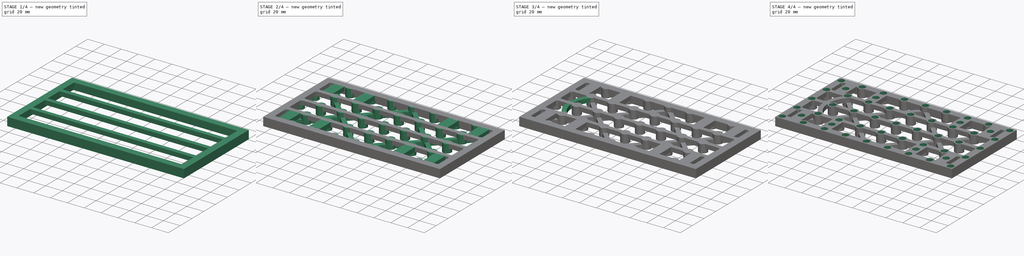
[diagram: build sequence overview — one tinted view per stage of 4, left to right]
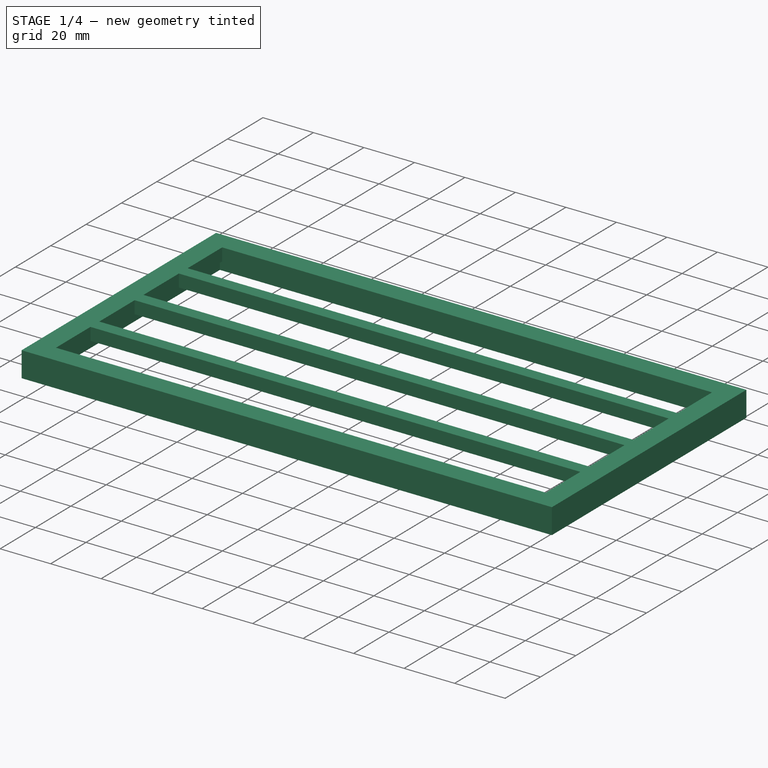
[diagram: stage 1 of 4 — iso view after this stage's code; geometry added in this stage tinted green]
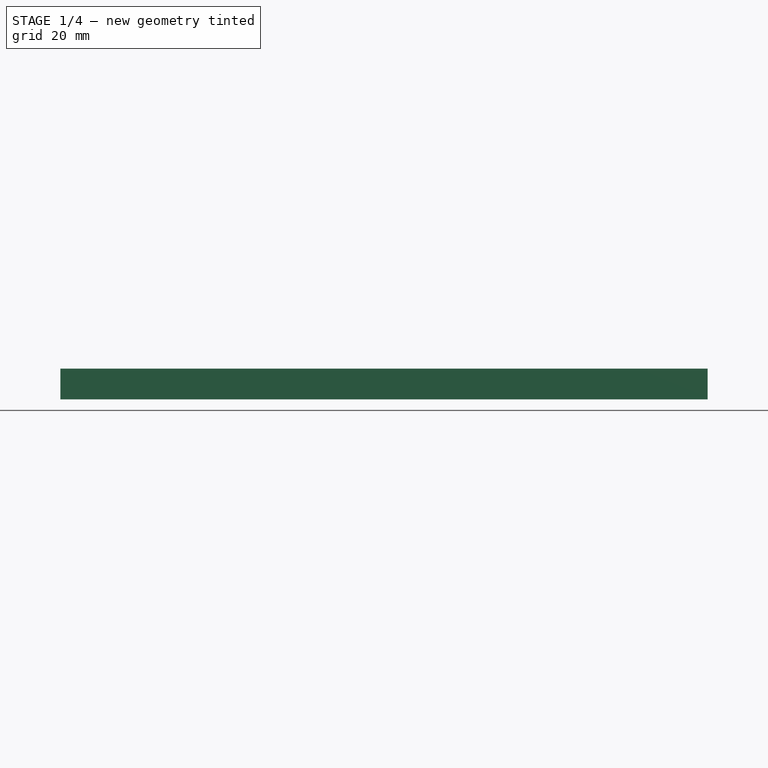
[diagram: stage 1 of 4 — front view after this stage's code; geometry added in this stage tinted green]
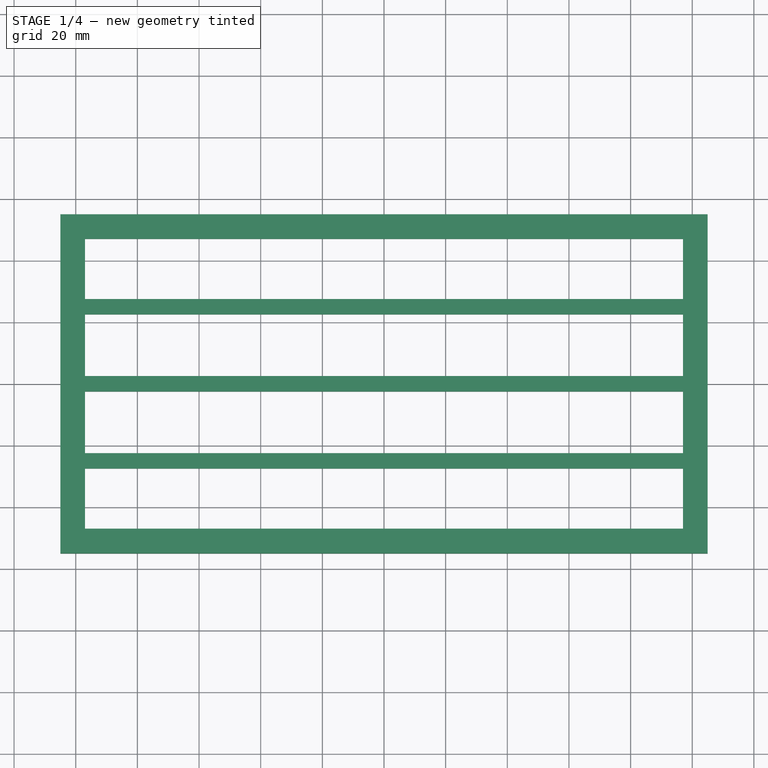
[diagram: stage 1 of 4 — top view after this stage's code; geometry added in this stage tinted green]
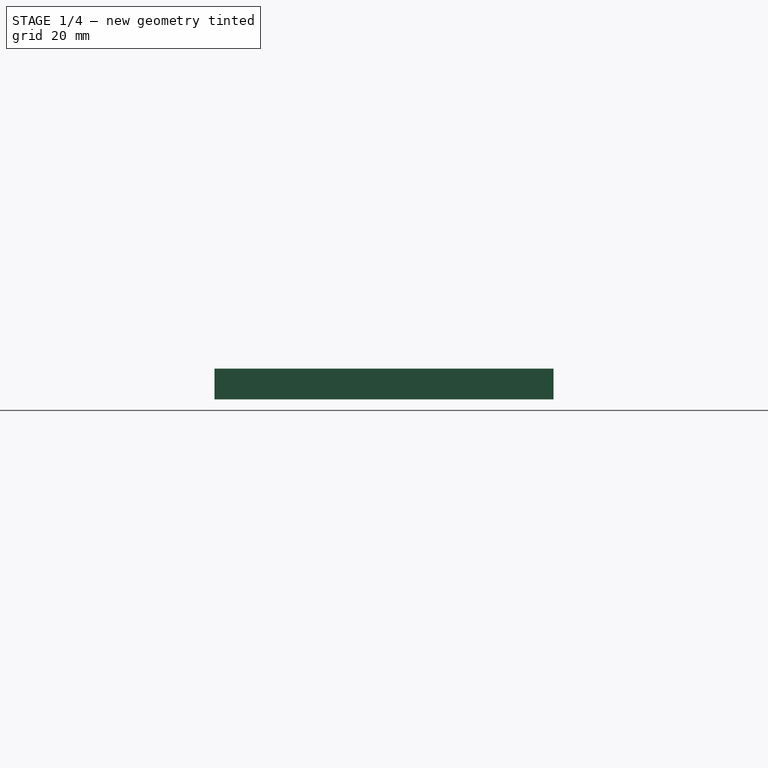
[diagram: stage 1 of 4 — right view after this stage's code; geometry added in this stage tinted green]
FCSTD DOCUMENT  (FreeCAD 1.0R38641 +678 (Git))
Label: frame-v2
License: All rights reserved
LicenseURL: https://en.wikipedia.org/wiki/All_rights_reserved
objects: Sketcher::SketchObject×11, PartDesign::Pad×8, PartDesign::Pocket×3, PartDesign::Body×1
note: 56 computed .brp shape members not serialized (recipe doc carries the construction recipe); baked Part::Feature solids carry a one-line shape summary decoded from their .brp

FEATURE [Sketcher::SketchObject] Sketch182
  ArcFitTolerance = 0
  AttachmentSupport = -> [XY_Plane023]
  FullyConstrained = true
  MakeInternals = false
  MapMode = 5
  sketch-geometry (8):
    g0: LineSegment StartX=-105 StartY=55 StartZ=0 EndX=105 EndY=55 EndZ=0
    g1: LineSegment StartX=105 StartY=55 StartZ=0 EndX=105 EndY=-55 EndZ=0
    g2: LineSegment StartX=105 StartY=-55 StartZ=0 EndX=-105 EndY=-55 EndZ=0
    g3: LineSegment StartX=-105 StartY=-55 StartZ=0 EndX=-105 EndY=55 EndZ=0
    g4: LineSegment StartX=-97 StartY=47 StartZ=0 EndX=97 EndY=47 EndZ=0
    g5: LineSegment StartX=97 StartY=47 StartZ=0 EndX=97 EndY=-47 EndZ=0
    g6: LineSegment StartX=97 StartY=-47 StartZ=0 EndX=-97 EndY=-47 EndZ=0
    g7: LineSegment StartX=-97 StartY=-47 StartZ=0 EndX=-97 EndY=47 EndZ=0
  constraints (24):
    c: Coincident(g0,g1)
    c: Coincident(g1,g2)
    c: Coincident(g2,g3)
    c: Coincident(g3,g0)
    c: Horizontal(g0)
    c: Horizontal(g2)
    c: Vertical(g1)
    c: Vertical(g3)
    c: DistanceY(g3,g3) = 110
    c: Distance(g-1,g0) = 55
    c: DistanceX(g2,g2) = 210
    c: Distance(g-1,g1) = 105
    c: Coincident(g4,g5)
    c: Coincident(g5,g6)
    c: Coincident(g6,g7)
    c: Coincident(g7,g4)
    c: Horizontal(g4)
    c: Horizontal(g6)
    c: Vertical(g5)
    c: Vertical(g7)
    c: Distance(g0,g7) = 8
    c: Distance(g0,g4) = 8
    c: Distance(g1,g6) = 8
    c: Distance(g1,g5) = 8
FEATURE [PartDesign::Pad] Pad081  label="Outer main frame"
  Direction = (0,0,1)
  Length = 5
  Length2 = 10
  Profile = -> Sketch182
  ReferenceAxis = -> Sketch182 [N_Axis]
  Suppressed = false
  Type = 0
FEATURE [Sketcher::SketchObject] Sketch183
  ArcFitTolerance = 0
  AttachmentSupport = -> [XY_Plane023]
  FullyConstrained = true
  MakeInternals = false
  MapMode = 5
  sketch-geometry (26):
    g0: LineSegment [constr] StartX=-100 StartY=50 StartZ=0 EndX=100 EndY=50 EndZ=0
    g1: LineSegment [constr] StartX=100 StartY=50 StartZ=0 EndX=100 EndY=-50 EndZ=0
    g2: LineSegment [constr] StartX=100 StartY=-50 StartZ=0 EndX=-100 EndY=-50 EndZ=0
    g3: LineSegment [constr] StartX=-100 StartY=-50 StartZ=0 EndX=-100 EndY=50 EndZ=0
    g4: LineSegment [constr] StartX=-100 StartY=-25 StartZ=0 EndX=100 EndY=-25 EndZ=0
    g5: LineSegment [constr] StartX=-100 StartY=25 StartZ=0 EndX=100 EndY=25 EndZ=0
    g6: LineSegment [constr] StartX=-100 StartY=6.6e-15 StartZ=0 EndX=100 EndY=6.6e-15 EndZ=0
    g7: LineSegment [constr] StartX=-75 StartY=-50 StartZ=0 EndX=-75 EndY=50 EndZ=0
    g8: LineSegment [constr] StartX=-50 StartY=50 StartZ=0 EndX=-50 EndY=-50 EndZ=0
    g9: LineSegment [constr] StartX=-25 StartY=50 StartZ=0 EndX=-25 EndY=-50 EndZ=0
    g10: LineSegment [constr] StartX=-3.6e-15 StartY=50 StartZ=0 EndX=-3.6e-15 EndY=-50 EndZ=0
    g11: LineSegment [constr] StartX=25 StartY=50 StartZ=0 EndX=25 EndY=-50 EndZ=0
    g12: LineSegment [constr] StartX=50 StartY=50 StartZ=0 EndX=50 EndY=-50 EndZ=0
    g13: LineSegment [constr] StartX=75 StartY=-50 StartZ=0 EndX=75 EndY=50 EndZ=0
    g14: LineSegment StartX=-100 StartY=27.5 StartZ=0 EndX=100 EndY=27.5 EndZ=0
    g15: LineSegment StartX=-100 StartY=22.5 StartZ=0 EndX=100 EndY=22.5 EndZ=0
    g16: LineSegment StartX=-100 StartY=2.5 StartZ=0 EndX=100 EndY=2.5 EndZ=0
    g17: LineSegment StartX=-100 StartY=-2.5 StartZ=0 EndX=100 EndY=-2.5 EndZ=0
    g18: LineSegment StartX=-100 StartY=-22.5 StartZ=0 EndX=100 EndY=-22.5 EndZ=0
    g19: LineSegment StartX=-100 StartY=-27.5 StartZ=0 EndX=100 EndY=-27.5 EndZ=0
    g20: LineSegment StartX=-100 StartY=27.5 StartZ=0 EndX=-100 EndY=22.5 EndZ=0
    g21: LineSegment StartX=-100 StartY=2.5 StartZ=0 EndX=-100 EndY=-2.5 EndZ=0
    g22: LineSegment StartX=-100 StartY=-22.5 StartZ=0 EndX=-100 EndY=-27.5 EndZ=0
    g23: LineSegment StartX=100 StartY=27.5 StartZ=0 EndX=100 EndY=22.5 EndZ=0
    g24: LineSegment StartX=100 StartY=2.5 StartZ=0 EndX=100 EndY=-2.5 EndZ=0
    g25: LineSegment StartX=100 StartY=-22.5 StartZ=0 EndX=100 EndY=-27.5 EndZ=0
  constraints (88):
    c: Coincident(g0,g1)
    c: Coincident(g1,g2)
    c: Coincident(g2,g3)
    c: Coincident(g3,g0)
    c: Horizontal(g0)
    c: Horizontal(g2)
    c: Vertical(g1)
    c: Vertical(g3)
    c: DistanceY(g3,g3) = 100
    c: DistanceX(g2,g2) = 200
    c: Distance(g-1,g0) = 50
    c: Distance(g-1,g3) = 100
    c: Horizontal(g4)
    c: Horizontal(g5)
    c: Horizontal(g6)
    c: Distance(g0,g5) = 25
    c: Distance(g5,g6) = 25
    c: Distance(g6,g4) = 25
    c: PointOnObject(g5,g1)
    c: PointOnObject(g6,g1)
    c: PointOnObject(g4,g1)
    c: PointOnObject(g5,g3)
    c: PointOnObject(g6,g3)
    c: PointOnObject(g4,g3)
    c: Vertical(g7)
    c: Vertical(g8)
    c: Vertical(g9)
    c: Vertical(g10)
    c: Vertical(g11)
    c: Vertical(g12)
    c: Distance(g0,g7) = 25
    c: Distance(g7,g8) = 25
    c: Distance(g8,g9) = 25
    c: Distance(g9,g10) = 25
    c: Distance(g10,g11) = 25
    c: Distance(g11,g12) = 25
    c: Vertical(g13)
    c: Distance(g12,g13) = 25
    c: PointOnObject(g7,g2)
    c: PointOnObject(g8,g2)
    c: PointOnObject(g9,g2)
    c: PointOnObject(g10,g2)
    c: PointOnObject(g11,g2)
    c: PointOnObject(g12,g2)
    c: PointOnObject(g13,g2)
    c: PointOnObject(g7,g0)
    c: PointOnObject(g8,g0)
    c: PointOnObject(g9,g0)
    c: PointOnObject(g10,g0)
    c: PointOnObject(g11,g0)
    c: PointOnObject(g12,g0)
    c: PointOnObject(g13,g0)
    c: Horizontal(g14)
    c: Horizontal(g15)
    c: Horizontal(g16)
    c: Horizontal(g17)
    c: Horizontal(g18)
    c: Horizontal(g19)
    c: PointOnObject(g14,g3)
    c: PointOnObject(g15,g3)
    c: PointOnObject(g14,g1)
    c: PointOnObject(g15,g1)
    c: PointOnObject(g16,g3)
    c: PointOnObject(g17,g3)
    c: PointOnObject(g18,g3)
    c: PointOnObject(g19,g3)
    c: PointOnObject(g16,g1)
    c: PointOnObject(g17,g1)
    c: PointOnObject(g18,g1)
    c: PointOnObject(g19,g1)
    c: Coincident(g20,g14)
    c: Coincident(g20,g15)
    c: Coincident(g21,g16)
    c: Coincident(g21,g17)
    c: Coincident(g22,g18)
    c: Coincident(g22,g19)
    c: Coincident(g23,g14)
    c: Coincident(g23,g15)
    c: Coincident(g24,g16)
    c: Coincident(g24,g17)
    c: Coincident(g25,g18)
    c: Coincident(g25,g19)
    c: Distance(g4,g19) = 2.5
    c: Distance(g5,g14) = 2.5
    c: Distance(g16,g15) = 20
    c: Distance(g18,g17) = 20
    c: Distance(g4,g18) = 2.5
    c: Distance(g6,g16) = 2.5
FEATURE [PartDesign::Pad] Pad082  label="Main grid"
  BaseFeature = -> Pad081
  Direction = (0,0,1)
  Length = 5
  Length2 = 10
  Profile = -> Sketch183
  ReferenceAxis = -> Sketch183 [N_Axis]
  Suppressed = false
  Type = 0
FEATURE [Sketcher::SketchObject] Sketch184
  ArcFitTolerance = 0
  AttachmentSupport = -> [XY_Plane023]
  FullyConstrained = true
  MakeInternals = false
  MapMode = 5
  sketch-geometry (22):
    g0: LineSegment [constr] StartX=-100 StartY=50 StartZ=0 EndX=100 EndY=50 EndZ=0
    g1: LineSegment [constr] StartX=100 StartY=50 StartZ=0 EndX=100 EndY=-50 EndZ=0
    g2: LineSegment [constr] StartX=100 StartY=-50 StartZ=0 EndX=-100 EndY=-50 EndZ=0
    g3: LineSegment [constr] StartX=-100 StartY=-50 StartZ=0 EndX=-100 EndY=50 EndZ=0
    g4: LineSegment [constr] StartX=-100 StartY=-25 StartZ=0 EndX=100 EndY=-25 EndZ=0
    g5: LineSegment [constr] StartX=-100 StartY=25 StartZ=0 EndX=100 EndY=25 EndZ=0
    g6: LineSegment [constr] StartX=-100 StartY=9e-16 StartZ=0 EndX=100 EndY=9e-16 EndZ=0
    g7: LineSegment [constr] StartX=-75 StartY=-50 StartZ=0 EndX=-75 EndY=50 EndZ=0
    g8: LineSegment [constr] StartX=-50 StartY=50 StartZ=0 EndX=-50 EndY=-50 EndZ=0
    g9: LineSegment [constr] StartX=-25 StartY=50 StartZ=0 EndX=-25 EndY=-50 EndZ=0
    g10: LineSegment [constr] StartX=-1.4e-15 StartY=50 StartZ=0 EndX=-1.4e-15 EndY=-50 EndZ=0
    g11: LineSegment [constr] StartX=25 StartY=50 StartZ=0 EndX=25 EndY=-50 EndZ=0
    g12: LineSegment [constr] StartX=50 StartY=50 StartZ=0 EndX=50 EndY=-50 EndZ=0
    g13: LineSegment [constr] StartX=75 StartY=-50 StartZ=0 EndX=75 EndY=50 EndZ=0
    g14: LineSegment StartX=-105 StartY=55 StartZ=0 EndX=105 EndY=55 EndZ=0
    g15: LineSegment StartX=105 StartY=55 StartZ=0 EndX=105 EndY=-55 EndZ=0
    g16: LineSegment StartX=105 StartY=-55 StartZ=0 EndX=-105 EndY=-55 EndZ=0
    g17: LineSegment StartX=-105 StartY=-55 StartZ=0 EndX=-105 EndY=55 EndZ=0
    g18: LineSegment StartX=-100 StartY=50 StartZ=0 EndX=100 EndY=50 EndZ=0
    g19: LineSegment StartX=100 StartY=50 StartZ=0 EndX=100 EndY=-50 EndZ=0
    g20: LineSegment StartX=100 StartY=-50 StartZ=0 EndX=-100 EndY=-50 EndZ=0
    g21: LineSegment StartX=-100 StartY=-50 StartZ=0 EndX=-100 EndY=50 EndZ=0
  constraints (74):
    c: Coincident(g0,g1)
    c: Coincident(g1,g2)
    c: Coincident(g2,g3)
    c: Coincident(g3,g0)
    c: Horizontal(g0)
    c: Horizontal(g2)
    c: Vertical(g1)
    c: Vertical(g3)
    c: DistanceY(g3,g3) = 100
    c: DistanceX(g2,g2) = 200
    c: Distance(g-1,g0) = 50
    c: Distance(g-1,g3) = 100
    c: Horizontal(g4)
    c: Horizontal(g5)
    c: Horizontal(g6)
    c: Distance(g0,g5) = 25
    c: Distance(g5,g6) = 25
    c: Distance(g6,g4) = 25
    c: PointOnObject(g5,g1)
    c: PointOnObject(g6,g1)
    c: PointOnObject(g4,g1)
    c: PointOnObject(g5,g3)
    c: PointOnObject(g6,g3)
    c: PointOnObject(g4,g3)
    c: Vertical(g7)
    c: Vertical(g8)
    c: Vertical(g9)
    c: Vertical(g10)
    c: Vertical(g11)
    c: Vertical(g12)
    c: Distance(g0,g7) = 25
    c: Distance(g7,g8) = 25
    c: Distance(g8,g9) = 25
    c: Distance(g9,g10) = 25
    c: Distance(g10,g11) = 25
    c: Distance(g11,g12) = 25
    c: Vertical(g13)
    c: Distance(g12,g13) = 25
    c: PointOnObject(g7,g2)
    c: PointOnObject(g8,g2)
    c: PointOnObject(g9,g2)
    c: PointOnObject(g10,g2)
    c: PointOnObject(g11,g2)
    c: PointOnObject(g12,g2)
    c: PointOnObject(g13,g2)
    c: PointOnObject(g7,g0)
    c: PointOnObject(g8,g0)
    c: PointOnObject(g9,g0)
    c: PointOnObject(g10,g0)
    c: PointOnObject(g11,g0)
    c: PointOnObject(g12,g0)
    c: PointOnObject(g13,g0)
    c: Coincident(g14,g15)
    c: Coincident(g15,g16)
    c: Coincident(g16,g17)
    c: Coincident(g17,g14)
    c: Horizontal(g14)
    c: Horizontal(g16)
    c: Vertical(g15)
    c: Vertical(g17)
    c: Distance(g0,g17) = 5
    c: Distance(g0,g14) = 5
    c: Distance(g0,g15) = 5
    c: Distance(g1,g16) = 5
    c: Coincident(g18,g19)
    c: Coincident(g19,g20)
    c: Coincident(g20,g21)
    c: Coincident(g21,g18)
    c: Horizontal(g18)
    c: Horizontal(g20)
    c: Vertical(g21)
    c: Coincident(g19,g1)
    c: Coincident(g18,g0)
    c: Vertical(g19)
FEATURE [PartDesign::Pad] Pad083  label="Outer second frame"
  BaseFeature = -> Pad082
  Direction = (0,0,1)
  Length = 5
  Length2 = 10
  Profile = -> Sketch184
  ReferenceAxis = -> Sketch184 [N_Axis]
  Reversed = true
  Suppressed = false
  Type = 0
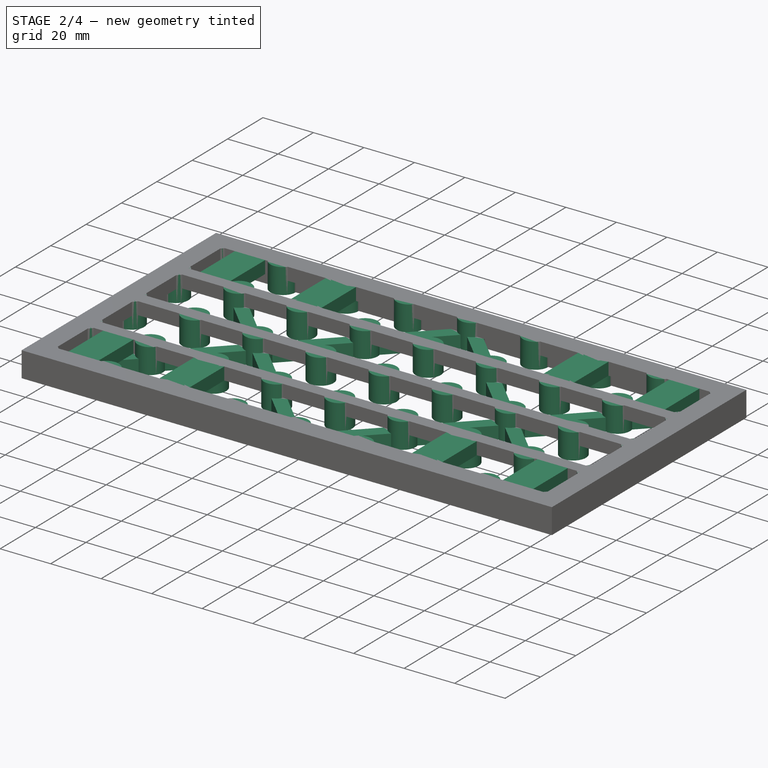
[diagram: stage 2 of 4 — iso view after this stage's code; geometry added in this stage tinted green]
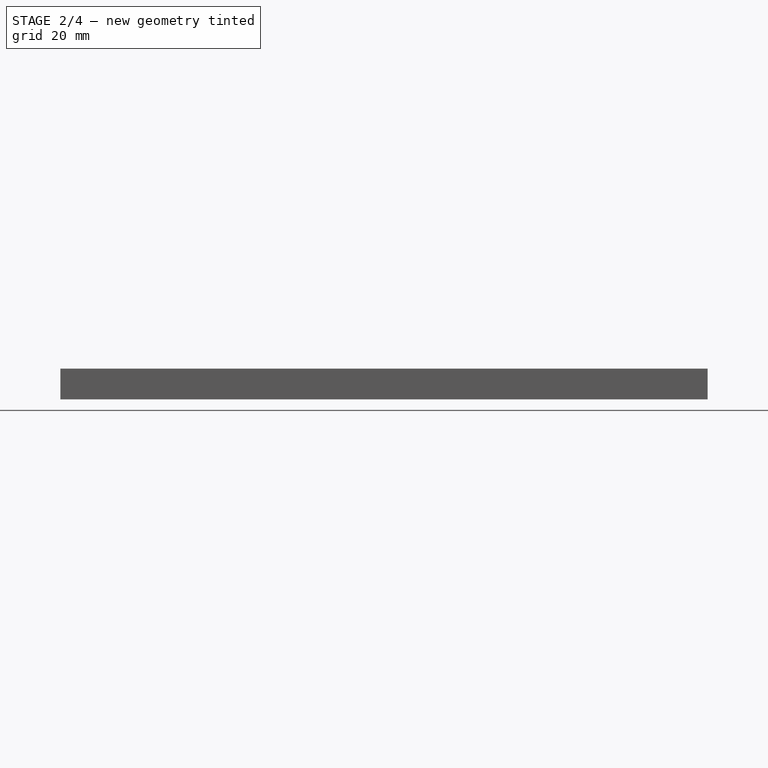
[diagram: stage 2 of 4 — front view after this stage's code; geometry added in this stage tinted green]
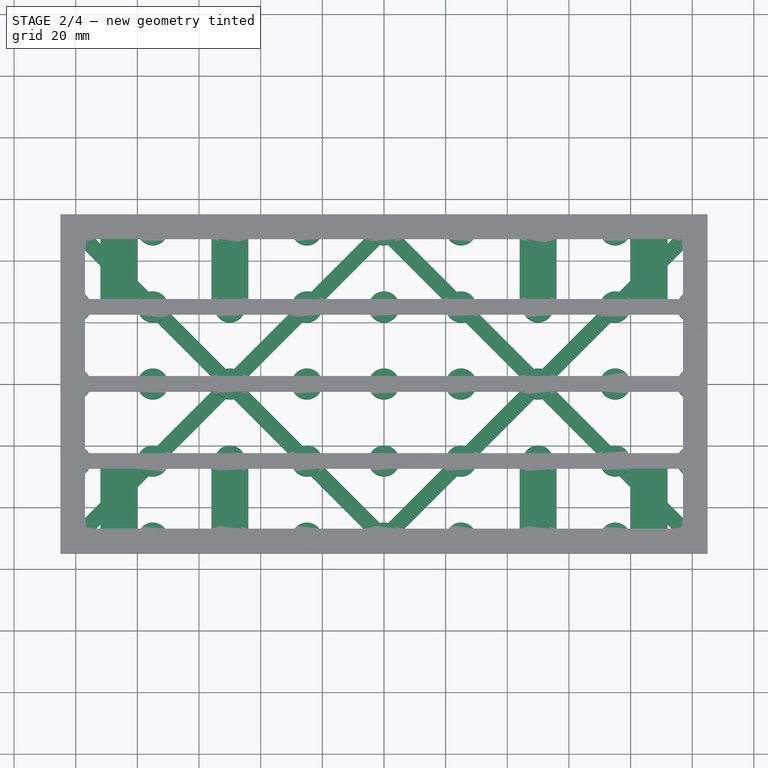
[diagram: stage 2 of 4 — top view after this stage's code; geometry added in this stage tinted green]
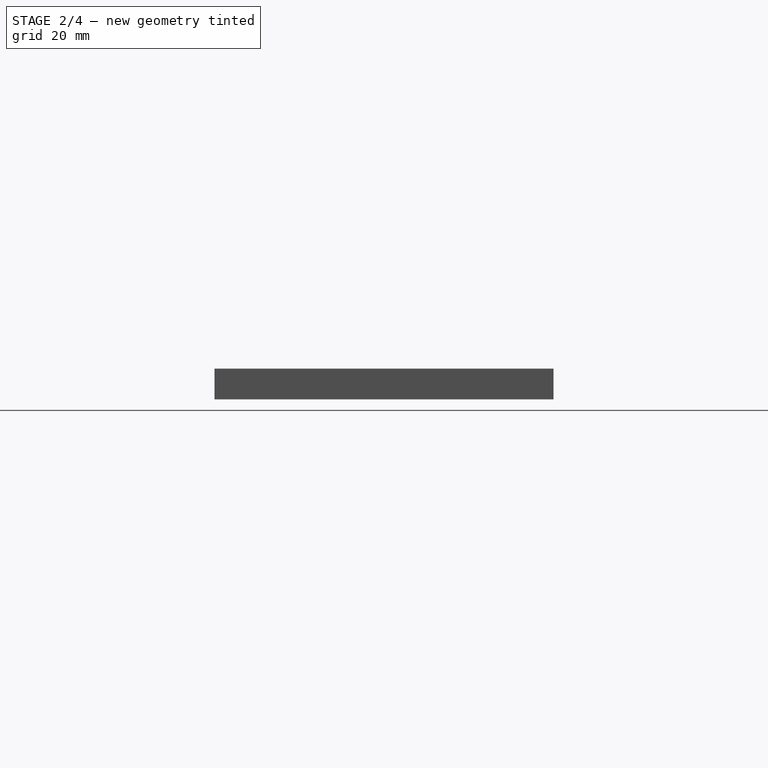
[diagram: stage 2 of 4 — right view after this stage's code; geometry added in this stage tinted green]
FEATURE [Sketcher::SketchObject] Sketch185
  ArcFitTolerance = 0
  AttachmentSupport = -> [XY_Plane023]
  FullyConstrained = true
  MakeInternals = false
  MapMode = 5
  sketch-geometry (44):
    g0: LineSegment [constr] StartX=-100 StartY=50 StartZ=0 EndX=100 EndY=50 EndZ=0
    g1: LineSegment [constr] StartX=100 StartY=50 StartZ=0 EndX=100 EndY=-50 EndZ=0
    g2: LineSegment [constr] StartX=100 StartY=-50 StartZ=0 EndX=-100 EndY=-50 EndZ=0
    g3: LineSegment [constr] StartX=-100 StartY=-50 StartZ=0 EndX=-100 EndY=50 EndZ=0
    g4: LineSegment [constr] StartX=-100 StartY=-25 StartZ=0 EndX=100 EndY=-25 EndZ=0
    g5: LineSegment [constr] StartX=-100 StartY=25 StartZ=0 EndX=100 EndY=25 EndZ=0
    g6: LineSegment [constr] StartX=-100 StartY=1.8e-15 StartZ=0 EndX=100 EndY=1.8e-15 EndZ=0
    g7: LineSegment [constr] StartX=-75 StartY=-50 StartZ=0 EndX=-75 EndY=50 EndZ=0
    g8: LineSegment [constr] StartX=-50 StartY=50 StartZ=0 EndX=-50 EndY=-50 EndZ=0
    g9: LineSegment [constr] StartX=-25 StartY=50 StartZ=0 EndX=-25 EndY=-50 EndZ=0
    g10: LineSegment [constr] StartX=0 StartY=50 StartZ=0 EndX=0 EndY=-50 EndZ=0
    g11: LineSegment [constr] StartX=25 StartY=50 StartZ=0 EndX=25 EndY=-50 EndZ=0
    g12: LineSegment [constr] StartX=50 StartY=50 StartZ=0 EndX=50 EndY=-50 EndZ=0
    g13: LineSegment [constr] StartX=75 StartY=-50 StartZ=0 EndX=75 EndY=50 EndZ=0
    g14: LineSegment [constr] StartX=-100 StartY=-50 StartZ=0 EndX=0 EndY=50 EndZ=0
    g15: LineSegment [constr] StartX=0 StartY=50 StartZ=0 EndX=100 EndY=-50 EndZ=0
    g16: LineSegment [constr] StartX=-100 StartY=50 StartZ=0 EndX=0 EndY=-50 EndZ=0
    g17: LineSegment [constr] StartX=0 StartY=-50 StartZ=0 EndX=100 EndY=50 EndZ=0
    g18: LineSegment StartX=-100 StartY=46.4645 StartZ=0 EndX=-53.5355 EndY=-7.1e-15 EndZ=0
    g19: LineSegment StartX=-96.4645 StartY=50 StartZ=0 EndX=-50 EndY=3.53553 EndZ=0
    g20: LineSegment StartX=-3.53553 StartY=-50 StartZ=0 EndX=3.53553 EndY=-50 EndZ=0
    g21: LineSegment StartX=-96.4645 StartY=-50 StartZ=0 EndX=-50 EndY=-3.53553 EndZ=0
    g22: LineSegment StartX=-100 StartY=-46.4645 StartZ=0 EndX=-53.5355 EndY=0 EndZ=0
    g23: LineSegment StartX=3.53553 StartY=50 StartZ=0 EndX=50 EndY=3.53553 EndZ=0
    g24: LineSegment StartX=3.53553 StartY=-50 StartZ=0 EndX=50 EndY=-3.53553 EndZ=0
    g25: LineSegment StartX=-3.53553 StartY=50 StartZ=0 EndX=3.53553 EndY=50 EndZ=0
    g26: LineSegment StartX=-50 StartY=3.53553 StartZ=0 EndX=-3.53553 EndY=50 EndZ=0
    g27: LineSegment StartX=-50 StartY=-3.53553 StartZ=0 EndX=-3.53553 EndY=-50 EndZ=0
    g28: LineSegment StartX=4.7e-15 StartY=46.4645 StartZ=0 EndX=46.4645 EndY=0 EndZ=0
    g29: LineSegment StartX=0 StartY=-46.4645 StartZ=0 EndX=46.4645 EndY=0 EndZ=0
    g30: LineSegment StartX=53.5355 StartY=1.8e-15 StartZ=0 EndX=100 EndY=-46.4645 EndZ=0
    g31: LineSegment StartX=50 StartY=-3.53553 StartZ=0 EndX=96.4645 EndY=-50 EndZ=0
    g32: LineSegment StartX=53.5355 StartY=1.8e-15 StartZ=0 EndX=100 EndY=46.4645 EndZ=0
    g33: LineSegment StartX=50 StartY=3.53553 StartZ=0 EndX=96.4645 EndY=50 EndZ=0
    g34: LineSegment StartX=-46.4645 StartY=1.8e-15 StartZ=0 EndX=0 EndY=-46.4645 EndZ=0
    g35: LineSegment StartX=-46.4645 StartY=1.8e-15 StartZ=0 EndX=0 EndY=46.4645 EndZ=0
    g36: LineSegment StartX=-96.4645 StartY=-50 StartZ=0 EndX=-100 EndY=-50 EndZ=0
    g37: LineSegment StartX=-100 StartY=-46.4645 StartZ=0 EndX=-100 EndY=-50 EndZ=0
    g38: LineSegment StartX=-100 StartY=50 StartZ=0 EndX=-96.4645 EndY=50 EndZ=0
    g39: LineSegment StartX=-100 StartY=50 StartZ=0 EndX=-100 EndY=46.4645 EndZ=0
    g40: LineSegment StartX=96.4645 StartY=-50 StartZ=0 EndX=100 EndY=-50 EndZ=0
    g41: LineSegment StartX=100 StartY=-46.4645 StartZ=0 EndX=100 EndY=-50 EndZ=0
    g42: LineSegment StartX=96.4645 StartY=50 StartZ=0 EndX=100 EndY=50 EndZ=0
    g43: LineSegment StartX=100 StartY=46.4645 StartZ=0 EndX=100 EndY=50 EndZ=0
  constraints (143):
    c: Coincident(g0,g1)
    c: Coincident(g1,g2)
    c: Coincident(g2,g3)
    c: Coincident(g3,g0)
    c: Horizontal(g0)
    c: Horizontal(g2)
    c: Vertical(g1)
    c: Vertical(g3)
    c: DistanceY(g3,g3) = 100
    c: DistanceX(g2,g2) = 200
    c: Distance(g-1,g0) = 50
    c: Distance(g-1,g3) = 100
    c: Horizontal(g4)
    c: Horizontal(g5)
    c: Horizontal(g6)
    c: Distance(g0,g5) = 25
    c: Distance(g5,g6) = 25
    c: Distance(g6,g4) = 25
    c: PointOnObject(g5,g1)
    c: PointOnObject(g6,g1)
    c: PointOnObject(g4,g1)
    c: PointOnObject(g5,g3)
    c: PointOnObject(g6,g3)
    c: PointOnObject(g4,g3)
    c: Vertical(g7)
    c: Vertical(g8)
    c: Vertical(g9)
    c: Vertical(g10)
    c: Vertical(g11)
    c: Vertical(g12)
    c: Distance(g0,g7) = 25
    c: Distance(g7,g8) = 25
    c: Distance(g8,g9) = 25
    c: Distance(g9,g10) = 25
    c: Distance(g10,g11) = 25
    c: Distance(g11,g12) = 25
    c: Vertical(g13)
    c: Distance(g12,g13) = 25
    c: PointOnObject(g7,g2)
    c: PointOnObject(g8,g2)
    c: PointOnObject(g9,g2)
    c: PointOnObject(g10,g2)
    c: PointOnObject(g11,g2)
    c: PointOnObject(g12,g2)
    c: PointOnObject(g13,g2)
    c: PointOnObject(g7,g0)
    c: PointOnObject(g8,g0)
    c: PointOnObject(g9,g0)
    c: PointOnObject(g10,g0)
    c: PointOnObject(g11,g0)
    c: PointOnObject(g12,g0)
    c: PointOnObject(g13,g0)
    c: Coincident(g14,g2)
    c: Coincident(g14,g10)
    c: Coincident(g15,g10)
    c: Coincident(g15,g1)
    c: Coincident(g16,g0)
    c: Coincident(g16,g10)
    c: Coincident(g17,g10)
    c: Coincident(g17,g0)
    c: Parallel(g19,g16)
    c: Parallel(g16,g18)
    c: PointOnObject(g27,g2)
    c: PointOnObject(g20,g2)
    c: PointOnObject(g18,g3)
    c: PointOnObject(g19,g0)
    c: Distance(g0,g19) = 2.5
    c: Distance(g19,g18) = 5
    c: Coincident(g20,g27)
    c: Parallel(g17,g24)
    c: PointOnObject(g32,g1)
    c: PointOnObject(g33,g0)
    c: Parallel(g22,g14)
    c: Parallel(g14,g21)
    c: PointOnObject(g22,g3)
    c: PointOnObject(g21,g2)
    c: Distance(g21,g22) = 5
    c: Distance(g2,g21) = 2.5
    c: PointOnObject(g26,g0)
    c: PointOnObject(g25,g0)
    c: Coincident(g25,g26)
    c: Parallel(g23,g15)
    c: Coincident(g23,g25)
    c: PointOnObject(g30,g1)
    c: PointOnObject(g31,g2)
    c: PointOnObject(g22,g6)
    c: PointOnObject(g26,g8)
    c: PointOnObject(g18,g22)
    c: PointOnObject(g27,g8)
    c: PointOnObject(g28,g21)
    c: PointOnObject(g35,g10)
    c: PointOnObject(g34,g10)
    c: PointOnObject(g23,g12)
    c: PointOnObject(g30,g6)
    c: PointOnObject(g28,g6)
    c: PointOnObject(g31,g12)
    c: PointOnObject(g24,g12)
    c: PointOnObject(g32,g6)
    c: PointOnObject(g29,g28)
    c: PointOnObject(g33,g23)
    c: PointOnObject(g19,g26)
    c: PointOnObject(g34,g6)
    c: PointOnObject(g21,g27)
    c: PointOnObject(g35,g6)
    c: Distance(g1,g30) = 2.5
    c: Distance(g30,g31) = 5
    c: Parallel(g30,g15)
    c: Parallel(g15,g31)
    c: Parallel(g15,g28)
    c: Parallel(g33,g17)
    c: Parallel(g17,g32)
    c: Distance(g0,g33) = 2.5
    c: Distance(g33,g32) = 5
    c: Parallel(g29,g17)
    c: Parallel(g34,g16)
    c: Parallel(g16,g27)
    c: Parallel(g35,g14)
    c: Parallel(g14,g26)
    c: Distance(g10,g24) = 2.5
    c: Distance(g20,g29) = 5
    c: Distance(g10,g27) = 2.5
    c: Distance(g10,g26) = 2.5
    c: Distance(g25,g35) = 5
    c: Distance(g10,g23) = 2.5
    c: Distance(g23,g28) = 5
    c: Coincident(g29,g34)
    c: Coincident(g24,g20)
    c: Coincident(g36,g21)
    c: Coincident(g36,g2)
    c: Coincident(g37,g22)
    c: Coincident(g37,g36)
    c: Coincident(g38,g0)
    c: Coincident(g38,g19)
    c: Coincident(g39,g38)
    c: Coincident(g39,g18)
    c: Coincident(g40,g1)
    c: Coincident(g41,g40)
    c: Coincident(g40,g31)
    c: Coincident(g41,g30)
    c: Coincident(g42,g33)
    c: Coincident(g42,g0)
    c: Coincident(g43,g32)
    c: Coincident(g43,g42)
FEATURE [PartDesign::Pad] Pad084
  BaseFeature = -> Pad083
  Direction = (0,0,1)
  Length = 5
  Length2 = 10
  Profile = -> Sketch185
  ReferenceAxis = -> Sketch185 [N_Axis]
  Reversed = true
  Suppressed = false
  Type = 0
FEATURE [Sketcher::SketchObject] Sketch186
  ArcFitTolerance = 0
  AttachmentSupport = -> [XY_Plane023]
  FullyConstrained = true
  MakeInternals = false
  MapMode = 5
  sketch-geometry (59):
    g0: LineSegment [constr] StartX=-100 StartY=50 StartZ=0 EndX=100 EndY=50 EndZ=0
    g1: LineSegment [constr] StartX=100 StartY=50 StartZ=0 EndX=100 EndY=-50 EndZ=0
    g2: LineSegment [constr] StartX=100 StartY=-50 StartZ=0 EndX=-100 EndY=-50 EndZ=0
    g3: LineSegment [constr] StartX=-100 StartY=-50 StartZ=0 EndX=-100 EndY=50 EndZ=0
    g4: LineSegment [constr] StartX=-100 StartY=-25 StartZ=0 EndX=100 EndY=-25 EndZ=0
    g5: LineSegment [constr] StartX=-100 StartY=25 StartZ=0 EndX=100 EndY=25 EndZ=0
    g6: LineSegment [constr] StartX=-100 StartY=9.7e-15 StartZ=0 EndX=100 EndY=9.7e-15 EndZ=0
    g7: LineSegment [constr] StartX=-75 StartY=-50 StartZ=0 EndX=-75 EndY=50 EndZ=0
    g8: LineSegment [constr] StartX=-50 StartY=50 StartZ=0 EndX=-50 EndY=-50 EndZ=0
    g9: LineSegment [constr] StartX=-25 StartY=50 StartZ=0 EndX=-25 EndY=-50 EndZ=0
    g10: LineSegment [constr] StartX=1.4e-15 StartY=50 StartZ=0 EndX=1.4e-15 EndY=-50 EndZ=0
    g11: LineSegment [constr] StartX=25 StartY=50 StartZ=0 EndX=25 EndY=-50 EndZ=0
    g12: LineSegment [constr] StartX=50 StartY=50 StartZ=0 EndX=50 EndY=-50 EndZ=0
    g13: LineSegment [constr] StartX=75 StartY=-50 StartZ=0 EndX=75 EndY=50 EndZ=0
    g14: Circle CenterX=-100 CenterY=50 CenterZ=0 NormalX=0 NormalY=0 NormalZ=1 AngleXU=0 Radius=5
    g15: Circle CenterX=-75 CenterY=50 CenterZ=0 NormalX=0 NormalY=0 NormalZ=1 AngleXU=0 Radius=5
    g16: Circle CenterX=-50 CenterY=50 CenterZ=0 NormalX=0 NormalY=0 NormalZ=1 AngleXU=0 Radius=5
    g17: Circle CenterX=-25 CenterY=50 CenterZ=0 NormalX=0 NormalY=0 NormalZ=1 AngleXU=0 Radius=5
    g18: Circle CenterX=1.4e-15 CenterY=50 CenterZ=0 NormalX=0 NormalY=0 NormalZ=1 AngleXU=0 Radius=5
    g19: Circle CenterX=25 CenterY=50 CenterZ=0 NormalX=0 NormalY=0 NormalZ=1 AngleXU=0 Radius=5
    g20: Circle CenterX=50 CenterY=50 CenterZ=0 NormalX=0 NormalY=0 NormalZ=1 AngleXU=0 Radius=5
    g21: Circle CenterX=75 CenterY=50 CenterZ=0 NormalX=0 NormalY=0 NormalZ=1 AngleXU=0 Radius=5
    g22: Circle CenterX=100 CenterY=50 CenterZ=0 NormalX=0 NormalY=0 NormalZ=1 AngleXU=0 Radius=5
    g23: Circle CenterX=-100 CenterY=25 CenterZ=0 NormalX=0 NormalY=0 NormalZ=1 AngleXU=0 Radius=5
    g24: Circle CenterX=-75 CenterY=25 CenterZ=0 NormalX=0 NormalY=0 NormalZ=1 AngleXU=0 Radius=5
    g25: Circle CenterX=-50 CenterY=25 CenterZ=0 NormalX=0 NormalY=0 NormalZ=1 AngleXU=0 Radius=5
    g26: Circle CenterX=-25 CenterY=25 CenterZ=0 NormalX=0 NormalY=0 NormalZ=1 AngleXU=0 Radius=5
    g27: Circle CenterX=1.4e-15 CenterY=25 CenterZ=0 NormalX=0 NormalY=0 NormalZ=1 AngleXU=0 Radius=5
    g28: Circle CenterX=25 CenterY=25 CenterZ=0 NormalX=0 NormalY=0 NormalZ=1 AngleXU=0 Radius=5
    g29: Circle CenterX=50 CenterY=25 CenterZ=0 NormalX=0 NormalY=0 NormalZ=1 AngleXU=0 Radius=5
    g30: Circle CenterX=75 CenterY=25 CenterZ=0 NormalX=0 NormalY=0 NormalZ=1 AngleXU=0 Radius=5
    g31: Circle CenterX=100 CenterY=9.7e-15 CenterZ=0 NormalX=0 NormalY=0 NormalZ=1 AngleXU=0 Radius=5
    g32: Circle CenterX=100 CenterY=25 CenterZ=0 NormalX=0 NormalY=0 NormalZ=1 AngleXU=0 Radius=5
    g33: Circle CenterX=100 CenterY=-25 CenterZ=0 NormalX=0 NormalY=0 NormalZ=1 AngleXU=0 Radius=5
    g34: Circle CenterX=100 CenterY=-50 CenterZ=0 NormalX=0 NormalY=0 NormalZ=1 AngleXU=0 Radius=5
    g35: Circle CenterX=75 CenterY=-50 CenterZ=0 NormalX=0 NormalY=0 NormalZ=1 AngleXU=0 Radius=5
    g36: Circle CenterX=50 CenterY=-50 CenterZ=0 NormalX=0 NormalY=0 NormalZ=1 AngleXU=0 Radius=5
    g37: Circle CenterX=25 CenterY=-50 CenterZ=0 NormalX=0 NormalY=0 NormalZ=1 AngleXU=0 Radius=5
    g38: Circle CenterX=1.4e-15 CenterY=-50 CenterZ=0 NormalX=0 NormalY=0 NormalZ=1 AngleXU=0 Radius=5
    g39: Circle CenterX=-25 CenterY=-50 CenterZ=0 NormalX=0 NormalY=0 NormalZ=1 AngleXU=0 Radius=5
    g40: Circle CenterX=-50 CenterY=-50 CenterZ=0 NormalX=0 NormalY=0 NormalZ=1 AngleXU=0 Radius=5
    g41: Circle CenterX=-75 CenterY=-50 CenterZ=0 NormalX=0 NormalY=0 NormalZ=1 AngleXU=0 Radius=5
    g42: Circle CenterX=-100 CenterY=-50 CenterZ=0 NormalX=0 NormalY=0 NormalZ=1 AngleXU=0 Radius=5
    g43: Circle CenterX=-100 CenterY=-25 CenterZ=0 NormalX=0 NormalY=0 NormalZ=1 AngleXU=0 Radius=5
    g44: Circle CenterX=-100 CenterY=9.7e-15 CenterZ=0 NormalX=0 NormalY=0 NormalZ=1 AngleXU=0 Radius=5
    g45: Circle CenterX=-75 CenterY=9.6e-15 CenterZ=0 NormalX=0 NormalY=0 NormalZ=1 AngleXU=0 Radius=5
    g46: Circle CenterX=-75 CenterY=-25 CenterZ=0 NormalX=0 NormalY=0 NormalZ=1 AngleXU=0 Radius=5
    g47: Circle CenterX=-50 CenterY=9.7e-15 CenterZ=0 NormalX=0 NormalY=0 NormalZ=1 AngleXU=0 Radius=5
    g48: Circle CenterX=-50 CenterY=-25 CenterZ=0 NormalX=0 NormalY=0 NormalZ=1 AngleXU=0 Radius=5
    g49: Circle CenterX=-25 CenterY=9.7e-15 CenterZ=0 NormalX=0 NormalY=0 NormalZ=1 AngleXU=0 Radius=5
    g50: Circle CenterX=-25 CenterY=-25 CenterZ=0 NormalX=0 NormalY=0 NormalZ=1 AngleXU=0 Radius=5
    g51: Circle CenterX=1.4e-15 CenterY=9.6e-15 CenterZ=0 NormalX=0 NormalY=0 NormalZ=1 AngleXU=0 Radius=5
    g52: Circle CenterX=25 CenterY=-25 CenterZ=0 NormalX=0 NormalY=0 NormalZ=1 AngleXU=0 Radius=5
    g53: Circle CenterX=25 CenterY=9.6e-15 CenterZ=0 NormalX=0 NormalY=0 NormalZ=1 AngleXU=0 Radius=5
    g54: Circle CenterX=50 CenterY=9.7e-15 CenterZ=0 NormalX=0 NormalY=0 NormalZ=1 AngleXU=0 Radius=5
    g55: Circle CenterX=50 CenterY=-25 CenterZ=0 NormalX=0 NormalY=0 NormalZ=1 AngleXU=0 Radius=5
    g56: Circle CenterX=1.4e-15 CenterY=-25 CenterZ=0 NormalX=0 NormalY=0 NormalZ=1 AngleXU=0 Radius=5
    g57: Circle CenterX=75 CenterY=9.7e-15 CenterZ=0 NormalX=0 NormalY=0 NormalZ=1 AngleXU=0 Radius=5
    g58: Circle CenterX=75 CenterY=-25 CenterZ=0 NormalX=0 NormalY=0 NormalZ=1 AngleXU=0 Radius=5
  constraints (163):
    c: Coincident(g0,g1)
    c: Coincident(g1,g2)
    c: Coincident(g2,g3)
    c: Coincident(g3,g0)
    c: Horizontal(g0)
    c: Horizontal(g2)
    c: Vertical(g1)
    c: Vertical(g3)
    c: DistanceY(g3,g3) = 100
    c: DistanceX(g2,g2) = 200
    c: Distance(g-1,g0) = 50
    c: Distance(g-1,g3) = 100
    c: Horizontal(g4)
    c: Horizontal(g5)
    c: Horizontal(g6)
    c: Distance(g0,g5) = 25
    c: Distance(g5,g6) = 25
    c: Distance(g6,g4) = 25
    c: PointOnObject(g5,g1)
    c: PointOnObject(g6,g1)
    c: PointOnObject(g4,g1)
    c: PointOnObject(g5,g3)
    c: PointOnObject(g6,g3)
    c: PointOnObject(g4,g3)
    c: Vertical(g7)
    c: Vertical(g8)
    c: Vertical(g9)
    c: Vertical(g10)
    c: Vertical(g11)
    c: Vertical(g12)
    c: Distance(g0,g7) = 25
    c: Distance(g7,g8) = 25
    c: Distance(g8,g9) = 25
    c: Distance(g9,g10) = 25
    c: Distance(g10,g11) = 25
    c: Distance(g11,g12) = 25
    c: Vertical(g13)
    c: Distance(g12,g13) = 25
    c: PointOnObject(g7,g2)
    c: PointOnObject(g8,g2)
    c: PointOnObject(g9,g2)
    c: PointOnObject(g10,g2)
    c: PointOnObject(g11,g2)
    c: PointOnObject(g12,g2)
    c: PointOnObject(g13,g2)
    c: PointOnObject(g7,g0)
    c: PointOnObject(g8,g0)
    c: PointOnObject(g9,g0)
    c: PointOnObject(g10,g0)
    c: PointOnObject(g11,g0)
    c: PointOnObject(g12,g0)
    c: PointOnObject(g13,g0)
    c: Coincident(g14,g0)
    c: Coincident(g15,g7)
    c: Coincident(g16,g8)
    c: Coincident(g17,g9)
    c: Coincident(g18,g10)
    c: Coincident(g19,g11)
    c: Coincident(g20,g12)
    c: Coincident(g21,g13)
    c: Coincident(g22,g0)
    c: Coincident(g23,g5)
    c: PointOnObject(g24,g7)
    c: PointOnObject(g25,g8)
    c: PointOnObject(g26,g9)
    c: PointOnObject(g27,g10)
    c: PointOnObject(g28,g11)
    c: PointOnObject(g29,g12)
    c: PointOnObject(g30,g13)
    c: Coincident(g31,g6)
    c: Coincident(g32,g5)
    c: Coincident(g33,g4)
    c: Coincident(g34,g1)
    c: Coincident(g35,g13)
    c: Coincident(g36,g12)
    c: Coincident(g37,g11)
    c: Coincident(g38,g10)
    c: Coincident(g39,g9)
    c: Coincident(g40,g8)
    c: Coincident(g41,g7)
    c: Coincident(g42,g2)
    c: Coincident(g43,g4)
    c: Coincident(g44,g6)
    c: PointOnObject(g45,g7)
    c: PointOnObject(g46,g7)
    c: PointOnObject(g47,g8)
    c: PointOnObject(g48,g8)
    c: PointOnObject(g49,g9)
    c: PointOnObject(g50,g9)
    c: PointOnObject(g51,g10)
    c: PointOnObject(g52,g11)
    c: PointOnObject(g53,g11)
    c: PointOnObject(g54,g12)
    c: PointOnObject(g55,g12)
    c: PointOnObject(g56,g10)
    c: PointOnObject(g57,g13)
    c: PointOnObject(g58,g13)
    c: PointOnObject(g24,g5)
    c: PointOnObject(g25,g5)
    c: PointOnObject(g26,g5)
    c: PointOnObject(g27,g5)
    c: PointOnObject(g56,g4)
    c: PointOnObject(g51,g6)
    c: PointOnObject(g28,g5)
    c: PointOnObject(g29,g5)
    c: PointOnObject(g30,g5)
    c: PointOnObject(g57,g6)
    c: PointOnObject(g54,g6)
    c: PointOnObject(g53,g6)
    c: PointOnObject(g49,g6)
    c: PointOnObject(g47,g6)
    c: PointOnObject(g45,g6)
    c: PointOnObject(g46,g4)
    c: PointOnObject(g48,g4)
    c: PointOnObject(g50,g4)
    c: PointOnObject(g52,g4)
    c: PointOnObject(g55,g4)
    c: PointOnObject(g58,g4)
    c: Diameter(g14) = 10
    c: Equal(g14,g15)
    c: Equal(g15,g16)
    c: Equal(g16,g17)
    c: Equal(g17,g18)
    c: Equal(g18,g19)
    c: Equal(g14,g23)
    c: Equal(g23,g24)
    c: Equal(g14,g25)
    c: Equal(g25,g26)
    c: Equal(g26,g27)
    c: Equal(g27,g28)
    c: Equal(g28,g29)
    c: Equal(g29,g30)
    c: Equal(g14,g20)
    c: Equal(g20,g21)
    c: Equal(g21,g22)
    c: Equal(g22,g32)
    c: Equal(g32,g31)
    c: Equal(g31,g57)
    c: Equal(g57,g54)
    c: Equal(g54,g53)
    c: Equal(g53,g51)
    c: Equal(g51,g49)
    c: Equal(g49,g47)
    c: Equal(g47,g45)
    c: Equal(g45,g44)
    c: Equal(g14,g43)
    c: Equal(g43,g42)
    c: Equal(g42,g41)
    c: Equal(g41,g46)
    c: Equal(g46,g48)
    c: Equal(g48,g40)
    c: Equal(g40,g50)
    c: Equal(g50,g39)
    c: Equal(g39,g38)
    c: Equal(g38,g56)
    c: Equal(g56,g52)
    c: Equal(g52,g37)
    c: Equal(g37,g36)
    c: Equal(g36,g55)
    c: Equal(g55,g58)
    c: Equal(g58,g35)
    c: Equal(g35,g33)
    c: Equal(g33,g34)
FEATURE [PartDesign::Pad] Pad085
  BaseFeature = -> Pad084
  Direction = (0,0,1)
  Length = 10
  Length2 = 10
  Midplane = true
  Profile = -> Sketch186
  ReferenceAxis = -> Sketch186 [N_Axis]
  Suppressed = false
  Type = 0
FEATURE [Sketcher::SketchObject] Sketch201
  ArcFitTolerance = 0
  AttachmentSupport = -> [XY_Plane023]
  FullyConstrained = true
  MakeInternals = false
  MapMode = 5
  sketch-geometry (32):
    g0: LineSegment StartX=92 StartY=-25 StartZ=0 EndX=92 EndY=-50 EndZ=0
    g1: LineSegment StartX=92 StartY=-25 StartZ=0 EndX=80 EndY=-25 EndZ=0
    g2: LineSegment StartX=80 StartY=-25 StartZ=0 EndX=80 EndY=-50 EndZ=0
    g3: LineSegment StartX=80 StartY=-50 StartZ=0 EndX=92 EndY=-50 EndZ=0
    g4: LineSegment StartX=56 StartY=-50 StartZ=0 EndX=44 EndY=-50 EndZ=0
    g5: LineSegment StartX=56 StartY=-50 StartZ=0 EndX=56 EndY=-25 EndZ=0
    g6: LineSegment StartX=44 StartY=-50 StartZ=0 EndX=44 EndY=-25 EndZ=0
    g7: LineSegment StartX=44 StartY=-25 StartZ=0 EndX=56 EndY=-25 EndZ=0
    g8: LineSegment StartX=80 StartY=50 StartZ=0 EndX=92 EndY=50 EndZ=0
    g9: LineSegment StartX=92 StartY=50 StartZ=0 EndX=92 EndY=25 EndZ=0
    g10: LineSegment StartX=92 StartY=25 StartZ=0 EndX=80 EndY=25 EndZ=0
    g11: LineSegment StartX=80 StartY=25 StartZ=0 EndX=80 EndY=50 EndZ=0
    g12: LineSegment StartX=44 StartY=50 StartZ=0 EndX=56 EndY=50 EndZ=0
    g13: LineSegment StartX=56 StartY=50 StartZ=0 EndX=56 EndY=25 EndZ=0
    g14: LineSegment StartX=56 StartY=25 StartZ=0 EndX=44 EndY=25 EndZ=0
    g15: LineSegment StartX=44 StartY=25 StartZ=0 EndX=44 EndY=50 EndZ=0
    g16: LineSegment StartX=-44 StartY=25 StartZ=0 EndX=-56 EndY=25 EndZ=0
    g17: LineSegment StartX=-56 StartY=25 StartZ=0 EndX=-56 EndY=50 EndZ=0
    g18: LineSegment StartX=-56 StartY=50 StartZ=0 EndX=-44 EndY=50 EndZ=0
    g19: LineSegment StartX=-44 StartY=50 StartZ=0 EndX=-44 EndY=25 EndZ=0
    g20: LineSegment StartX=-80 StartY=25 StartZ=0 EndX=-92 EndY=25 EndZ=0
    g21: LineSegment StartX=-92 StartY=25 StartZ=0 EndX=-92 EndY=50 EndZ=0
    g22: LineSegment StartX=-92 StartY=50 StartZ=0 EndX=-80 EndY=50 EndZ=0
    g23: LineSegment StartX=-80 StartY=50 StartZ=0 EndX=-80 EndY=25 EndZ=0
    g24: LineSegment StartX=-44 StartY=-50 StartZ=0 EndX=-56 EndY=-50 EndZ=0
    g25: LineSegment StartX=-56 StartY=-50 StartZ=0 EndX=-56 EndY=-25 EndZ=0
    g26: LineSegment StartX=-56 StartY=-25 StartZ=0 EndX=-44 EndY=-25 EndZ=0
    g27: LineSegment StartX=-44 StartY=-25 StartZ=0 EndX=-44 EndY=-50 EndZ=0
    g28: LineSegment StartX=-80 StartY=-50 StartZ=0 EndX=-92 EndY=-50 EndZ=0
    g29: LineSegment StartX=-92 StartY=-50 StartZ=0 EndX=-92 EndY=-25 EndZ=0
    g30: LineSegment StartX=-92 StartY=-25 StartZ=0 EndX=-80 EndY=-25 EndZ=0
    g31: LineSegment StartX=-80 StartY=-25 StartZ=0 EndX=-80 EndY=-50 EndZ=0
  constraints (96):
    c: Vertical(g0)
    c: Coincident(g1,g0)
    c: Horizontal(g1)
    c: Coincident(g2,g1)
    c: Vertical(g2)
    c: Coincident(g3,g2)
    c: Coincident(g3,g0)
    c: Horizontal(g3)
    c: Horizontal(g4)
    c: Coincident(g5,g4)
    c: Vertical(g5)
    c: Coincident(g6,g4)
    c: Vertical(g6)
    c: Coincident(g7,g6)
    c: Coincident(g7,g5)
    c: Horizontal(g7)
    c: DistanceX(g7,g7) = 12
    c: DistanceY(g6,g6) = 25
    c: Coincident(g8,g9)
    c: Coincident(g9,g10)
    c: Coincident(g10,g11)
    c: Coincident(g11,g8)
    c: Horizontal(g8)
    c: Horizontal(g10)
    c: Vertical(g9)
    c: Vertical(g11)
    c: Coincident(g12,g13)
    c: Coincident(g13,g14)
    c: Coincident(g14,g15)
    c: Coincident(g15,g12)
    c: Horizontal(g12)
    c: Horizontal(g14)
    c: Vertical(g13)
    c: Vertical(g15)
    c: Equal(g6,g15)
    c: Equal(g15,g11)
    c: Equal(g11,g2)
    c: Equal(g7,g12)
    c: Equal(g12,g8)
    c: Equal(g8,g1)
    c: Distance(g-1,g6) = 44
    c: Distance(g-1,g15) = 44
    c: Distance(g-1,g7) = 25
    c: Distance(g-1,g1) = 25
    c: Distance(g-1,g14) = 25
    c: Distance(g-1,g10) = 25
    c: Coincident(g16,g17)
    c: Coincident(g17,g18)
    c: Coincident(g18,g19)
    c: Coincident(g19,g16)
    c: Horizontal(g16)
    c: Horizontal(g18)
    c: Vertical(g17)
    c: Vertical(g19)
    c: Coincident(g20,g21)
    c: Coincident(g21,g22)
    c: Coincident(g22,g23)
    c: Coincident(g23,g20)
    c: Horizontal(g20)
    c: Horizontal(g22)
    c: Vertical(g21)
    c: Vertical(g23)
    c: Coincident(g24,g25)
    c: Coincident(g25,g26)
    c: Coincident(g26,g27)
    c: Coincident(g27,g24)
    c: Horizontal(g24)
    c: Horizontal(g26)
    c: Vertical(g25)
    c: Vertical(g27)
    c: Coincident(g28,g29)
    c: Coincident(g29,g30)
    c: Coincident(g30,g31)
    c: Coincident(g31,g28)
    c: Horizontal(g28)
    c: Horizontal(g30)
    c: Vertical(g29)
    c: Vertical(g31)
    c: Equal(g7,g26)
    c: Equal(g26,g30)
    c: Equal(g30,g22)
    c: Equal(g22,g18)
    c: Equal(g6,g25)
    c: Equal(g25,g29)
    c: Equal(g29,g17)
    c: Equal(g17,g21)
    c: Distance(g-1,g19) = 44
    c: Distance(g-1,g27) = 44
    c: Distance(g-1,g26) = 25
    c: Distance(g-1,g30) = 25
    c: Distance(g-1,g16) = 25
    c: Distance(g-1,g20) = 25
    c: Distance(g4,g2) = 24
    c: Distance(g24,g31) = 24
    c: Distance(g17,g23) = 24
    c: Distance(g12,g11) = 24
FEATURE [PartDesign::Pad] Pad091
  BaseFeature = -> Pad085
  Direction = (0,0,1)
  Length = 5
  Length2 = 10
  Profile = -> Sketch201
  ReferenceAxis = -> Sketch201 [N_Axis]
  Suppressed = false
  Type = 0
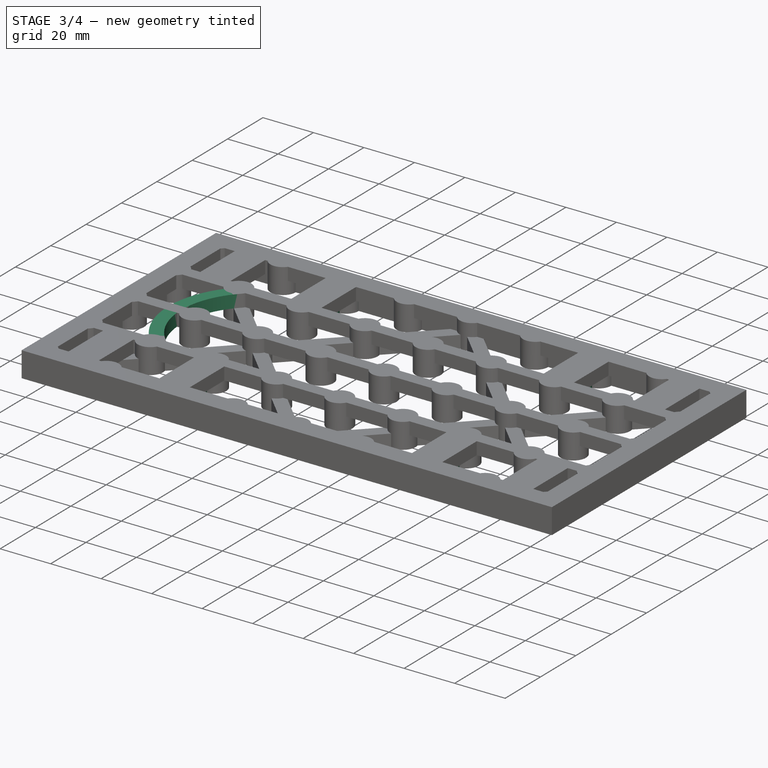
[diagram: stage 3 of 4 — iso view after this stage's code; geometry added in this stage tinted green]
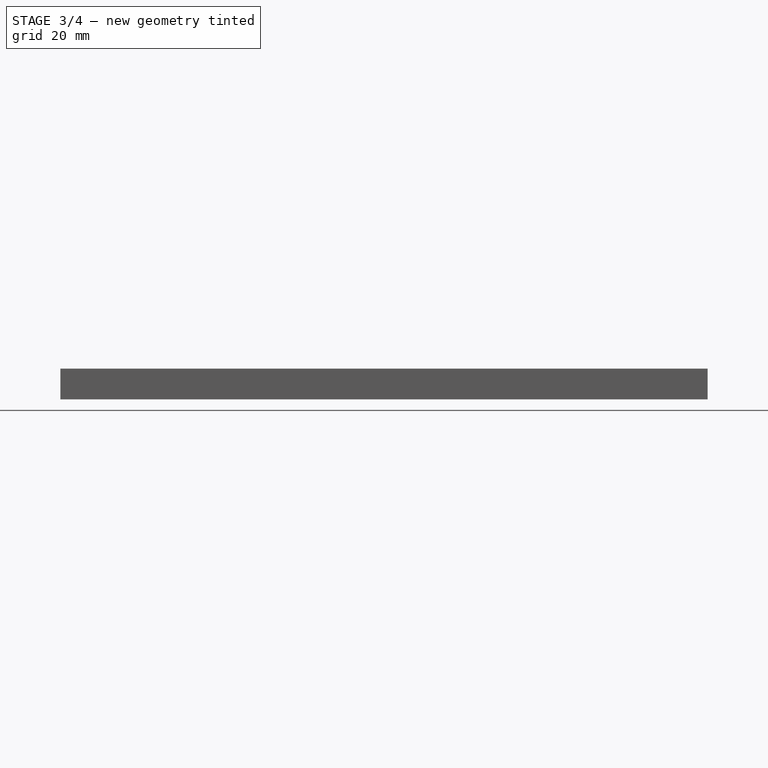
[diagram: stage 3 of 4 — front view after this stage's code; geometry added in this stage tinted green]
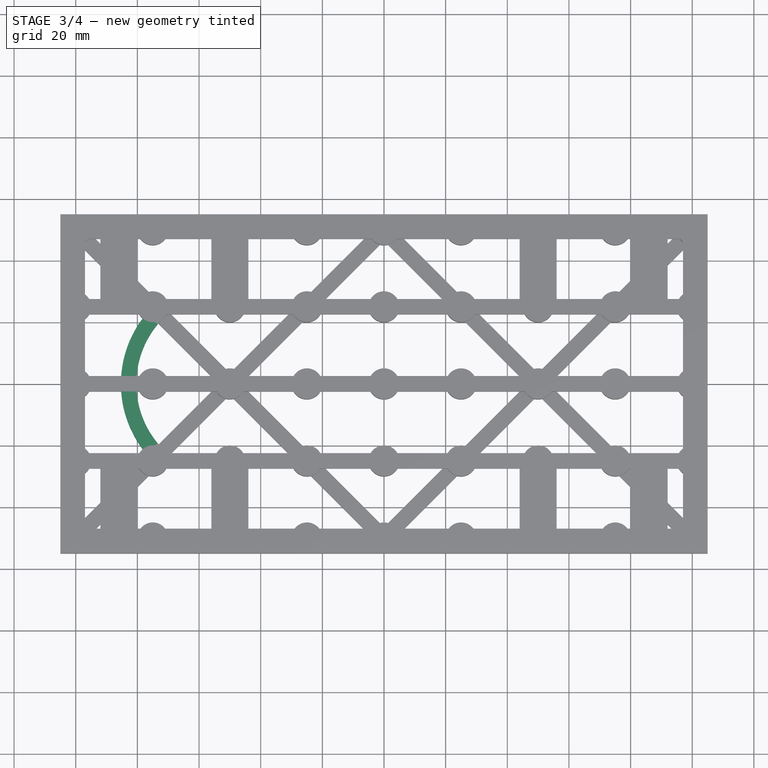
[diagram: stage 3 of 4 — top view after this stage's code; geometry added in this stage tinted green]
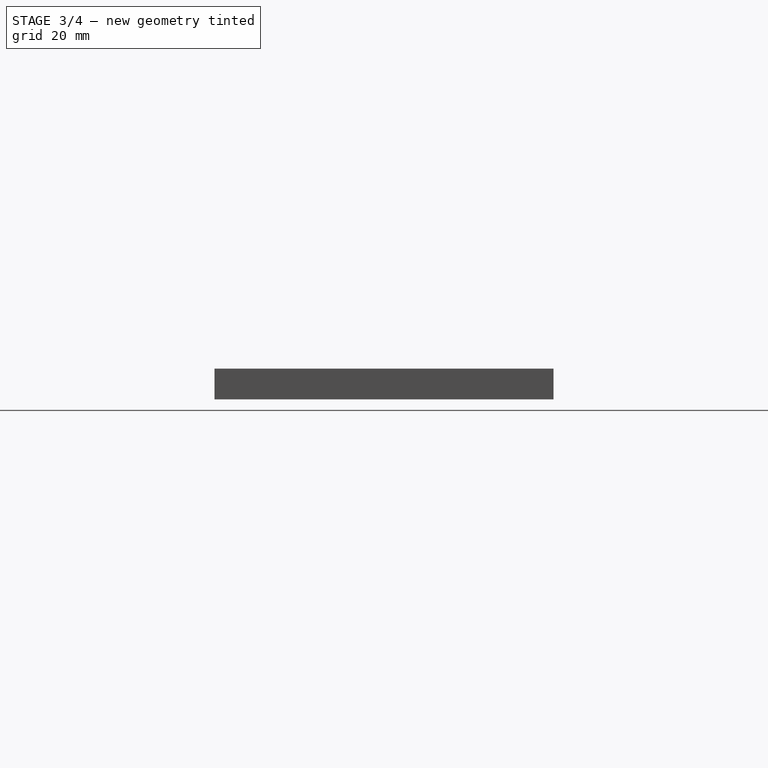
[diagram: stage 3 of 4 — right view after this stage's code; geometry added in this stage tinted green]
FEATURE [Sketcher::SketchObject] Sketch202
  ArcFitTolerance = 0
  AttachmentSupport = -> [XY_Plane023]
  FullyConstrained = true
  MakeInternals = false
  MapMode = 5
  sketch-geometry (8):
    g0: Circle CenterX=86 CenterY=-37.5 CenterZ=0 NormalX=0 NormalY=0 NormalZ=1 AngleXU=0 Radius=5
    g1: Circle CenterX=50 CenterY=-37.5 CenterZ=0 NormalX=0 NormalY=0 NormalZ=1 AngleXU=0 Radius=5
    g2: Circle CenterX=86 CenterY=37.5 CenterZ=0 NormalX=0 NormalY=0 NormalZ=1 AngleXU=0 Radius=5
    g3: Circle CenterX=50 CenterY=37.5 CenterZ=0 NormalX=0 NormalY=0 NormalZ=1 AngleXU=0 Radius=5
    g4: Circle CenterX=-50 CenterY=37.5 CenterZ=0 NormalX=0 NormalY=0 NormalZ=1 AngleXU=0 Radius=5
    g5: Circle CenterX=-86 CenterY=37.5 CenterZ=0 NormalX=0 NormalY=0 NormalZ=1 AngleXU=0 Radius=5
    g6: Circle CenterX=-50 CenterY=-37.5 CenterZ=0 NormalX=0 NormalY=0 NormalZ=1 AngleXU=0 Radius=5
    g7: Circle CenterX=-86 CenterY=-37.5 CenterZ=0 NormalX=0 NormalY=0 NormalZ=1 AngleXU=0 Radius=5
  constraints (24):
    c: Diameter(g0) = 10
    c: Equal(g0,g1)
    c: Equal(g1,g2)
    c: Equal(g2,g3)
    c: Equal(g3,g4)
    c: Equal(g4,g5)
    c: Equal(g5,g7)
    c: Equal(g7,g6)
    c: DistanceY(g-1,g0) = -37.5
    c: DistanceY(g-1,g1) = -37.5
    c: Distance(g1,g0) = 36
    c: DistanceX(g-2,g1) = 50
    c: DistanceX(g-2,g6) = -50
    c: DistanceY(g-1,g6) = -37.5
    c: Distance(g7,g6) = 36
    c: DistanceY(g-1,g7) = -37.5
    c: DistanceX(g-2,g4) = -50
    c: DistanceX(g-2,g3) = 50
    c: Distance(g3,g2) = 36
    c: Distance(g5,g4) = 36
    c: DistanceY(g-1,g5) = 37.5
    c: DistanceY(g-1,g4) = 37.5
    c: DistanceY(g-1,g3) = 37.5
    c: DistanceY(g-1,g2) = 37.5
FEATURE [PartDesign::Pad] Pad092
  BaseFeature = -> Pad091
  Direction = (0,0,1)
  Length = 10
  Length2 = 10
  Midplane = true
  Profile = -> Sketch202
  ReferenceAxis = -> Sketch202 [N_Axis]
  Suppressed = false
  Type = 0
FEATURE [Sketcher::SketchObject] Sketch205
  ArcFitTolerance = 0
  AttachmentSupport = -> [XY_Plane023]
  FullyConstrained = true
  MakeInternals = false
  MapMode = 5
  sketch-geometry (23):
    g0: LineSegment [constr] StartX=-100 StartY=50 StartZ=0 EndX=100 EndY=50 EndZ=0
    g1: LineSegment [constr] StartX=100 StartY=50 StartZ=0 EndX=100 EndY=-50 EndZ=0
    g2: LineSegment [constr] StartX=100 StartY=-50 StartZ=0 EndX=-100 EndY=-50 EndZ=0
    g3: LineSegment [constr] StartX=-100 StartY=-50 StartZ=0 EndX=-100 EndY=50 EndZ=0
    g4: LineSegment [constr] StartX=-100 StartY=-25 StartZ=0 EndX=100 EndY=-25 EndZ=0
    g5: LineSegment [constr] StartX=-100 StartY=25 StartZ=0 EndX=100 EndY=25 EndZ=0
    g6: LineSegment [constr] StartX=-100 StartY=-4.3e-15 StartZ=0 EndX=100 EndY=-4.3e-15 EndZ=0
    g7: LineSegment [constr] StartX=-75 StartY=-50 StartZ=0 EndX=-75 EndY=50 EndZ=0
    g8: LineSegment [constr] StartX=-50 StartY=50 StartZ=0 EndX=-50 EndY=-50 EndZ=0
    g9: LineSegment [constr] StartX=-25 StartY=50 StartZ=0 EndX=-25 EndY=-50 EndZ=0
    g10: LineSegment [constr] StartX=-1e-16 StartY=50 StartZ=0 EndX=-1e-16 EndY=-50 EndZ=0
    g11: LineSegment [constr] StartX=25 StartY=50 StartZ=0 EndX=25 EndY=-50 EndZ=0
    g12: LineSegment [constr] StartX=50 StartY=50 StartZ=0 EndX=50 EndY=-50 EndZ=0
    g13: LineSegment [constr] StartX=75 StartY=-50 StartZ=0 EndX=75 EndY=50 EndZ=0
    g14: GeomPoint [constr] X=-50 Y=-4.4e-15 Z=0
    g15: GeomPoint [constr] X=-75 Y=25 Z=0
    g16: GeomPoint [constr] X=-75 Y=-25 Z=0
    g17: LineSegment [constr] StartX=-50 StartY=-4.4e-15 StartZ=0 EndX=-100 EndY=50 EndZ=0
    g18: LineSegment [constr] StartX=-50 StartY=-4.4e-15 StartZ=0 EndX=-100 EndY=-50 EndZ=0
    g19: ArcOfCircle CenterX=-50 CenterY=-4.4e-15 CenterZ=0 NormalX=0 NormalY=0 NormalZ=1 AngleXU=0 Radius=35.3553 StartAngle=2.35619 EndAngle=3.92699
    g20: ArcOfCircle CenterX=-50 CenterY=-5.4e-15 CenterZ=0 NormalX=0 NormalY=0 NormalZ=1 AngleXU=0 Radius=30.3553 StartAngle=2.35619 EndAngle=3.92699
    g21: LineSegment StartX=-75 StartY=-25 StartZ=0 EndX=-71.4645 EndY=-21.4645 EndZ=0
    g22: LineSegment StartX=-75 StartY=25 StartZ=0 EndX=-71.4645 EndY=21.4645 EndZ=0
  constraints (73):
    c: Coincident(g0,g1)
    c: Coincident(g1,g2)
    c: Coincident(g2,g3)
    c: Coincident(g3,g0)
    c: Horizontal(g0)
    c: Horizontal(g2)
    c: Vertical(g1)
    c: Vertical(g3)
    c: DistanceY(g3,g3) = 100
    c: DistanceX(g2,g2) = 200
    c: Distance(g-1,g0) = 50
    c: Distance(g-1,g3) = 100
    c: Horizontal(g4)
    c: Horizontal(g5)
    c: Horizontal(g6)
    c: Distance(g0,g5) = 25
    c: Distance(g5,g6) = 25
    c: Distance(g6,g4) = 25
    c: PointOnObject(g5,g1)
    c: PointOnObject(g6,g1)
    c: PointOnObject(g4,g1)
    c: PointOnObject(g5,g3)
    c: PointOnObject(g6,g3)
    c: PointOnObject(g4,g3)
    c: Vertical(g7)
    c: Vertical(g8)
    c: Vertical(g9)
    c: Vertical(g10)
    c: Vertical(g11)
    c: Vertical(g12)
    c: Distance(g0,g7) = 25
    c: Distance(g7,g8) = 25
    c: Distance(g8,g9) = 25
    c: Distance(g9,g10) = 25
    c: Distance(g10,g11) = 25
    c: Distance(g11,g12) = 25
    c: Vertical(g13)
    c: Distance(g12,g13) = 25
    c: PointOnObject(g7,g2)
    c: PointOnObject(g8,g2)
    c: PointOnObject(g9,g2)
    c: PointOnObject(g10,g2)
    c: PointOnObject(g11,g2)
    c: PointOnObject(g12,g2)
    c: PointOnObject(g13,g2)
    c: PointOnObject(g7,g0)
    c: PointOnObject(g8,g0)
    c: PointOnObject(g9,g0)
    c: PointOnObject(g10,g0)
    c: PointOnObject(g11,g0)
    c: PointOnObject(g12,g0)
    c: PointOnObject(g13,g0)
    c: PointOnObject(g14,g8)
    c: PointOnObject(g15,g5)
    c: PointOnObject(g16,g4)
    c: PointOnObject(g16,g7)
    c: PointOnObject(g15,g7)
    c: Coincident(g17,g14)
    c: Coincident(g17,g0)
    c: Coincident(g18,g14)
    c: Coincident(g18,g2)
    c: Coincident(g19,g14)
    c: Coincident(g19,g15)
    c: Coincident(g19,g16)
    c: PointOnObject(g20,g8)
    c: PointOnObject(g20,g17)
    c: PointOnObject(g20,g18)
    c: Coincident(g21,g19)
    c: Coincident(g21,g20)
    c: Distance(g21) = 5
    c: Coincident(g22,g19)
    c: Coincident(g22,g20)
    c: Distance(g22) = 5
FEATURE [PartDesign::Pad] Pad093
  BaseFeature = -> Pad092
  Direction = (0,0,1)
  Length = 5
  Length2 = 10
  Profile = -> Sketch205
  ReferenceAxis = -> Sketch205 [N_Axis]
  Suppressed = false
  Type = 0
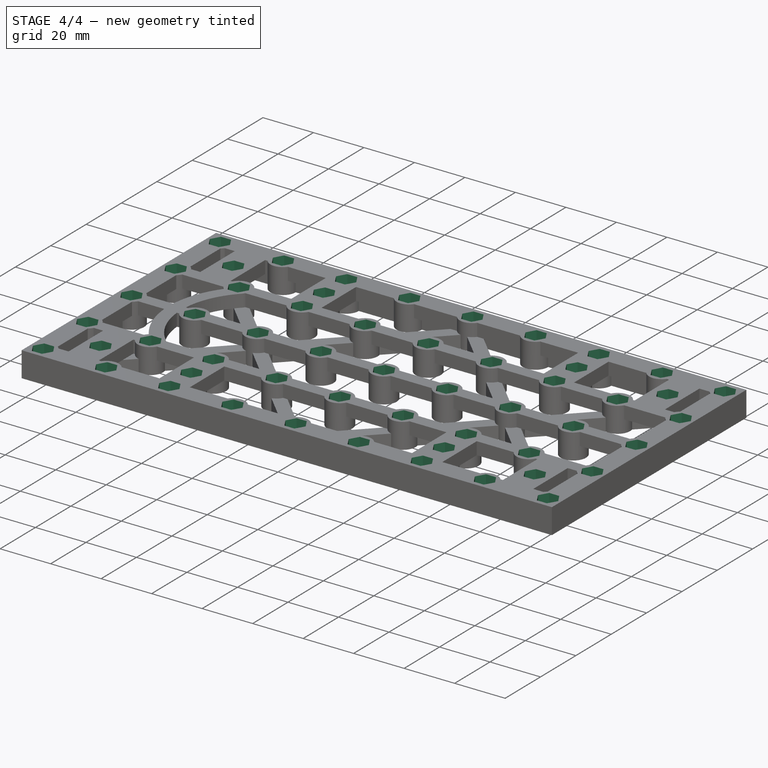
[diagram: stage 4 of 4 — iso view after this stage's code; geometry added in this stage tinted green]
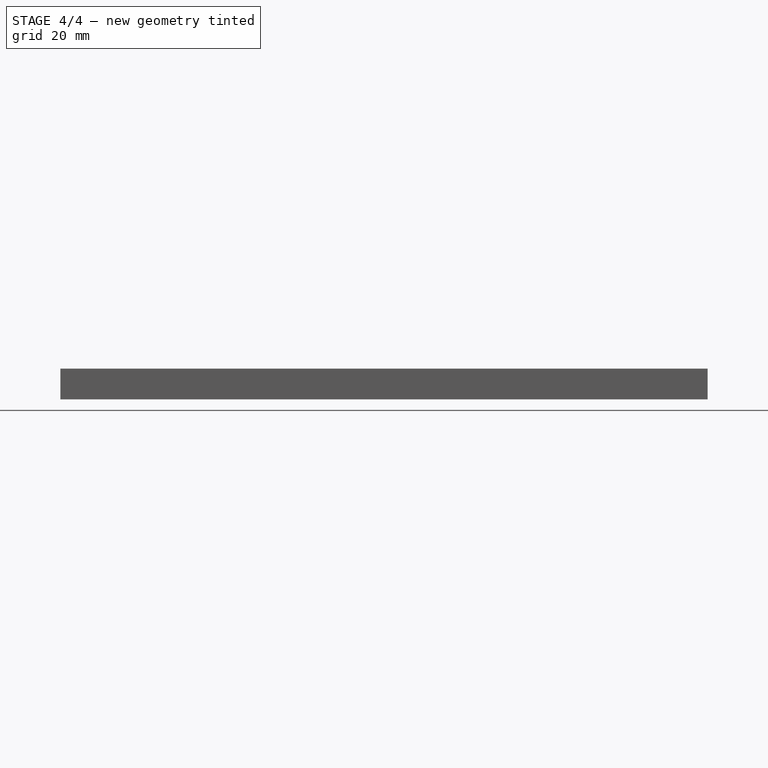
[diagram: stage 4 of 4 — front view after this stage's code; geometry added in this stage tinted green]
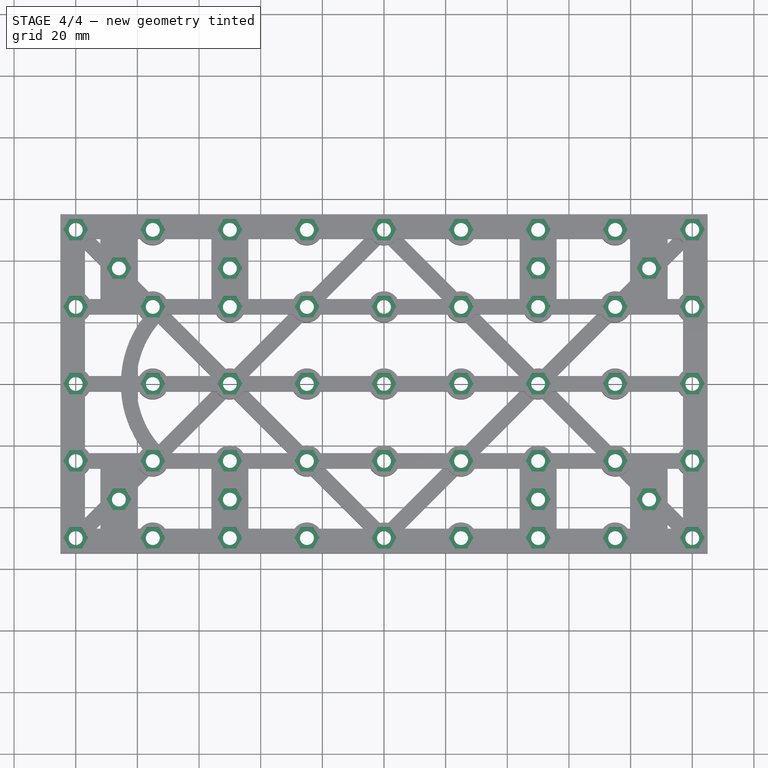
[diagram: stage 4 of 4 — top view after this stage's code; geometry added in this stage tinted green]
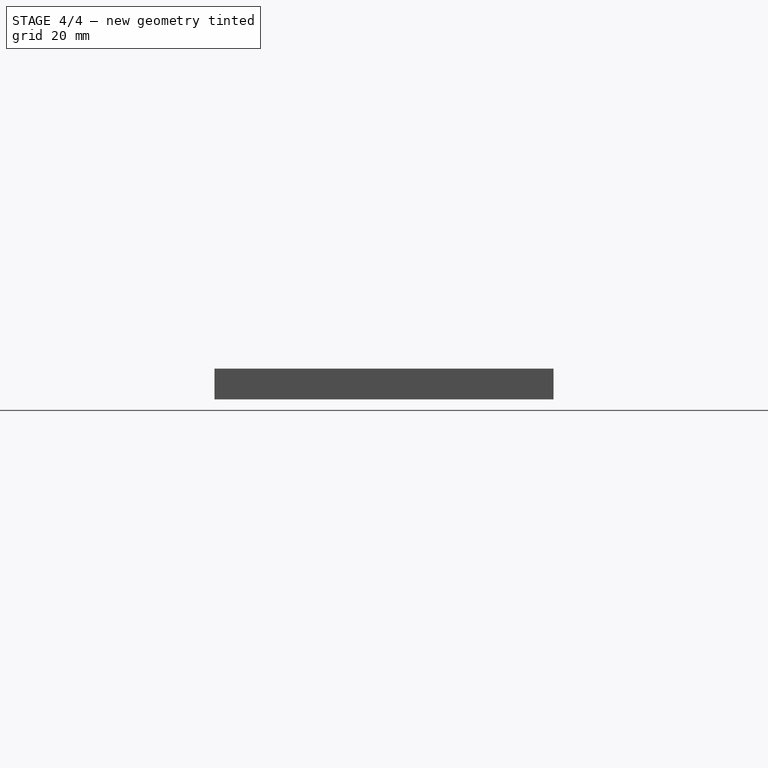
[diagram: stage 4 of 4 — right view after this stage's code; geometry added in this stage tinted green]
FEATURE [Sketcher::SketchObject] Sketch208
  ArcFitTolerance = 0
  AttachmentSupport = -> [XY_Plane023]
  FullyConstrained = true
  MakeInternals = false
  MapMode = 5
  sketch-geometry (67):
    g0: LineSegment [constr] StartX=-100 StartY=50 StartZ=0 EndX=100 EndY=50 EndZ=0
    g1: LineSegment [constr] StartX=100 StartY=50 StartZ=0 EndX=100 EndY=-50 EndZ=0
    g2: LineSegment [constr] StartX=100 StartY=-50 StartZ=0 EndX=-100 EndY=-50 EndZ=0
    g3: LineSegment [constr] StartX=-100 StartY=-50 StartZ=0 EndX=-100 EndY=50 EndZ=0
    g4: LineSegment [constr] StartX=-100 StartY=-25 StartZ=0 EndX=100 EndY=-25 EndZ=0
    g5: LineSegment [constr] StartX=-100 StartY=25 StartZ=0 EndX=100 EndY=25 EndZ=0
    g6: LineSegment [constr] StartX=-100 StartY=-1.3e-15 StartZ=0 EndX=100 EndY=-1.3e-15 EndZ=0
    g7: LineSegment [constr] StartX=-75 StartY=-50 StartZ=0 EndX=-75 EndY=50 EndZ=0
    g8: LineSegment [constr] StartX=-50 StartY=50 StartZ=0 EndX=-50 EndY=-50 EndZ=0
    g9: LineSegment [constr] StartX=-25 StartY=50 StartZ=0 EndX=-25 EndY=-50 EndZ=0
    g10: LineSegment [constr] StartX=-2.9e-15 StartY=50 StartZ=0 EndX=-2.9e-15 EndY=-50 EndZ=0
    g11: LineSegment [constr] StartX=25 StartY=50 StartZ=0 EndX=25 EndY=-50 EndZ=0
    g12: LineSegment [constr] StartX=50 StartY=50 StartZ=0 EndX=50 EndY=-50 EndZ=0
    g13: LineSegment [constr] StartX=75 StartY=-50 StartZ=0 EndX=75 EndY=50 EndZ=0
    g14: Circle CenterX=-100 CenterY=50 CenterZ=0 NormalX=0 NormalY=0 NormalZ=1 AngleXU=0 Radius=2.25
    g15: Circle CenterX=-75 CenterY=50 CenterZ=0 NormalX=0 NormalY=0 NormalZ=1 AngleXU=0 Radius=2.25
    g16: Circle CenterX=-50 CenterY=50 CenterZ=0 NormalX=0 NormalY=0 NormalZ=1 AngleXU=0 Radius=2.25
    g17: Circle CenterX=-25 CenterY=50 CenterZ=0 NormalX=0 NormalY=0 NormalZ=1 AngleXU=0 Radius=2.25
    g18: Circle CenterX=-2.9e-15 CenterY=50 CenterZ=0 NormalX=0 NormalY=0 NormalZ=1 AngleXU=0 Radius=2.25
    g19: Circle CenterX=25 CenterY=50 CenterZ=0 NormalX=0 NormalY=0 NormalZ=1 AngleXU=0 Radius=2.25
    g20: Circle CenterX=50 CenterY=50 CenterZ=0 NormalX=0 NormalY=0 NormalZ=1 AngleXU=0 Radius=2.25
    g21: Circle CenterX=75 CenterY=50 CenterZ=0 NormalX=0 NormalY=0 NormalZ=1 AngleXU=0 Radius=2.25
    g22: Circle CenterX=100 CenterY=50 CenterZ=0 NormalX=0 NormalY=0 NormalZ=1 AngleXU=0 Radius=2.25
    g23: Circle CenterX=-100 CenterY=25 CenterZ=0 NormalX=0 NormalY=0 NormalZ=1 AngleXU=0 Radius=2.25
    g24: Circle CenterX=-75 CenterY=25 CenterZ=0 NormalX=0 NormalY=0 NormalZ=1 AngleXU=0 Radius=2.25
    g25: Circle CenterX=-50 CenterY=25 CenterZ=0 NormalX=0 NormalY=0 NormalZ=1 AngleXU=0 Radius=2.25
    g26: Circle CenterX=-25 CenterY=25 CenterZ=0 NormalX=0 NormalY=0 NormalZ=1 AngleXU=0 Radius=2.25
    g27: Circle CenterX=-2.9e-15 CenterY=25 CenterZ=0 NormalX=0 NormalY=0 NormalZ=1 AngleXU=0 Radius=2.25
    g28: Circle CenterX=25 CenterY=25 CenterZ=0 NormalX=0 NormalY=0 NormalZ=1 AngleXU=0 Radius=2.25
    g29: Circle CenterX=50 CenterY=25 CenterZ=0 NormalX=0 NormalY=0 NormalZ=1 AngleXU=0 Radius=2.25
    g30: Circle CenterX=75 CenterY=25 CenterZ=0 NormalX=0 NormalY=0 NormalZ=1 AngleXU=0 Radius=2.25
    g31: Circle CenterX=100 CenterY=-1.3e-15 CenterZ=0 NormalX=0 NormalY=0 NormalZ=1 AngleXU=0 Radius=2.25
    g32: Circle CenterX=100 CenterY=25 CenterZ=0 NormalX=0 NormalY=0 NormalZ=1 AngleXU=0 Radius=2.25
    g33: Circle CenterX=100 CenterY=-25 CenterZ=0 NormalX=0 NormalY=0 NormalZ=1 AngleXU=0 Radius=2.25
    g34: Circle CenterX=100 CenterY=-50 CenterZ=0 NormalX=0 NormalY=0 NormalZ=1 AngleXU=0 Radius=2.25
    g35: Circle CenterX=75 CenterY=-50 CenterZ=0 NormalX=0 NormalY=0 NormalZ=1 AngleXU=0 Radius=2.25
    g36: Circle CenterX=50 CenterY=-50 CenterZ=0 NormalX=0 NormalY=0 NormalZ=1 AngleXU=0 Radius=2.25
    g37: Circle CenterX=25 CenterY=-50 CenterZ=0 NormalX=0 NormalY=0 NormalZ=1 AngleXU=0 Radius=2.25
    g38: Circle CenterX=-2.9e-15 CenterY=-50 CenterZ=0 NormalX=0 NormalY=0 NormalZ=1 AngleXU=0 Radius=2.25
    g39: Circle CenterX=-25 CenterY=-50 CenterZ=0 NormalX=0 NormalY=0 NormalZ=1 AngleXU=0 Radius=2.25
    g40: Circle CenterX=-50 CenterY=-50 CenterZ=0 NormalX=0 NormalY=0 NormalZ=1 AngleXU=0 Radius=2.25
    g41: Circle CenterX=-75 CenterY=-50 CenterZ=0 NormalX=0 NormalY=0 NormalZ=1 AngleXU=0 Radius=2.25
    g42: Circle CenterX=-100 CenterY=-50 CenterZ=0 NormalX=0 NormalY=0 NormalZ=1 AngleXU=0 Radius=2.25
    g43: Circle CenterX=-100 CenterY=-25 CenterZ=0 NormalX=0 NormalY=0 NormalZ=1 AngleXU=0 Radius=2.25
    g44: Circle CenterX=-100 CenterY=-1.3e-15 CenterZ=0 NormalX=0 NormalY=0 NormalZ=1 AngleXU=0 Radius=2.25
    g45: Circle CenterX=-75 CenterY=-1.3e-15 CenterZ=0 NormalX=0 NormalY=0 NormalZ=1 AngleXU=0 Radius=2.25
    g46: Circle CenterX=-75 CenterY=-25 CenterZ=0 NormalX=0 NormalY=0 NormalZ=1 AngleXU=0 Radius=2.25
    g47: Circle CenterX=-50 CenterY=-1.3e-15 CenterZ=0 NormalX=0 NormalY=0 NormalZ=1 AngleXU=0 Radius=2.25
    g48: Circle CenterX=-50 CenterY=-25 CenterZ=0 NormalX=0 NormalY=0 NormalZ=1 AngleXU=0 Radius=2.25
    g49: Circle CenterX=-25 CenterY=-1.3e-15 CenterZ=0 NormalX=0 NormalY=0 NormalZ=1 AngleXU=0 Radius=2.25
    g50: Circle CenterX=-25 CenterY=-25 CenterZ=0 NormalX=0 NormalY=0 NormalZ=1 AngleXU=0 Radius=2.25
    g51: Circle CenterX=-2.9e-15 CenterY=-1.3e-15 CenterZ=0 NormalX=0 NormalY=0 NormalZ=1 AngleXU=0 Radius=2.25
    g52: Circle CenterX=25 CenterY=-25 CenterZ=0 NormalX=0 NormalY=0 NormalZ=1 AngleXU=0 Radius=2.25
    g53: Circle CenterX=25 CenterY=-1.3e-15 CenterZ=0 NormalX=0 NormalY=0 NormalZ=1 AngleXU=0 Radius=2.25
    g54: Circle CenterX=50 CenterY=-1.3e-15 CenterZ=0 NormalX=0 NormalY=0 NormalZ=1 AngleXU=0 Radius=2.25
    g55: Circle CenterX=50 CenterY=-25 CenterZ=0 NormalX=0 NormalY=0 NormalZ=1 AngleXU=0 Radius=2.25
    g56: Circle CenterX=-2.9e-15 CenterY=-25 CenterZ=0 NormalX=0 NormalY=0 NormalZ=1 AngleXU=0 Radius=2.25
    g57: Circle CenterX=75 CenterY=-1.3e-15 CenterZ=0 NormalX=0 NormalY=0 NormalZ=1 AngleXU=0 Radius=2.25
    g58: Circle CenterX=75 CenterY=-25 CenterZ=0 NormalX=0 NormalY=0 NormalZ=1 AngleXU=0 Radius=2.25
    g59: Circle CenterX=-50 CenterY=37.5 CenterZ=0 NormalX=0 NormalY=0 NormalZ=1 AngleXU=0 Radius=2.25
    g60: Circle CenterX=-86 CenterY=37.5 CenterZ=0 NormalX=0 NormalY=0 NormalZ=1 AngleXU=0 Radius=2.25
    g61: Circle CenterX=50 CenterY=37.5 CenterZ=0 NormalX=0 NormalY=0 NormalZ=1 AngleXU=0 Radius=2.25
    g62: Circle CenterX=86 CenterY=37.5 CenterZ=0 NormalX=0 NormalY=0 NormalZ=1 AngleXU=0 Radius=2.25
    g63: Circle CenterX=50 CenterY=-37.5 CenterZ=0 NormalX=0 NormalY=0 NormalZ=1 AngleXU=0 Radius=2.25
    g64: Circle CenterX=86 CenterY=-37.5 CenterZ=0 NormalX=0 NormalY=0 NormalZ=1 AngleXU=0 Radius=2.25
    g65: Circle CenterX=-86 CenterY=-37.5 CenterZ=0 NormalX=0 NormalY=0 NormalZ=1 AngleXU=0 Radius=2.25
    g66: Circle CenterX=-50 CenterY=-37.5 CenterZ=0 NormalX=0 NormalY=0 NormalZ=1 AngleXU=0 Radius=2.25
  constraints (187):
    c: Coincident(g0,g1)
    c: Coincident(g1,g2)
    c: Coincident(g2,g3)
    c: Coincident(g3,g0)
    c: Horizontal(g0)
    c: Horizontal(g2)
    c: Vertical(g1)
    c: Vertical(g3)
    c: DistanceY(g3,g3) = 100
    c: DistanceX(g2,g2) = 200
    c: Distance(g-1,g0) = 50
    c: Distance(g-1,g3) = 100
    c: Horizontal(g4)
    c: Horizontal(g5)
    c: Horizontal(g6)
    c: Distance(g0,g5) = 25
    c: Distance(g5,g6) = 25
    c: Distance(g6,g4) = 25
    c: PointOnObject(g5,g1)
    c: PointOnObject(g6,g1)
    c: PointOnObject(g4,g1)
    c: PointOnObject(g5,g3)
    c: PointOnObject(g6,g3)
    c: PointOnObject(g4,g3)
    c: Vertical(g7)
    c: Vertical(g8)
    c: Vertical(g9)
    c: Vertical(g10)
    c: Vertical(g11)
    c: Vertical(g12)
    c: Distance(g0,g7) = 25
    c: Distance(g7,g8) = 25
    c: Distance(g8,g9) = 25
    c: Distance(g9,g10) = 25
    c: Distance(g10,g11) = 25
    c: Distance(g11,g12) = 25
    c: Vertical(g13)
    c: Distance(g12,g13) = 25
    c: PointOnObject(g7,g2)
    c: PointOnObject(g8,g2)
    c: PointOnObject(g9,g2)
    c: PointOnObject(g10,g2)
    c: PointOnObject(g11,g2)
    c: PointOnObject(g12,g2)
    c: PointOnObject(g13,g2)
    c: PointOnObject(g7,g0)
    c: PointOnObject(g8,g0)
    c: PointOnObject(g9,g0)
    c: PointOnObject(g10,g0)
    c: PointOnObject(g11,g0)
    c: PointOnObject(g12,g0)
    c: PointOnObject(g13,g0)
    c: Coincident(g14,g0)
    c: Coincident(g15,g7)
    c: Coincident(g16,g8)
    c: Coincident(g17,g9)
    c: Coincident(g18,g10)
    c: Coincident(g19,g11)
    c: Coincident(g20,g12)
    c: Coincident(g21,g13)
    c: Coincident(g22,g0)
    c: Coincident(g23,g5)
    c: PointOnObject(g24,g7)
    c: PointOnObject(g25,g8)
    c: PointOnObject(g26,g9)
    c: PointOnObject(g27,g10)
    c: PointOnObject(g28,g11)
    c: PointOnObject(g29,g12)
    c: PointOnObject(g30,g13)
    c: Coincident(g31,g6)
    c: Coincident(g32,g5)
    c: Coincident(g33,g4)
    c: Coincident(g34,g1)
    c: Coincident(g35,g13)
    c: Coincident(g36,g12)
    c: Coincident(g37,g11)
    c: Coincident(g38,g10)
    c: Coincident(g39,g9)
    c: Coincident(g40,g8)
    c: Coincident(g41,g7)
    c: Coincident(g42,g2)
    c: Coincident(g43,g4)
    c: Coincident(g44,g6)
    c: PointOnObject(g45,g7)
    c: PointOnObject(g46,g7)
    c: PointOnObject(g47,g8)
    c: PointOnObject(g48,g8)
    c: PointOnObject(g49,g9)
    c: PointOnObject(g50,g9)
    c: PointOnObject(g51,g10)
    c: PointOnObject(g52,g11)
    c: PointOnObject(g53,g11)
    c: PointOnObject(g54,g12)
    c: PointOnObject(g55,g12)
    c: PointOnObject(g56,g10)
    c: PointOnObject(g57,g13)
    c: PointOnObject(g58,g13)
    c: PointOnObject(g24,g5)
    c: PointOnObject(g25,g5)
    c: PointOnObject(g26,g5)
    c: PointOnObject(g27,g5)
    c: PointOnObject(g56,g4)
    c: PointOnObject(g51,g6)
    c: PointOnObject(g28,g5)
    c: PointOnObject(g29,g5)
    c: PointOnObject(g30,g5)
    c: PointOnObject(g57,g6)
    c: PointOnObject(g54,g6)
    c: PointOnObject(g53,g6)
    c: PointOnObject(g49,g6)
    c: PointOnObject(g47,g6)
    c: PointOnObject(g45,g6)
    c: PointOnObject(g46,g4)
    c: PointOnObject(g48,g4)
    c: PointOnObject(g50,g4)
    c: PointOnObject(g52,g4)
    c: PointOnObject(g55,g4)
    c: PointOnObject(g58,g4)
    c: Diameter(g14) = 4.5
    c: Equal(g14,g15)
    c: Equal(g15,g16)
    c: Equal(g16,g17)
    c: Equal(g17,g18)
    c: Equal(g18,g19)
    c: Equal(g14,g23)
    c: Equal(g23,g24)
    c: Equal(g14,g25)
    c: Equal(g25,g26)
    c: Equal(g26,g27)
    c: Equal(g27,g28)
    c: Equal(g28,g29)
    c: Equal(g29,g30)
    c: Equal(g14,g20)
    c: Equal(g20,g21)
    c: Equal(g21,g22)
    c: Equal(g22,g32)
    c: Equal(g32,g31)
    c: Equal(g31,g57)
    c: Equal(g57,g54)
    c: Equal(g54,g53)
    c: Equal(g53,g51)
    c: Equal(g51,g49)
    c: Equal(g49,g47)
    c: Equal(g47,g45)
    c: Equal(g45,g44)
    c: Equal(g14,g43)
    c: Equal(g43,g42)
    c: Equal(g42,g41)
    c: Equal(g41,g46)
    c: Equal(g46,g48)
    c: Equal(g48,g40)
    c: Equal(g40,g50)
    c: Equal(g50,g39)
    c: Equal(g39,g38)
    c: Equal(g38,g56)
    c: Equal(g56,g52)
    c: Equal(g52,g37)
    c: Equal(g37,g36)
    c: Equal(g36,g55)
    c: Equal(g55,g58)
    c: Equal(g58,g35)
    c: Equal(g35,g33)
    c: Equal(g33,g34)
    c: PointOnObject(g59,g8)
    c: PointOnObject(g61,g12)
    c: PointOnObject(g63,g12)
    c: PointOnObject(g66,g8)
    c: Equal(g14,g60)
    c: Equal(g60,g59)
    c: Equal(g59,g65)
    c: Equal(g65,g66)
    c: Equal(g66,g63)
    c: Equal(g63,g64)
    c: Equal(g64,g62)
    c: Equal(g62,g61)
    c: Distance(g59,g25) = 12.5
    c: Distance(g66,g40) = 12.5
    c: Distance(g63,g36) = 12.5
    c: Distance(g61,g29) = 12.5
    c: Distance(g61,g62) = 36
    c: Distance(g62,g5) = 12.5
    c: Distance(g63,g64) = 36
    c: Distance(g64,g2) = 12.5
    c: Distance(g65,g66) = 36
    c: Distance(g65,g2) = 12.5
    c: Distance(g60,g59) = 36
    c: Distance(g60,g5) = 12.5
FEATURE [PartDesign::Pocket] Pocket081
  BaseFeature = -> Pad093
  Direction = (0,0,-1)
  Length = 10
  Length2 = 5
  Midplane = true
  Profile = -> Sketch208
  ReferenceAxis = -> Sketch208 [N_Axis]
  Suppressed = false
  Type = 0
FEATURE [Sketcher::SketchObject] Sketch209
  ArcFitTolerance = 0
  AttachmentSupport = -> [Pocket081]
  FullyConstrained = true
  MakeInternals = false
  MapMode = 5
  Placement = pos=(0,0,-5) rot=(1,0,0;3.14159rad)
  sketch-geometry (67):
    g0: LineSegment [constr] StartX=-100 StartY=50 StartZ=0 EndX=100 EndY=50 EndZ=0
    g1: LineSegment [constr] StartX=100 StartY=50 StartZ=0 EndX=100 EndY=-50 EndZ=0
    g2: LineSegment [constr] StartX=100 StartY=-50 StartZ=0 EndX=-100 EndY=-50 EndZ=0
    g3: LineSegment [constr] StartX=-100 StartY=-50 StartZ=0 EndX=-100 EndY=50 EndZ=0
    g4: LineSegment [constr] StartX=-100 StartY=-25 StartZ=0 EndX=100 EndY=-25 EndZ=0
    g5: LineSegment [constr] StartX=-100 StartY=25 StartZ=0 EndX=100 EndY=25 EndZ=0
    g6: LineSegment [constr] StartX=-100 StartY=-1.3e-15 StartZ=0 EndX=100 EndY=-1.3e-15 EndZ=0
    g7: LineSegment [constr] StartX=-75 StartY=-50 StartZ=0 EndX=-75 EndY=50 EndZ=0
    g8: LineSegment [constr] StartX=-50 StartY=50 StartZ=0 EndX=-50 EndY=-50 EndZ=0
    g9: LineSegment [constr] StartX=-25 StartY=50 StartZ=0 EndX=-25 EndY=-50 EndZ=0
    g10: LineSegment [constr] StartX=-2.9e-15 StartY=50 StartZ=0 EndX=-2.9e-15 EndY=-50 EndZ=0
    g11: LineSegment [constr] StartX=25 StartY=50 StartZ=0 EndX=25 EndY=-50 EndZ=0
    g12: LineSegment [constr] StartX=50 StartY=50 StartZ=0 EndX=50 EndY=-50 EndZ=0
    g13: LineSegment [constr] StartX=75 StartY=-50 StartZ=0 EndX=75 EndY=50 EndZ=0
    g14: Circle CenterX=-100 CenterY=50 CenterZ=0 NormalX=0 NormalY=0 NormalZ=1 AngleXU=0 Radius=3.75
    g15: Circle CenterX=-75 CenterY=50 CenterZ=0 NormalX=0 NormalY=0 NormalZ=1 AngleXU=0 Radius=3.75
    g16: Circle CenterX=-50 CenterY=50 CenterZ=0 NormalX=0 NormalY=0 NormalZ=1 AngleXU=0 Radius=3.75
    g17: Circle CenterX=-25 CenterY=50 CenterZ=0 NormalX=0 NormalY=0 NormalZ=1 AngleXU=0 Radius=3.75
    g18: Circle CenterX=-2.9e-15 CenterY=50 CenterZ=0 NormalX=0 NormalY=0 NormalZ=1 AngleXU=0 Radius=3.75
    g19: Circle CenterX=25 CenterY=50 CenterZ=0 NormalX=0 NormalY=0 NormalZ=1 AngleXU=0 Radius=3.75
    g20: Circle CenterX=50 CenterY=50 CenterZ=0 NormalX=0 NormalY=0 NormalZ=1 AngleXU=0 Radius=3.75
    g21: Circle CenterX=75 CenterY=50 CenterZ=0 NormalX=0 NormalY=0 NormalZ=1 AngleXU=0 Radius=3.75
    g22: Circle CenterX=100 CenterY=50 CenterZ=0 NormalX=0 NormalY=0 NormalZ=1 AngleXU=0 Radius=3.75
    g23: Circle CenterX=-100 CenterY=25 CenterZ=0 NormalX=0 NormalY=0 NormalZ=1 AngleXU=0 Radius=3.75
    g24: Circle CenterX=-75 CenterY=25 CenterZ=0 NormalX=0 NormalY=0 NormalZ=1 AngleXU=0 Radius=3.75
    g25: Circle CenterX=-50 CenterY=25 CenterZ=0 NormalX=0 NormalY=0 NormalZ=1 AngleXU=0 Radius=3.75
    g26: Circle CenterX=-25 CenterY=25 CenterZ=0 NormalX=0 NormalY=0 NormalZ=1 AngleXU=0 Radius=3.75
    g27: Circle CenterX=-2.9e-15 CenterY=25 CenterZ=0 NormalX=0 NormalY=0 NormalZ=1 AngleXU=0 Radius=3.75
    g28: Circle CenterX=25 CenterY=25 CenterZ=0 NormalX=0 NormalY=0 NormalZ=1 AngleXU=0 Radius=3.75
    g29: Circle CenterX=50 CenterY=25 CenterZ=0 NormalX=0 NormalY=0 NormalZ=1 AngleXU=0 Radius=3.75
    g30: Circle CenterX=75 CenterY=25 CenterZ=0 NormalX=0 NormalY=0 NormalZ=1 AngleXU=0 Radius=3.75
    g31: Circle CenterX=100 CenterY=-1.3e-15 CenterZ=0 NormalX=0 NormalY=0 NormalZ=1 AngleXU=0 Radius=3.75
    g32: Circle CenterX=100 CenterY=25 CenterZ=0 NormalX=0 NormalY=0 NormalZ=1 AngleXU=0 Radius=3.75
    g33: Circle CenterX=100 CenterY=-25 CenterZ=0 NormalX=0 NormalY=0 NormalZ=1 AngleXU=0 Radius=3.75
    g34: Circle CenterX=100 CenterY=-50 CenterZ=0 NormalX=0 NormalY=0 NormalZ=1 AngleXU=0 Radius=3.75
    g35: Circle CenterX=75 CenterY=-50 CenterZ=0 NormalX=0 NormalY=0 NormalZ=1 AngleXU=0 Radius=3.75
    g36: Circle CenterX=50 CenterY=-50 CenterZ=0 NormalX=0 NormalY=0 NormalZ=1 AngleXU=0 Radius=3.75
    g37: Circle CenterX=25 CenterY=-50 CenterZ=0 NormalX=0 NormalY=0 NormalZ=1 AngleXU=0 Radius=3.75
    g38: Circle CenterX=-2.9e-15 CenterY=-50 CenterZ=0 NormalX=0 NormalY=0 NormalZ=1 AngleXU=0 Radius=3.75
    g39: Circle CenterX=-25 CenterY=-50 CenterZ=0 NormalX=0 NormalY=0 NormalZ=1 AngleXU=0 Radius=3.75
    g40: Circle CenterX=-50 CenterY=-50 CenterZ=0 NormalX=0 NormalY=0 NormalZ=1 AngleXU=0 Radius=3.75
    g41: Circle CenterX=-75 CenterY=-50 CenterZ=0 NormalX=0 NormalY=0 NormalZ=1 AngleXU=0 Radius=3.75
    g42: Circle CenterX=-100 CenterY=-50 CenterZ=0 NormalX=0 NormalY=0 NormalZ=1 AngleXU=0 Radius=3.75
    g43: Circle CenterX=-100 CenterY=-25 CenterZ=0 NormalX=0 NormalY=0 NormalZ=1 AngleXU=0 Radius=3.75
    g44: Circle CenterX=-100 CenterY=-1.3e-15 CenterZ=0 NormalX=0 NormalY=0 NormalZ=1 AngleXU=0 Radius=3.75
    g45: Circle CenterX=-75 CenterY=-1.3e-15 CenterZ=0 NormalX=0 NormalY=0 NormalZ=1 AngleXU=0 Radius=3.75
    g46: Circle CenterX=-75 CenterY=-25 CenterZ=0 NormalX=0 NormalY=0 NormalZ=1 AngleXU=0 Radius=3.75
    g47: Circle CenterX=-50 CenterY=-1.3e-15 CenterZ=0 NormalX=0 NormalY=0 NormalZ=1 AngleXU=0 Radius=3.75
    g48: Circle CenterX=-50 CenterY=-25 CenterZ=0 NormalX=0 NormalY=0 NormalZ=1 AngleXU=0 Radius=3.75
    g49: Circle CenterX=-25 CenterY=-1.3e-15 CenterZ=0 NormalX=0 NormalY=0 NormalZ=1 AngleXU=0 Radius=3.75
    g50: Circle CenterX=-25 CenterY=-25 CenterZ=0 NormalX=0 NormalY=0 NormalZ=1 AngleXU=0 Radius=3.75
    g51: Circle CenterX=-2.9e-15 CenterY=-1.3e-15 CenterZ=0 NormalX=0 NormalY=0 NormalZ=1 AngleXU=0 Radius=3.75
    g52: Circle CenterX=25 CenterY=-25 CenterZ=0 NormalX=0 NormalY=0 NormalZ=1 AngleXU=0 Radius=3.75
    g53: Circle CenterX=25 CenterY=-1.3e-15 CenterZ=0 NormalX=0 NormalY=0 NormalZ=1 AngleXU=0 Radius=3.75
    g54: Circle CenterX=50 CenterY=-1.3e-15 CenterZ=0 NormalX=0 NormalY=0 NormalZ=1 AngleXU=0 Radius=3.75
    g55: Circle CenterX=50 CenterY=-25 CenterZ=0 NormalX=0 NormalY=0 NormalZ=1 AngleXU=0 Radius=3.75
    g56: Circle CenterX=-2.9e-15 CenterY=-25 CenterZ=0 NormalX=0 NormalY=0 NormalZ=1 AngleXU=0 Radius=3.75
    g57: Circle CenterX=75 CenterY=-1.3e-15 CenterZ=0 NormalX=0 NormalY=0 NormalZ=1 AngleXU=0 Radius=3.75
    g58: Circle CenterX=75 CenterY=-25 CenterZ=0 NormalX=0 NormalY=0 NormalZ=1 AngleXU=0 Radius=3.75
    g59: Circle CenterX=-50 CenterY=37.5 CenterZ=0 NormalX=0 NormalY=0 NormalZ=1 AngleXU=0 Radius=3.75
    g60: Circle CenterX=-86 CenterY=37.5 CenterZ=0 NormalX=0 NormalY=0 NormalZ=1 AngleXU=0 Radius=3.75
    g61: Circle CenterX=50 CenterY=37.5 CenterZ=0 NormalX=0 NormalY=0 NormalZ=1 AngleXU=0 Radius=3.75
    g62: Circle CenterX=86 CenterY=37.5 CenterZ=0 NormalX=0 NormalY=0 NormalZ=1 AngleXU=0 Radius=3.75
    g63: Circle CenterX=50 CenterY=-37.5 CenterZ=0 NormalX=0 NormalY=0 NormalZ=1 AngleXU=0 Radius=3.75
    g64: Circle CenterX=86 CenterY=-37.5 CenterZ=0 NormalX=0 NormalY=0 NormalZ=1 AngleXU=0 Radius=3.75
    g65: Circle CenterX=-86 CenterY=-37.5 CenterZ=0 NormalX=0 NormalY=0 NormalZ=1 AngleXU=0 Radius=3.75
    g66: Circle CenterX=-50 CenterY=-37.5 CenterZ=0 NormalX=0 NormalY=0 NormalZ=1 AngleXU=0 Radius=3.75
  constraints (187):
    c: Coincident(g0,g1)
    c: Coincident(g1,g2)
    c: Coincident(g2,g3)
    c: Coincident(g3,g0)
    c: Horizontal(g0)
    c: Horizontal(g2)
    c: Vertical(g1)
    c: Vertical(g3)
    c: DistanceY(g3,g3) = 100
    c: DistanceX(g2,g2) = 200
    c: Distance(g-1,g0) = 50
    c: Distance(g-1,g3) = 100
    c: Horizontal(g4)
    c: Horizontal(g5)
    c: Horizontal(g6)
    c: Distance(g0,g5) = 25
    c: Distance(g5,g6) = 25
    c: Distance(g6,g4) = 25
    c: PointOnObject(g5,g1)
    c: PointOnObject(g6,g1)
    c: PointOnObject(g4,g1)
    c: PointOnObject(g5,g3)
    c: PointOnObject(g6,g3)
    c: PointOnObject(g4,g3)
    c: Vertical(g7)
    c: Vertical(g8)
    c: Vertical(g9)
    c: Vertical(g10)
    c: Vertical(g11)
    c: Vertical(g12)
    c: Distance(g0,g7) = 25
    c: Distance(g7,g8) = 25
    c: Distance(g8,g9) = 25
    c: Distance(g9,g10) = 25
    c: Distance(g10,g11) = 25
    c: Distance(g11,g12) = 25
    c: Vertical(g13)
    c: Distance(g12,g13) = 25
    c: PointOnObject(g7,g2)
    c: PointOnObject(g8,g2)
    c: PointOnObject(g9,g2)
    c: PointOnObject(g10,g2)
    c: PointOnObject(g11,g2)
    c: PointOnObject(g12,g2)
    c: PointOnObject(g13,g2)
    c: PointOnObject(g7,g0)
    c: PointOnObject(g8,g0)
    c: PointOnObject(g9,g0)
    c: PointOnObject(g10,g0)
    c: PointOnObject(g11,g0)
    c: PointOnObject(g12,g0)
    c: PointOnObject(g13,g0)
    c: Coincident(g14,g0)
    c: Coincident(g15,g7)
    c: Coincident(g16,g8)
    c: Coincident(g17,g9)
    c: Coincident(g18,g10)
    c: Coincident(g19,g11)
    c: Coincident(g20,g12)
    c: Coincident(g21,g13)
    c: Coincident(g22,g0)
    c: Coincident(g23,g5)
    c: PointOnObject(g24,g7)
    c: PointOnObject(g25,g8)
    c: PointOnObject(g26,g9)
    c: PointOnObject(g27,g10)
    c: PointOnObject(g28,g11)
    c: PointOnObject(g29,g12)
    c: PointOnObject(g30,g13)
    c: Coincident(g31,g6)
    c: Coincident(g32,g5)
    c: Coincident(g33,g4)
    c: Coincident(g34,g1)
    c: Coincident(g35,g13)
    c: Coincident(g36,g12)
    c: Coincident(g37,g11)
    c: Coincident(g38,g10)
    c: Coincident(g39,g9)
    c: Coincident(g40,g8)
    c: Coincident(g41,g7)
    c: Coincident(g42,g2)
    c: Coincident(g43,g4)
    c: Coincident(g44,g6)
    c: PointOnObject(g45,g7)
    c: PointOnObject(g46,g7)
    c: PointOnObject(g47,g8)
    c: PointOnObject(g48,g8)
    c: PointOnObject(g49,g9)
    c: PointOnObject(g50,g9)
    c: PointOnObject(g51,g10)
    c: PointOnObject(g52,g11)
    c: PointOnObject(g53,g11)
    c: PointOnObject(g54,g12)
    c: PointOnObject(g55,g12)
    c: PointOnObject(g56,g10)
    c: PointOnObject(g57,g13)
    c: PointOnObject(g58,g13)
    c: PointOnObject(g24,g5)
    c: PointOnObject(g25,g5)
    c: PointOnObject(g26,g5)
    c: PointOnObject(g27,g5)
    c: PointOnObject(g56,g4)
    c: PointOnObject(g51,g6)
    c: PointOnObject(g28,g5)
    c: PointOnObject(g29,g5)
    c: PointOnObject(g30,g5)
    c: PointOnObject(g57,g6)
    c: PointOnObject(g54,g6)
    c: PointOnObject(g53,g6)
    c: PointOnObject(g49,g6)
    c: PointOnObject(g47,g6)
    c: PointOnObject(g45,g6)
    c: PointOnObject(g46,g4)
    c: PointOnObject(g48,g4)
    c: PointOnObject(g50,g4)
    c: PointOnObject(g52,g4)
    c: PointOnObject(g55,g4)
    c: PointOnObject(g58,g4)
    c: Diameter(g14) = 7.5
    c: Equal(g14,g15)
    c: Equal(g15,g16)
    c: Equal(g16,g17)
    c: Equal(g17,g18)
    c: Equal(g18,g19)
    c: Equal(g14,g23)
    c: Equal(g23,g24)
    c: Equal(g14,g25)
    c: Equal(g25,g26)
    c: Equal(g26,g27)
    c: Equal(g27,g28)
    c: Equal(g28,g29)
    c: Equal(g29,g30)
    c: Equal(g14,g20)
    c: Equal(g20,g21)
    c: Equal(g21,g22)
    c: Equal(g22,g32)
    c: Equal(g32,g31)
    c: Equal(g31,g57)
    c: Equal(g57,g54)
    c: Equal(g54,g53)
    c: Equal(g53,g51)
    c: Equal(g51,g49)
    c: Equal(g49,g47)
    c: Equal(g47,g45)
    c: Equal(g45,g44)
    c: Equal(g14,g43)
    c: Equal(g43,g42)
    c: Equal(g42,g41)
    c: Equal(g41,g46)
    c: Equal(g46,g48)
    c: Equal(g48,g40)
    c: Equal(g40,g50)
    c: Equal(g50,g39)
    c: Equal(g39,g38)
    c: Equal(g38,g56)
    c: Equal(g56,g52)
    c: Equal(g52,g37)
    c: Equal(g37,g36)
    c: Equal(g36,g55)
    c: Equal(g55,g58)
    c: Equal(g58,g35)
    c: Equal(g35,g33)
    c: Equal(g33,g34)
    c: PointOnObject(g59,g8)
    c: PointOnObject(g61,g12)
    c: PointOnObject(g63,g12)
    c: PointOnObject(g66,g8)
    c: Equal(g14,g60)
    c: Equal(g60,g59)
    c: Equal(g59,g65)
    c: Equal(g65,g66)
    c: Equal(g66,g63)
    c: Equal(g63,g64)
    c: Equal(g64,g62)
    c: Equal(g62,g61)
    c: Distance(g59,g25) = 12.5
    c: Distance(g66,g40) = 12.5
    c: Distance(g63,g36) = 12.5
    c: Distance(g61,g29) = 12.5
    c: Distance(g61,g62) = 36
    c: Distance(g62,g5) = 12.5
    c: Distance(g63,g64) = 36
    c: Distance(g64,g2) = 12.5
    c: Distance(g65,g66) = 36
    c: Distance(g65,g2) = 12.5
    c: Distance(g60,g59) = 36
    c: Distance(g60,g5) = 12.5
FEATURE [PartDesign::Pocket] Pocket082
  BaseFeature = -> Pocket081
  Direction = (0,0,1)
  Length = 4
  Length2 = 5
  Profile = -> Sketch209
  ReferenceAxis = -> Sketch209 [N_Axis]
  Suppressed = false
  Type = 0
FEATURE [Sketcher::SketchObject] Sketch210
  ArcFitTolerance = 0
  AttachmentSupport = -> [Pocket082]
  FullyConstrained = true
  MakeInternals = false
  MapMode = 5
  Placement = pos=(0,0,5) rot=(0,0,1;0rad)
  sketch-geometry (406):
    g0: LineSegment [constr] StartX=-100 StartY=50 StartZ=0 EndX=100 EndY=50 EndZ=0
    g1: LineSegment [constr] StartX=100 StartY=50 StartZ=0 EndX=100 EndY=-50 EndZ=0
    g2: LineSegment [constr] StartX=100 StartY=-50 StartZ=0 EndX=-100 EndY=-50 EndZ=0
    g3: LineSegment [constr] StartX=-100 StartY=-50 StartZ=0 EndX=-100 EndY=50 EndZ=0
    g4: LineSegment [constr] StartX=-100 StartY=-25 StartZ=0 EndX=100 EndY=-25 EndZ=0
    g5: LineSegment [constr] StartX=-100 StartY=25 StartZ=0 EndX=100 EndY=25 EndZ=0
    g6: LineSegment [constr] StartX=-100 StartY=-9e-16 StartZ=0 EndX=100 EndY=-9e-16 EndZ=0
    g7: LineSegment [constr] StartX=-75 StartY=-50 StartZ=0 EndX=-75 EndY=50 EndZ=0
    g8: LineSegment [constr] StartX=-50 StartY=50 StartZ=0 EndX=-50 EndY=-50 EndZ=0
    g9: LineSegment [constr] StartX=-25 StartY=50 StartZ=0 EndX=-25 EndY=-50 EndZ=0
    g10: LineSegment [constr] StartX=7.4e-15 StartY=50 StartZ=0 EndX=7.4e-15 EndY=-50 EndZ=0
    g11: LineSegment [constr] StartX=25 StartY=50 StartZ=0 EndX=25 EndY=-50 EndZ=0
    g12: LineSegment [constr] StartX=50 StartY=50 StartZ=0 EndX=50 EndY=-50 EndZ=0
    g13: LineSegment [constr] StartX=75 StartY=-50 StartZ=0 EndX=75 EndY=50 EndZ=0
    g14: LineSegment StartX=-84 StartY=34.0359 StartZ=0 EndX=-82 EndY=37.5 EndZ=0
    g15: LineSegment StartX=-82 StartY=37.5 StartZ=0 EndX=-84 EndY=40.9641 EndZ=0
    g16: LineSegment StartX=-84 StartY=40.9641 StartZ=0 EndX=-88 EndY=40.9641 EndZ=0
    g17: LineSegment StartX=-88 StartY=40.9641 StartZ=0 EndX=-90 EndY=37.5 EndZ=0
    g18: LineSegment StartX=-90 StartY=37.5 StartZ=0 EndX=-88 EndY=34.0359 EndZ=0
    g19: LineSegment StartX=-88 StartY=34.0359 StartZ=0 EndX=-84 EndY=34.0359 EndZ=0
    g20: Circle [constr] CenterX=-86 CenterY=37.5 CenterZ=0 NormalX=0 NormalY=0 NormalZ=1 AngleXU=0 Radius=4
    g21: LineSegment StartX=-98 StartY=46.5359 StartZ=0 EndX=-96 EndY=50 EndZ=0
    g22: LineSegment StartX=-96 StartY=50 StartZ=0 EndX=-98 EndY=53.4641 EndZ=0
    g23: LineSegment StartX=-98 StartY=53.4641 StartZ=0 EndX=-102 EndY=53.4641 EndZ=0
    g24: LineSegment StartX=-102 StartY=53.4641 StartZ=0 EndX=-104 EndY=50 EndZ=0
    g25: LineSegment StartX=-104 StartY=50 StartZ=0 EndX=-102 EndY=46.5359 EndZ=0
    g26: LineSegment StartX=-102 StartY=46.5359 StartZ=0 EndX=-98 EndY=46.5359 EndZ=0
    g27: Circle [constr] CenterX=-100 CenterY=50 CenterZ=0 NormalX=0 NormalY=0 NormalZ=1 AngleXU=0 Radius=4
    g28: LineSegment StartX=-73 StartY=46.5359 StartZ=0 EndX=-71 EndY=50 EndZ=0
    g29: LineSegment StartX=-71 StartY=50 StartZ=0 EndX=-73 EndY=53.4641 EndZ=0
    g30: LineSegment StartX=-73 StartY=53.4641 StartZ=0 EndX=-77 EndY=53.4641 EndZ=0
    g31: LineSegment StartX=-77 StartY=53.4641 StartZ=0 EndX=-79 EndY=50 EndZ=0
    g32: LineSegment StartX=-79 StartY=50 StartZ=0 EndX=-77 EndY=46.5359 EndZ=0
    g33: LineSegment StartX=-77 StartY=46.5359 StartZ=0 EndX=-73 EndY=46.5359 EndZ=0
    g34: Circle [constr] CenterX=-75 CenterY=50 CenterZ=0 NormalX=0 NormalY=0 NormalZ=1 AngleXU=0 Radius=4
    g35: LineSegment StartX=-48 StartY=46.5359 StartZ=0 EndX=-46 EndY=50 EndZ=0
    g36: LineSegment StartX=-46 StartY=50 StartZ=0 EndX=-48 EndY=53.4641 EndZ=0
    g37: LineSegment StartX=-48 StartY=53.4641 StartZ=0 EndX=-52 EndY=53.4641 EndZ=0
    g38: LineSegment StartX=-52 StartY=53.4641 StartZ=0 EndX=-54 EndY=50 EndZ=0
    g39: LineSegment StartX=-54 StartY=50 StartZ=0 EndX=-52 EndY=46.5359 EndZ=0
    g40: LineSegment StartX=-52 StartY=46.5359 StartZ=0 EndX=-48 EndY=46.5359 EndZ=0
    g41: Circle [constr] CenterX=-50 CenterY=50 CenterZ=0 NormalX=0 NormalY=0 NormalZ=1 AngleXU=0 Radius=4
    g42: LineSegment StartX=-23 StartY=46.5359 StartZ=0 EndX=-21 EndY=50 EndZ=0
    g43: LineSegment StartX=-21 StartY=50 StartZ=0 EndX=-23 EndY=53.4641 EndZ=0
    g44: LineSegment StartX=-23 StartY=53.4641 StartZ=0 EndX=-27 EndY=53.4641 EndZ=0
    g45: LineSegment StartX=-27 StartY=53.4641 StartZ=0 EndX=-29 EndY=50 EndZ=0
    g46: LineSegment StartX=-29 StartY=50 StartZ=0 EndX=-27 EndY=46.5359 EndZ=0
    g47: LineSegment StartX=-27 StartY=46.5359 StartZ=0 EndX=-23 EndY=46.5359 EndZ=0
    g48: Circle [constr] CenterX=-25 CenterY=50 CenterZ=0 NormalX=0 NormalY=0 NormalZ=1 AngleXU=0 Radius=4
    g49: LineSegment StartX=2 StartY=46.5359 StartZ=0 EndX=4 EndY=50 EndZ=0
    g50: LineSegment StartX=4 StartY=50 StartZ=0 EndX=2 EndY=53.4641 EndZ=0
    g51: LineSegment StartX=2 StartY=53.4641 StartZ=0 EndX=-2 EndY=53.4641 EndZ=0
    g52: LineSegment StartX=-2 StartY=53.4641 StartZ=0 EndX=-4 EndY=50 EndZ=0
    g53: LineSegment StartX=-4 StartY=50 StartZ=0 EndX=-2 EndY=46.5359 EndZ=0
    g54: LineSegment StartX=-2 StartY=46.5359 StartZ=0 EndX=2 EndY=46.5359 EndZ=0
    g55: Circle [constr] CenterX=7.4e-15 CenterY=50 CenterZ=0 NormalX=0 NormalY=0 NormalZ=1 AngleXU=0 Radius=4
    g56: LineSegment StartX=27 StartY=46.5359 StartZ=0 EndX=29 EndY=50 EndZ=0
    g57: LineSegment StartX=29 StartY=50 StartZ=0 EndX=27 EndY=53.4641 EndZ=0
    g58: LineSegment StartX=27 StartY=53.4641 StartZ=0 EndX=23 EndY=53.4641 EndZ=0
    g59: LineSegment StartX=23 StartY=53.4641 StartZ=0 EndX=21 EndY=50 EndZ=0
    g60: LineSegment StartX=21 StartY=50 StartZ=0 EndX=23 EndY=46.5359 EndZ=0
    g61: LineSegment StartX=23 StartY=46.5359 StartZ=0 EndX=27 EndY=46.5359 EndZ=0
    g62: Circle [constr] CenterX=25 CenterY=50 CenterZ=0 NormalX=0 NormalY=0 NormalZ=1 AngleXU=0 Radius=4
    g63: LineSegment StartX=52 StartY=46.5359 StartZ=0 EndX=54 EndY=50 EndZ=0
    g64: LineSegment StartX=54 StartY=50 StartZ=0 EndX=52 EndY=53.4641 EndZ=0
    g65: LineSegment StartX=52 StartY=53.4641 StartZ=0 EndX=48 EndY=53.4641 EndZ=0
    g66: LineSegment StartX=48 StartY=53.4641 StartZ=0 EndX=46 EndY=50 EndZ=0
    g67: LineSegment StartX=46 StartY=50 StartZ=0 EndX=48 EndY=46.5359 EndZ=0
    g68: LineSegment StartX=48 StartY=46.5359 StartZ=0 EndX=52 EndY=46.5359 EndZ=0
    g69: Circle [constr] CenterX=50 CenterY=50 CenterZ=0 NormalX=0 NormalY=0 NormalZ=1 AngleXU=0 Radius=4
    g70: LineSegment StartX=77 StartY=46.5359 StartZ=0 EndX=79 EndY=50 EndZ=0
    g71: LineSegment StartX=79 StartY=50 StartZ=0 EndX=77 EndY=53.4641 EndZ=0
    g72: LineSegment StartX=77 StartY=53.4641 StartZ=0 EndX=73 EndY=53.4641 EndZ=0
    g73: LineSegment StartX=73 StartY=53.4641 StartZ=0 EndX=71 EndY=50 EndZ=0
    g74: LineSegment StartX=71 StartY=50 StartZ=0 EndX=73 EndY=46.5359 EndZ=0
    g75: LineSegment StartX=73 StartY=46.5359 StartZ=0 EndX=77 EndY=46.5359 EndZ=0
    g76: Circle [constr] CenterX=75 CenterY=50 CenterZ=0 NormalX=0 NormalY=0 NormalZ=1 AngleXU=0 Radius=4
    g77: LineSegment StartX=102 StartY=46.5359 StartZ=0 EndX=104 EndY=50 EndZ=0
    g78: LineSegment StartX=104 StartY=50 StartZ=0 EndX=102 EndY=53.4641 EndZ=0
    g79: LineSegment StartX=102 StartY=53.4641 StartZ=0 EndX=98 EndY=53.4641 EndZ=0
    g80: LineSegment StartX=98 StartY=53.4641 StartZ=0 EndX=96 EndY=50 EndZ=0
    g81: LineSegment StartX=96 StartY=50 StartZ=0 EndX=98 EndY=46.5359 EndZ=0
    g82: LineSegment StartX=98 StartY=46.5359 StartZ=0 EndX=102 EndY=46.5359 EndZ=0
    g83: Circle [constr] CenterX=100 CenterY=50 CenterZ=0 NormalX=0 NormalY=0 NormalZ=1 AngleXU=0 Radius=4
    g84: LineSegment StartX=98 StartY=21.5359 StartZ=0 EndX=102 EndY=21.5359 EndZ=0
    g85: LineSegment StartX=102 StartY=21.5359 StartZ=0 EndX=104 EndY=25 EndZ=0
    g86: LineSegment StartX=104 StartY=25 StartZ=0 EndX=102 EndY=28.4641 EndZ=0
    g87: LineSegment StartX=102 StartY=28.4641 StartZ=0 EndX=98 EndY=28.4641 EndZ=0
    g88: LineSegment StartX=98 StartY=28.4641 StartZ=0 EndX=96 EndY=25 EndZ=0
    g89: LineSegment StartX=96 StartY=25 StartZ=0 EndX=98 EndY=21.5359 EndZ=0
    g90: Circle [constr] CenterX=100 CenterY=25 CenterZ=0 NormalX=0 NormalY=0 NormalZ=1 AngleXU=0 Radius=4
    g91: LineSegment StartX=102 StartY=-3.4641 StartZ=0 EndX=104 EndY=-1.3e-15 EndZ=0
    g92: LineSegment StartX=104 StartY=-1.3e-15 StartZ=0 EndX=102 EndY=3.4641 EndZ=0
    g93: LineSegment StartX=102 StartY=3.4641 StartZ=0 EndX=98 EndY=3.4641 EndZ=0
    g94: LineSegment StartX=98 StartY=3.4641 StartZ=0 EndX=96 EndY=-9e-16 EndZ=0
    g95: LineSegment StartX=96 StartY=-9e-16 StartZ=0 EndX=98 EndY=-3.4641 EndZ=0
    g96: LineSegment StartX=98 StartY=-3.4641 StartZ=0 EndX=102 EndY=-3.4641 EndZ=0
    g97: Circle [constr] CenterX=100 CenterY=-9e-16 CenterZ=0 NormalX=0 NormalY=0 NormalZ=1 AngleXU=0 Radius=4
    g98: LineSegment StartX=102 StartY=-28.4641 StartZ=0 EndX=104 EndY=-25 EndZ=0
    g99: LineSegment StartX=104 StartY=-25 StartZ=0 EndX=102 EndY=-21.5359 EndZ=0
    g100: LineSegment StartX=102 StartY=-21.5359 StartZ=0 EndX=98 EndY=-21.5359 EndZ=0
    g101: LineSegment StartX=98 StartY=-21.5359 StartZ=0 EndX=96 EndY=-25 EndZ=0
    g102: LineSegment StartX=96 StartY=-25 StartZ=0 EndX=98 EndY=-28.4641 EndZ=0
    g103: LineSegment StartX=98 StartY=-28.4641 StartZ=0 EndX=102 EndY=-28.4641 EndZ=0
    g104: Circle [constr] CenterX=100 CenterY=-25 CenterZ=0 NormalX=0 NormalY=0 NormalZ=1 AngleXU=0 Radius=4
    g105: LineSegment StartX=102 StartY=-53.4641 StartZ=0 EndX=104 EndY=-50 EndZ=0
    g106: LineSegment StartX=104 StartY=-50 StartZ=0 EndX=102 EndY=-46.5359 EndZ=0
    g107: LineSegment StartX=102 StartY=-46.5359 StartZ=0 EndX=98 EndY=-46.5359 EndZ=0
    g108: LineSegment StartX=98 StartY=-46.5359 StartZ=0 EndX=96 EndY=-50 EndZ=0
    g109: LineSegment StartX=96 StartY=-50 StartZ=0 EndX=98 EndY=-53.4641 EndZ=0
    g110: LineSegment StartX=98 StartY=-53.4641 StartZ=0 EndX=102 EndY=-53.4641 EndZ=0
    g111: Circle [constr] CenterX=100 CenterY=-50 CenterZ=0 NormalX=0 NormalY=0 NormalZ=1 AngleXU=0 Radius=4
    g112: LineSegment StartX=77 StartY=-53.4641 StartZ=0 EndX=79 EndY=-50 EndZ=0
    g113: LineSegment StartX=79 StartY=-50 StartZ=0 EndX=77 EndY=-46.5359 EndZ=0
    g114: LineSegment StartX=77 StartY=-46.5359 StartZ=0 EndX=73 EndY=-46.5359 EndZ=0
    g115: LineSegment StartX=73 StartY=-46.5359 StartZ=0 EndX=71 EndY=-50 EndZ=0
    g116: LineSegment StartX=71 StartY=-50 StartZ=0 EndX=73 EndY=-53.4641 EndZ=0
    g117: LineSegment StartX=73 StartY=-53.4641 StartZ=0 EndX=77 EndY=-53.4641 EndZ=0
    g118: Circle [constr] CenterX=75 CenterY=-50 CenterZ=0 NormalX=0 NormalY=0 NormalZ=1 AngleXU=0 Radius=4
    g119: LineSegment StartX=52 StartY=-53.4641 StartZ=0 EndX=54 EndY=-50 EndZ=0
    g120: LineSegment StartX=54 StartY=-50 StartZ=0 EndX=52 EndY=-46.5359 EndZ=0
    g121: LineSegment StartX=52 StartY=-46.5359 StartZ=0 EndX=48 EndY=-46.5359 EndZ=0
    g122: LineSegment StartX=48 StartY=-46.5359 StartZ=0 EndX=46 EndY=-50 EndZ=0
    g123: LineSegment StartX=46 StartY=-50 StartZ=0 EndX=48 EndY=-53.4641 EndZ=0
    g124: LineSegment StartX=48 StartY=-53.4641 StartZ=0 EndX=52 EndY=-53.4641 EndZ=0
    g125: Circle [constr] CenterX=50 CenterY=-50 CenterZ=0 NormalX=0 NormalY=0 NormalZ=1 AngleXU=0 Radius=4
    g126: LineSegment StartX=27 StartY=-53.4641 StartZ=0 EndX=29 EndY=-50 EndZ=0
    g127: LineSegment StartX=29 StartY=-50 StartZ=0 EndX=27 EndY=-46.5359 EndZ=0
    g128: LineSegment StartX=27 StartY=-46.5359 StartZ=0 EndX=23 EndY=-46.5359 EndZ=0
    g129: LineSegment StartX=23 StartY=-46.5359 StartZ=0 EndX=21 EndY=-50 EndZ=0
    g130: LineSegment StartX=21 StartY=-50 StartZ=0 EndX=23 EndY=-53.4641 EndZ=0
    g131: LineSegment StartX=23 StartY=-53.4641 StartZ=0 EndX=27 EndY=-53.4641 EndZ=0
    g132: Circle [constr] CenterX=25 CenterY=-50 CenterZ=0 NormalX=0 NormalY=0 NormalZ=1 AngleXU=0 Radius=4
    g133: LineSegment StartX=2 StartY=-53.4641 StartZ=0 EndX=4 EndY=-50 EndZ=0
    g134: LineSegment StartX=4 StartY=-50 StartZ=0 EndX=2 EndY=-46.5359 EndZ=0
    g135: LineSegment StartX=2 StartY=-46.5359 StartZ=0 EndX=-2 EndY=-46.5359 EndZ=0
    g136: LineSegment StartX=-2 StartY=-46.5359 StartZ=0 EndX=-4 EndY=-50 EndZ=0
    g137: LineSegment StartX=-4 StartY=-50 StartZ=0 EndX=-2 EndY=-53.4641 EndZ=0
    g138: LineSegment StartX=-2 StartY=-53.4641 StartZ=0 EndX=2 EndY=-53.4641 EndZ=0
    g139: Circle [constr] CenterX=7.4e-15 CenterY=-50 CenterZ=0 NormalX=0 NormalY=0 NormalZ=1 AngleXU=0 Radius=4
    g140: LineSegment StartX=-23 StartY=-53.4641 StartZ=0 EndX=-21 EndY=-50 EndZ=0
    g141: LineSegment StartX=-21 StartY=-50 StartZ=0 EndX=-23 EndY=-46.5359 EndZ=0
    g142: LineSegment StartX=-23 StartY=-46.5359 StartZ=0 EndX=-27 EndY=-46.5359 EndZ=0
    g143: LineSegment StartX=-27 StartY=-46.5359 StartZ=0 EndX=-29 EndY=-50 EndZ=0
    g144: LineSegment StartX=-29 StartY=-50 StartZ=0 EndX=-27 EndY=-53.4641 EndZ=0
    g145: LineSegment StartX=-27 StartY=-53.4641 StartZ=0 EndX=-23 EndY=-53.4641 EndZ=0
    g146: Circle [constr] CenterX=-25 CenterY=-50 CenterZ=0 NormalX=0 NormalY=0 NormalZ=1 AngleXU=0 Radius=4
    g147: LineSegment StartX=-48 StartY=-53.4641 StartZ=0 EndX=-46 EndY=-50 EndZ=0
    g148: LineSegment StartX=-46 StartY=-50 StartZ=0 EndX=-48 EndY=-46.5359 EndZ=0
    g149: LineSegment StartX=-48 StartY=-46.5359 StartZ=0 EndX=-52 EndY=-46.5359 EndZ=0
    g150: LineSegment StartX=-52 StartY=-46.5359 StartZ=0 EndX=-54 EndY=-50 EndZ=0
    g151: LineSegment StartX=-54 StartY=-50 StartZ=0 EndX=-52 EndY=-53.4641 EndZ=0
    g152: LineSegment StartX=-52 StartY=-53.4641 StartZ=0 EndX=-48 EndY=-53.4641 EndZ=0
    g153: Circle [constr] CenterX=-50 CenterY=-50 CenterZ=0 NormalX=0 NormalY=0 NormalZ=1 AngleXU=0 Radius=4
    g154: LineSegment StartX=-73 StartY=-53.4641 StartZ=0 EndX=-71 EndY=-50 EndZ=0
    g155: LineSegment StartX=-71 StartY=-50 StartZ=0 EndX=-73 EndY=-46.5359 EndZ=0
    g156: LineSegment StartX=-73 StartY=-46.5359 StartZ=0 EndX=-77 EndY=-46.5359 EndZ=0
    g157: LineSegment StartX=-77 StartY=-46.5359 StartZ=0 EndX=-79 EndY=-50 EndZ=0
    g158: LineSegment StartX=-79 StartY=-50 StartZ=0 EndX=-77 EndY=-53.4641 EndZ=0
    g159: LineSegment StartX=-77 StartY=-53.4641 StartZ=0 EndX=-73 EndY=-53.4641 EndZ=0
    g160: Circle [constr] CenterX=-75 CenterY=-50 CenterZ=0 NormalX=0 NormalY=0 NormalZ=1 AngleXU=0 Radius=4
    g161: LineSegment StartX=-98 StartY=-53.4641 StartZ=0 EndX=-96 EndY=-50 EndZ=0
    g162: LineSegment StartX=-96 StartY=-50 StartZ=0 EndX=-98 EndY=-46.5359 EndZ=0
    g163: LineSegment StartX=-98 StartY=-46.5359 StartZ=0 EndX=-102 EndY=-46.5359 EndZ=0
    g164: LineSegment StartX=-102 StartY=-46.5359 StartZ=0 EndX=-104 EndY=-50 EndZ=0
    g165: LineSegment StartX=-104 StartY=-50 StartZ=0 EndX=-102 EndY=-53.4641 EndZ=0
    g166: LineSegment StartX=-102 StartY=-53.4641 StartZ=0 EndX=-98 EndY=-53.4641 EndZ=0
    g167: Circle [constr] CenterX=-100 CenterY=-50 CenterZ=0 NormalX=0 NormalY=0 NormalZ=1 AngleXU=0 Radius=4
    g168: LineSegment StartX=-98 StartY=-28.4641 StartZ=0 EndX=-96 EndY=-25 EndZ=0
    g169: LineSegment StartX=-96 StartY=-25 StartZ=0 EndX=-98 EndY=-21.5359 EndZ=0
    g170: LineSegment StartX=-98 StartY=-21.5359 StartZ=0 EndX=-102 EndY=-21.5359 EndZ=0
    g171: LineSegment StartX=-102 StartY=-21.5359 StartZ=0 EndX=-104 EndY=-25 EndZ=0
    g172: LineSegment StartX=-104 StartY=-25 StartZ=0 EndX=-102 EndY=-28.4641 EndZ=0
    g173: LineSegment StartX=-102 StartY=-28.4641 StartZ=0 EndX=-98 EndY=-28.4641 EndZ=0
    g174: Circle [constr] CenterX=-100 CenterY=-25 CenterZ=0 NormalX=0 NormalY=0 NormalZ=1 AngleXU=0 Radius=4
    g175: LineSegment StartX=-98 StartY=-3.4641 StartZ=0 EndX=-96 EndY=-1.3e-15 EndZ=0
    g176: LineSegment StartX=-96 StartY=-1.3e-15 StartZ=0 EndX=-98 EndY=3.4641 EndZ=0
    g177: LineSegment StartX=-98 StartY=3.4641 StartZ=0 EndX=-102 EndY=3.4641 EndZ=0
    g178: LineSegment StartX=-102 StartY=3.4641 StartZ=0 EndX=-104 EndY=-9e-16 EndZ=0
    g179: LineSegment StartX=-104 StartY=-9e-16 StartZ=0 EndX=-102 EndY=-3.4641 EndZ=0
    g180: LineSegment StartX=-102 StartY=-3.4641 StartZ=0 EndX=-98 EndY=-3.4641 EndZ=0
    g181: Circle [constr] CenterX=-100 CenterY=-9e-16 CenterZ=0 NormalX=0 NormalY=0 NormalZ=1 AngleXU=0 Radius=4
    g182: LineSegment StartX=-98 StartY=21.5359 StartZ=0 EndX=-96 EndY=25 EndZ=0
    g183: LineSegment StartX=-96 StartY=25 StartZ=0 EndX=-98 EndY=28.4641 EndZ=0
    g184: LineSegment StartX=-98 StartY=28.4641 StartZ=0 EndX=-102 EndY=28.4641 EndZ=0
    g185: LineSegment StartX=-102 StartY=28.4641 StartZ=0 EndX=-104 EndY=25 EndZ=0
    g186: LineSegment StartX=-104 StartY=25 StartZ=0 EndX=-102 EndY=21.5359 EndZ=0
    g187: LineSegment StartX=-102 StartY=21.5359 StartZ=0 EndX=-98 EndY=21.5359 EndZ=0
    g188: Circle [constr] CenterX=-100 CenterY=25 CenterZ=0 NormalX=0 NormalY=0 NormalZ=1 AngleXU=0 Radius=4
    g189: GeomPoint [constr] X=-75 Y=25 Z=0
    g190: GeomPoint [constr] X=-50 Y=25 Z=0
    g191: GeomPoint [constr] X=-25 Y=25 Z=0
    g192: GeomPoint [constr] X=7.4e-15 Y=25 Z=0
    g193: GeomPoint [constr] X=25 Y=25 Z=0
    g194: GeomPoint [constr] X=50 Y=25 Z=0
    g195: GeomPoint [constr] X=75 Y=25 Z=0
    g196: GeomPoint [constr] X=75 Y=-9e-16 Z=0
    g197: GeomPoint [constr] X=75 Y=-25 Z=0
    g198: GeomPoint [constr] X=50 Y=-25 Z=0
    g199: GeomPoint [constr] X=50 Y=-9e-16 Z=0
    g200: GeomPoint [constr] X=25 Y=-9e-16 Z=0
    g201: GeomPoint [constr] X=25 Y=-25 Z=0
    g202: GeomPoint [constr] X=7.4e-15 Y=-25 Z=0
    g203: GeomPoint [constr] X=7.4e-15 Y=-9e-16 Z=0
    g204: GeomPoint [constr] X=-25 Y=-9e-16 Z=0
    g205: GeomPoint [constr] X=-25 Y=-25 Z=0
    g206: GeomPoint [constr] X=-50 Y=-9e-16 Z=0
    g207: GeomPoint [constr] X=-50 Y=-25 Z=0
    g208: GeomPoint [constr] X=-75 Y=-25 Z=0
    g209: GeomPoint [constr] X=-75 Y=-9e-16 Z=0
    g210: LineSegment StartX=-46 StartY=37.5 StartZ=0 EndX=-48 EndY=40.9641 EndZ=0
    g211: LineSegment StartX=-48 StartY=40.9641 StartZ=0 EndX=-52 EndY=40.9641 EndZ=0
    g212: LineSegment StartX=-52 StartY=40.9641 StartZ=0 EndX=-54 EndY=37.5 EndZ=0
    g213: LineSegment StartX=-54 StartY=37.5 StartZ=0 EndX=-52 EndY=34.0359 EndZ=0
    g214: LineSegment StartX=-52 StartY=34.0359 StartZ=0 EndX=-48 EndY=34.0359 EndZ=0
    g215: LineSegment StartX=-48 StartY=34.0359 StartZ=0 EndX=-46 EndY=37.5 EndZ=0
    g216: Circle [constr] CenterX=-50 CenterY=37.5 CenterZ=0 NormalX=0 NormalY=0 NormalZ=1 AngleXU=0 Radius=4
    g217: LineSegment StartX=-84 StartY=-40.9641 StartZ=0 EndX=-82 EndY=-37.5 EndZ=0
    g218: LineSegment StartX=-82 StartY=-37.5 StartZ=0 EndX=-84 EndY=-34.0359 EndZ=0
    g219: LineSegment StartX=-84 StartY=-34.0359 StartZ=0 EndX=-88 EndY=-34.0359 EndZ=0
    g220: LineSegment StartX=-88 StartY=-34.0359 StartZ=0 EndX=-90 EndY=-37.5 EndZ=0
    g221: LineSegment StartX=-90 StartY=-37.5 StartZ=0 EndX=-88 EndY=-40.9641 EndZ=0
    g222: LineSegment StartX=-88 StartY=-40.9641 StartZ=0 EndX=-84 EndY=-40.9641 EndZ=0
    g223: Circle [constr] CenterX=-86 CenterY=-37.5 CenterZ=0 NormalX=0 NormalY=0 NormalZ=1 AngleXU=0 Radius=4
    g224: LineSegment StartX=-46 StartY=-37.5 StartZ=0 EndX=-48 EndY=-34.0359 EndZ=0
    g225: LineSegment StartX=-48 StartY=-34.0359 StartZ=0 EndX=-52 EndY=-34.0359 EndZ=0
    g226: LineSegment StartX=-52 StartY=-34.0359 StartZ=0 EndX=-54 EndY=-37.5 EndZ=0
    g227: LineSegment StartX=-54 StartY=-37.5 StartZ=0 EndX=-52 EndY=-40.9641 EndZ=0
    g228: LineSegment StartX=-52 StartY=-40.9641 StartZ=0 EndX=-48 EndY=-40.9641 EndZ=0
    g229: LineSegment StartX=-48 StartY=-40.9641 StartZ=0 EndX=-46 EndY=-37.5 EndZ=0
    g230: Circle [constr] CenterX=-50 CenterY=-37.5 CenterZ=0 NormalX=0 NormalY=0 NormalZ=1 AngleXU=0 Radius=4
    g231: LineSegment StartX=-73 StartY=21.5359 StartZ=0 EndX=-71 EndY=25 EndZ=0
    g232: LineSegment StartX=-71 StartY=25 StartZ=0 EndX=-73 EndY=28.4641 EndZ=0
    g233: LineSegment StartX=-73 StartY=28.4641 StartZ=0 EndX=-77 EndY=28.4641 EndZ=0
    g234: LineSegment StartX=-77 StartY=28.4641 StartZ=0 EndX=-79 EndY=25 EndZ=0
    g235: LineSegment StartX=-79 StartY=25 StartZ=0 EndX=-77 EndY=21.5359 EndZ=0
    g236: LineSegment StartX=-77 StartY=21.5359 StartZ=0 EndX=-73 EndY=21.5359 EndZ=0
    g237: Circle [constr] CenterX=-75 CenterY=25 CenterZ=0 NormalX=0 NormalY=0 NormalZ=1 AngleXU=0 Radius=4
    g238: LineSegment StartX=-73 StartY=-3.4641 StartZ=0 EndX=-71 EndY=-9e-16 EndZ=0
    g239: LineSegment StartX=-71 StartY=-9e-16 StartZ=0 EndX=-73 EndY=3.4641 EndZ=0
    g240: LineSegment StartX=-73 StartY=3.4641 StartZ=0 EndX=-77 EndY=3.4641 EndZ=0
    g241: LineSegment StartX=-77 StartY=3.4641 StartZ=0 EndX=-79 EndY=-9e-16 EndZ=0
    g242: LineSegment StartX=-79 StartY=-9e-16 StartZ=0 EndX=-77 EndY=-3.4641 EndZ=0
    g243: LineSegment StartX=-77 StartY=-3.4641 StartZ=0 EndX=-73 EndY=-3.4641 EndZ=0
    g244: Circle [constr] CenterX=-75 CenterY=-9e-16 CenterZ=0 NormalX=0 NormalY=0 NormalZ=1 AngleXU=0 Radius=4
    g245: LineSegment StartX=-73 StartY=-28.4641 StartZ=0 EndX=-71 EndY=-25 EndZ=0
    g246: LineSegment StartX=-71 StartY=-25 StartZ=0 EndX=-73 EndY=-21.5359 EndZ=0
    g247: LineSegment StartX=-73 StartY=-21.5359 StartZ=0 EndX=-77 EndY=-21.5359 EndZ=0
    g248: LineSegment StartX=-77 StartY=-21.5359 StartZ=0 EndX=-79 EndY=-25 EndZ=0
    g249: LineSegment StartX=-79 StartY=-25 StartZ=0 EndX=-77 EndY=-28.4641 EndZ=0
    g250: LineSegment StartX=-77 StartY=-28.4641 StartZ=0 EndX=-73 EndY=-28.4641 EndZ=0
    g251: Circle [constr] CenterX=-75 CenterY=-25 CenterZ=0 NormalX=0 NormalY=0 NormalZ=1 AngleXU=0 Radius=4
    g252: LineSegment StartX=-48 StartY=21.5359 StartZ=0 EndX=-46 EndY=25 EndZ=0
    g253: LineSegment StartX=-46 StartY=25 StartZ=0 EndX=-48 EndY=28.4641 EndZ=0
    g254: LineSegment StartX=-48 StartY=28.4641 StartZ=0 EndX=-52 EndY=28.4641 EndZ=0
    g255: LineSegment StartX=-52 StartY=28.4641 StartZ=0 EndX=-54 EndY=25 EndZ=0
    g256: LineSegment StartX=-54 StartY=25 StartZ=0 EndX=-52 EndY=21.5359 EndZ=0
    g257: LineSegment StartX=-52 StartY=21.5359 StartZ=0 EndX=-48 EndY=21.5359 EndZ=0
    g258: Circle [constr] CenterX=-50 CenterY=25 CenterZ=0 NormalX=0 NormalY=0 NormalZ=1 AngleXU=0 Radius=4
    g259: LineSegment StartX=-48 StartY=-3.4641 StartZ=0 EndX=-46 EndY=-4e-16 EndZ=0
    g260: LineSegment StartX=-46 StartY=-4e-16 StartZ=0 EndX=-48 EndY=3.4641 EndZ=0
    g261: LineSegment StartX=-48 StartY=3.4641 StartZ=0 EndX=-52 EndY=3.4641 EndZ=0
    g262: LineSegment StartX=-52 StartY=3.4641 StartZ=0 EndX=-54 EndY=-4e-16 EndZ=0
    g263: LineSegment StartX=-54 StartY=-4e-16 StartZ=0 EndX=-52 EndY=-3.4641 EndZ=0
    g264: LineSegment StartX=-52 StartY=-3.4641 StartZ=0 EndX=-48 EndY=-3.4641 EndZ=0
    g265: Circle [constr] CenterX=-50 CenterY=-9e-16 CenterZ=0 NormalX=0 NormalY=0 NormalZ=1 AngleXU=0 Radius=4
    g266: LineSegment StartX=-48 StartY=-28.4641 StartZ=0 EndX=-46 EndY=-25 EndZ=0
    g267: LineSegment StartX=-46 StartY=-25 StartZ=0 EndX=-48 EndY=-21.5359 EndZ=0
    g268: LineSegment StartX=-48 StartY=-21.5359 StartZ=0 EndX=-52 EndY=-21.5359 EndZ=0
    g269: LineSegment StartX=-52 StartY=-21.5359 StartZ=0 EndX=-54 EndY=-25 EndZ=0
    g270: LineSegment StartX=-54 StartY=-25 StartZ=0 EndX=-52 EndY=-28.4641 EndZ=0
    g271: LineSegment StartX=-52 StartY=-28.4641 StartZ=0 EndX=-48 EndY=-28.4641 EndZ=0
    g272: Circle [constr] CenterX=-50 CenterY=-25 CenterZ=0 NormalX=0 NormalY=0 NormalZ=1 AngleXU=0 Radius=4
    g273: LineSegment StartX=-23 StartY=-28.4641 StartZ=0 EndX=-21 EndY=-25 EndZ=0
    g274: LineSegment StartX=-21 StartY=-25 StartZ=0 EndX=-23 EndY=-21.5359 EndZ=0
    g275: LineSegment StartX=-23 StartY=-21.5359 StartZ=0 EndX=-27 EndY=-21.5359 EndZ=0
    g276: LineSegment StartX=-27 StartY=-21.5359 StartZ=0 EndX=-29 EndY=-25 EndZ=0
    g277: LineSegment StartX=-29 StartY=-25 StartZ=0 EndX=-27 EndY=-28.4641 EndZ=0
    g278: LineSegment StartX=-27 StartY=-28.4641 StartZ=0 EndX=-23 EndY=-28.4641 EndZ=0
    g279: Circle [constr] CenterX=-25 CenterY=-25 CenterZ=0 NormalX=0 NormalY=0 NormalZ=1 AngleXU=0 Radius=4
    g280: LineSegment StartX=-23 StartY=-3.4641 StartZ=0 EndX=-21 EndY=-4e-16 EndZ=0
    g281: LineSegment StartX=-21 StartY=-4e-16 StartZ=0 EndX=-23 EndY=3.4641 EndZ=0
    g282: LineSegment StartX=-23 StartY=3.4641 StartZ=0 EndX=-27 EndY=3.4641 EndZ=0
    g283: LineSegment StartX=-27 StartY=3.4641 StartZ=0 EndX=-29 EndY=-4e-16 EndZ=0
    g284: LineSegment StartX=-29 StartY=-4e-16 StartZ=0 EndX=-27 EndY=-3.4641 EndZ=0
    g285: LineSegment StartX=-27 StartY=-3.4641 StartZ=0 EndX=-23 EndY=-3.4641 EndZ=0
    g286: Circle [constr] CenterX=-25 CenterY=-9e-16 CenterZ=0 NormalX=0 NormalY=0 NormalZ=1 AngleXU=0 Radius=4
    g287: LineSegment StartX=2 StartY=-3.4641 StartZ=0 EndX=4 EndY=-1.3e-15 EndZ=0
    g288: LineSegment StartX=4 StartY=-1.2e-15 StartZ=0 EndX=2 EndY=3.4641 EndZ=0
    g289: LineSegment StartX=2 StartY=3.4641 StartZ=0 EndX=-2 EndY=3.4641 EndZ=0
    g290: LineSegment StartX=-2 StartY=3.4641 StartZ=0 EndX=-4 EndY=-4e-16 EndZ=0
    g291: LineSegment StartX=-4 StartY=-4e-16 StartZ=0 EndX=-2 EndY=-3.4641 EndZ=0
    g292: LineSegment StartX=-2 StartY=-3.4641 StartZ=0 EndX=2 EndY=-3.4641 EndZ=0
    g293: Circle [constr] CenterX=7.4e-15 CenterY=-9e-16 CenterZ=0 NormalX=0 NormalY=0 NormalZ=1 AngleXU=0 Radius=4
    g294: LineSegment StartX=-23 StartY=21.5359 StartZ=0 EndX=-21 EndY=25 EndZ=0
    g295: LineSegment StartX=-21 StartY=25 StartZ=0 EndX=-23 EndY=28.4641 EndZ=0
    g296: LineSegment StartX=-23 StartY=28.4641 StartZ=0 EndX=-27 EndY=28.4641 EndZ=0
    g297: LineSegment StartX=-27 StartY=28.4641 StartZ=0 EndX=-29 EndY=25 EndZ=0
    g298: LineSegment StartX=-29 StartY=25 StartZ=0 EndX=-27 EndY=21.5359 EndZ=0
    g299: LineSegment StartX=-27 StartY=21.5359 StartZ=0 EndX=-23 EndY=21.5359 EndZ=0
    g300: Circle [constr] CenterX=-25 CenterY=25 CenterZ=0 NormalX=0 NormalY=0 NormalZ=1 AngleXU=0 Radius=4
    g301: LineSegment StartX=2 StartY=21.5359 StartZ=0 EndX=4 EndY=25 EndZ=0
    g302: LineSegment StartX=4 StartY=25 StartZ=0 EndX=2 EndY=28.4641 EndZ=0
    g303: LineSegment StartX=2 StartY=28.4641 StartZ=0 EndX=-2 EndY=28.4641 EndZ=0
    g304: LineSegment StartX=-2 StartY=28.4641 StartZ=0 EndX=-4 EndY=25 EndZ=0
    g305: LineSegment StartX=-4 StartY=25 StartZ=0 EndX=-2 EndY=21.5359 EndZ=0
    g306: LineSegment StartX=-2 StartY=21.5359 StartZ=0 EndX=2 EndY=21.5359 EndZ=0
    g307: Circle [constr] CenterX=7.4e-15 CenterY=25 CenterZ=0 NormalX=0 NormalY=0 NormalZ=1 AngleXU=0 Radius=4
    g308: LineSegment StartX=2 StartY=-28.4641 StartZ=0 EndX=4 EndY=-25 EndZ=0
    g309: LineSegment StartX=4 StartY=-25 StartZ=0 EndX=2 EndY=-21.5359 EndZ=0
    g310: LineSegment StartX=2 StartY=-21.5359 StartZ=0 EndX=-2 EndY=-21.5359 EndZ=0
    g311: LineSegment StartX=-2 StartY=-21.5359 StartZ=0 EndX=-4 EndY=-25 EndZ=0
    g312: LineSegment StartX=-4 StartY=-25 StartZ=0 EndX=-2 EndY=-28.4641 EndZ=0
    g313: LineSegment StartX=-2 StartY=-28.4641 StartZ=0 EndX=2 EndY=-28.4641 EndZ=0
    g314: Circle [constr] CenterX=7.4e-15 CenterY=-25 CenterZ=0 NormalX=0 NormalY=0 NormalZ=1 AngleXU=0 Radius=4
    g315: LineSegment StartX=27 StartY=21.5359 StartZ=0 EndX=29 EndY=25 EndZ=0
    g316: LineSegment StartX=29 StartY=25 StartZ=0 EndX=27 EndY=28.4641 EndZ=0
    g317: LineSegment StartX=27 StartY=28.4641 StartZ=0 EndX=23 EndY=28.4641 EndZ=0
    g318: LineSegment StartX=23 StartY=28.4641 StartZ=0 EndX=21 EndY=25 EndZ=0
    g319: LineSegment StartX=21 StartY=25 StartZ=0 EndX=23 EndY=21.5359 EndZ=0
    g320: LineSegment StartX=23 StartY=21.5359 StartZ=0 EndX=27 EndY=21.5359 EndZ=0
    g321: Circle [constr] CenterX=25 CenterY=25 CenterZ=0 NormalX=0 NormalY=0 NormalZ=1 AngleXU=0 Radius=4
    g322: LineSegment StartX=27 StartY=-3.4641 StartZ=0 EndX=29 EndY=-9e-16 EndZ=0
    g323: LineSegment StartX=29 StartY=-9e-16 StartZ=0 EndX=27 EndY=3.4641 EndZ=0
    g324: LineSegment StartX=27 StartY=3.4641 StartZ=0 EndX=23 EndY=3.4641 EndZ=0
    g325: LineSegment StartX=23 StartY=3.4641 StartZ=0 EndX=21 EndY=-9e-16 EndZ=0
    g326: LineSegment StartX=21 StartY=-9e-16 StartZ=0 EndX=23 EndY=-3.4641 EndZ=0
    g327: LineSegment StartX=23 StartY=-3.4641 StartZ=0 EndX=27 EndY=-3.4641 EndZ=0
    g328: Circle [constr] CenterX=25 CenterY=-9e-16 CenterZ=0 NormalX=0 NormalY=0 NormalZ=1 AngleXU=0 Radius=4
    g329: LineSegment StartX=27 StartY=-28.4641 StartZ=0 EndX=29 EndY=-25 EndZ=0
    g330: LineSegment StartX=29 StartY=-25 StartZ=0 EndX=27 EndY=-21.5359 EndZ=0
    g331: LineSegment StartX=27 StartY=-21.5359 StartZ=0 EndX=23 EndY=-21.5359 EndZ=0
    g332: LineSegment StartX=23 StartY=-21.5359 StartZ=0 EndX=21 EndY=-25 EndZ=0
    g333: LineSegment StartX=21 StartY=-25 StartZ=0 EndX=23 EndY=-28.4641 EndZ=0
    g334: LineSegment StartX=23 StartY=-28.4641 StartZ=0 EndX=27 EndY=-28.4641 EndZ=0
    g335: Circle [constr] CenterX=25 CenterY=-25 CenterZ=0 NormalX=0 NormalY=0 NormalZ=1 AngleXU=0 Radius=4
    g336: LineSegment StartX=54 StartY=-37.5 StartZ=0 EndX=52 EndY=-34.0359 EndZ=0
    g337: LineSegment StartX=52 StartY=-34.0359 StartZ=0 EndX=48 EndY=-34.0359 EndZ=0
    g338: LineSegment StartX=48 StartY=-34.0359 StartZ=0 EndX=46 EndY=-37.5 EndZ=0
    g339: LineSegment StartX=46 StartY=-37.5 StartZ=0 EndX=48 EndY=-40.9641 EndZ=0
    g340: LineSegment StartX=48 StartY=-40.9641 StartZ=0 EndX=52 EndY=-40.9641 EndZ=0
    g341: LineSegment StartX=52 StartY=-40.9641 StartZ=0 EndX=54 EndY=-37.5 EndZ=0
    g342: Circle [constr] CenterX=50 CenterY=-37.5 CenterZ=0 NormalX=0 NormalY=0 NormalZ=1 AngleXU=0 Radius=4
    g343: LineSegment StartX=52 StartY=-28.4641 StartZ=0 EndX=54 EndY=-25 EndZ=0
    g344: LineSegment StartX=54 StartY=-25 StartZ=0 EndX=52 EndY=-21.5359 EndZ=0
    g345: LineSegment StartX=52 StartY=-21.5359 StartZ=0 EndX=48 EndY=-21.5359 EndZ=0
    g346: LineSegment StartX=48 StartY=-21.5359 StartZ=0 EndX=46 EndY=-25 EndZ=0
    g347: LineSegment StartX=46 StartY=-25 StartZ=0 EndX=48 EndY=-28.4641 EndZ=0
    g348: LineSegment StartX=48 StartY=-28.4641 StartZ=0 EndX=52 EndY=-28.4641 EndZ=0
    g349: Circle [constr] CenterX=50 CenterY=-25 CenterZ=0 NormalX=0 NormalY=0 NormalZ=1 AngleXU=0 Radius=4
    g350: LineSegment StartX=88 StartY=-40.9641 StartZ=0 EndX=90 EndY=-37.5 EndZ=0
    g351: LineSegment StartX=90 StartY=-37.5 StartZ=0 EndX=88 EndY=-34.0359 EndZ=0
    g352: LineSegment StartX=88 StartY=-34.0359 StartZ=0 EndX=84 EndY=-34.0359 EndZ=0
    g353: LineSegment StartX=84 StartY=-34.0359 StartZ=0 EndX=82 EndY=-37.5 EndZ=0
    g354: LineSegment StartX=82 StartY=-37.5 StartZ=0 EndX=84 EndY=-40.9641 EndZ=0
    g355: LineSegment StartX=84 StartY=-40.9641 StartZ=0 EndX=88 EndY=-40.9641 EndZ=0
    g356: Circle [constr] CenterX=86 CenterY=-37.5 CenterZ=0 NormalX=0 NormalY=0 NormalZ=1 AngleXU=0 Radius=4
    g357: LineSegment StartX=77 StartY=-28.4641 StartZ=0 EndX=79 EndY=-25 EndZ=0
    g358: LineSegment StartX=79 StartY=-25 StartZ=0 EndX=77 EndY=-21.5359 EndZ=0
    g359: LineSegment StartX=77 StartY=-21.5359 StartZ=0 EndX=73 EndY=-21.5359 EndZ=0
    g360: LineSegment StartX=73 StartY=-21.5359 StartZ=0 EndX=71 EndY=-25 EndZ=0
    g361: LineSegment StartX=71 StartY=-25 StartZ=0 EndX=73 EndY=-28.4641 EndZ=0
    g362: LineSegment StartX=73 StartY=-28.4641 StartZ=0 EndX=77 EndY=-28.4641 EndZ=0
    g363: Circle [constr] CenterX=75 CenterY=-25 CenterZ=0 NormalX=0 NormalY=0 NormalZ=1 AngleXU=0 Radius=4
    g364: LineSegment StartX=77 StartY=-3.4641 StartZ=0 EndX=79 EndY=-1.3e-15 EndZ=0
    g365: LineSegment StartX=79 StartY=-1.3e-15 StartZ=0 EndX=77 EndY=3.4641 EndZ=0
    g366: LineSegment StartX=77 StartY=3.4641 StartZ=0 EndX=73 EndY=3.4641 EndZ=0
    g367: LineSegment StartX=73 StartY=3.4641 StartZ=0 EndX=71 EndY=-4e-16 EndZ=0
    g368: LineSegment StartX=71 StartY=-4e-16 StartZ=0 EndX=73 EndY=-3.4641 EndZ=0
    g369: LineSegment StartX=73 StartY=-3.4641 StartZ=0 EndX=77 EndY=-3.4641 EndZ=0
    g370: Circle [constr] CenterX=75 CenterY=-9e-16 CenterZ=0 NormalX=0 NormalY=0 NormalZ=1 AngleXU=0 Radius=4
    g371: LineSegment StartX=52 StartY=-3.4641 StartZ=0 EndX=54 EndY=-1.3e-15 EndZ=0
    g372: LineSegment StartX=54 StartY=-1.3e-15 StartZ=0 EndX=52 EndY=3.4641 EndZ=0
    g373: LineSegment StartX=52 StartY=3.4641 StartZ=0 EndX=48 EndY=3.4641 EndZ=0
    g374: LineSegment StartX=48 StartY=3.4641 StartZ=0 EndX=46 EndY=-4e-16 EndZ=0
    g375: LineSegment StartX=46 StartY=-4e-16 StartZ=0 EndX=48 EndY=-3.4641 EndZ=0
    g376: LineSegment StartX=48 StartY=-3.4641 StartZ=0 EndX=52 EndY=-3.4641 EndZ=0
    g377: Circle [constr] CenterX=50 CenterY=-9e-16 CenterZ=0 NormalX=0 NormalY=0 NormalZ=1 AngleXU=0 Radius=4
    g378: LineSegment StartX=77 StartY=21.5359 StartZ=0 EndX=79 EndY=25 EndZ=0
    g379: LineSegment StartX=79 StartY=25 StartZ=0 EndX=77 EndY=28.4641 EndZ=0
    g380: LineSegment StartX=77 StartY=28.4641 StartZ=0 EndX=73 EndY=28.4641 EndZ=0
    g381: LineSegment StartX=73 StartY=28.4641 StartZ=0 EndX=71 EndY=25 EndZ=0
    g382: LineSegment StartX=71 StartY=25 StartZ=0 EndX=73 EndY=21.5359 EndZ=0
    g383: LineSegment StartX=73 StartY=21.5359 StartZ=0 EndX=77 EndY=21.5359 EndZ=0
    g384: Circle [constr] CenterX=75 CenterY=25 CenterZ=0 NormalX=0 NormalY=0 NormalZ=1 AngleXU=0 Radius=4
    g385: LineSegment StartX=52 StartY=21.5359 StartZ=0 EndX=54 EndY=25 EndZ=0
    g386: LineSegment StartX=54 StartY=25 StartZ=0 EndX=52 EndY=28.4641 EndZ=0
    g387: LineSegment StartX=52 StartY=28.4641 StartZ=0 EndX=48 EndY=28.4641 EndZ=0
    g388: LineSegment StartX=48 StartY=28.4641 StartZ=0 EndX=46 EndY=25 EndZ=0
    g389: LineSegment StartX=46 StartY=25 StartZ=0 EndX=48 EndY=21.5359 EndZ=0
    g390: LineSegment StartX=48 StartY=21.5359 StartZ=0 EndX=52 EndY=21.5359 EndZ=0
    g391: Circle [constr] CenterX=50 CenterY=25 CenterZ=0 NormalX=0 NormalY=0 NormalZ=1 AngleXU=0 Radius=4
    g392: LineSegment StartX=52 StartY=34.0359 StartZ=0 EndX=54 EndY=37.5 EndZ=0
    g393: LineSegment StartX=54 StartY=37.5 StartZ=0 EndX=52 EndY=40.9641 EndZ=0
    g394: LineSegment StartX=52 StartY=40.9641 StartZ=0 EndX=48 EndY=40.9641 EndZ=0
    g395: LineSegment StartX=48 StartY=40.9641 StartZ=0 EndX=46 EndY=37.5 EndZ=0
    g396: LineSegment StartX=46 StartY=37.5 StartZ=0 EndX=48 EndY=34.0359 EndZ=0
    g397: LineSegment StartX=48 StartY=34.0359 StartZ=0 EndX=52 EndY=34.0359 EndZ=0
    g398: Circle [constr] CenterX=50 CenterY=37.5 CenterZ=0 NormalX=0 NormalY=0 NormalZ=1 AngleXU=0 Radius=4
    g399: LineSegment StartX=88 StartY=34.0359 StartZ=0 EndX=90 EndY=37.5 EndZ=0
    ... +6 more geometry lines
  constraints (950):
    c: Coincident(g0,g1)
    c: Coincident(g1,g2)
    c: Coincident(g2,g3)
    c: Coincident(g3,g0)
    c: Horizontal(g0)
    c: Horizontal(g2)
    c: Vertical(g1)
    c: Vertical(g3)
    c: DistanceY(g3,g3) = 100
    c: DistanceX(g2,g2) = 200
    c: Distance(g-1,g0) = 50
    c: Distance(g-1,g3) = 100
    c: Horizontal(g4)
    c: Horizontal(g5)
    c: Horizontal(g6)
    c: Distance(g0,g5) = 25
    c: Distance(g5,g6) = 25
    c: Distance(g6,g4) = 25
    c: PointOnObject(g5,g1)
    c: PointOnObject(g6,g1)
    c: PointOnObject(g4,g1)
    c: PointOnObject(g5,g3)
    c: PointOnObject(g6,g3)
    c: PointOnObject(g4,g3)
    c: Vertical(g7)
    c: Vertical(g8)
    c: Vertical(g9)
    c: Vertical(g10)
    c: Vertical(g11)
    c: Vertical(g12)
    c: Distance(g0,g7) = 25
    c: Distance(g7,g8) = 25
    c: Distance(g8,g9) = 25
    c: Distance(g9,g10) = 25
    c: Distance(g10,g11) = 25
    c: Distance(g11,g12) = 25
    c: Vertical(g13)
    c: Distance(g12,g13) = 25
    c: PointOnObject(g7,g2)
    c: PointOnObject(g8,g2)
    c: PointOnObject(g9,g2)
    c: PointOnObject(g10,g2)
    c: PointOnObject(g11,g2)
    c: PointOnObject(g12,g2)
    c: PointOnObject(g13,g2)
    c: PointOnObject(g7,g0)
    c: PointOnObject(g8,g0)
    c: PointOnObject(g9,g0)
    c: PointOnObject(g10,g0)
    c: PointOnObject(g11,g0)
    c: PointOnObject(g12,g0)
    c: PointOnObject(g13,g0)
    c: Coincident(g14,g15)
    c: Coincident(g15,g16)
    c: Coincident(g16,g17)
    c: Coincident(g17,g18)
    c: Coincident(g18,g19)
    c: Coincident(g19,g14)
    c: Equal(g14, g15-g19) x5
    c: PointOnObject(g14,g20)
    c: PointOnObject(g15,g20)
    c: PointOnObject(g16,g20)
    c: PointOnObject(g17,g20)
    c: PointOnObject(g18,g20)
    c: PointOnObject(g19,g20)
    c: Coincident(g21,g22)
    c: Coincident(g22,g23)
    c: Coincident(g23,g24)
    c: Coincident(g24,g25)
    c: Coincident(g25,g26)
    c: Coincident(g26,g21)
    c: Equal(g21, g22-g26) x5
    c: PointOnObject(g21,g27)
    c: PointOnObject(g22,g27)
    c: PointOnObject(g23,g27)
    c: PointOnObject(g24,g27)
    c: PointOnObject(g25,g27)
    c: PointOnObject(g26,g27)
    c: Coincident(g27,g0)
    c: Coincident(g28,g29)
    c: Coincident(g29,g30)
    c: Coincident(g30,g31)
    c: Coincident(g31,g32)
    c: Coincident(g32,g33)
    c: Coincident(g33,g28)
    c: Equal(g28, g29-g33) x5
    c: PointOnObject(g28,g34)
    c: PointOnObject(g29,g34)
    c: PointOnObject(g30,g34)
    c: PointOnObject(g31,g34)
    c: PointOnObject(g32,g34)
    c: PointOnObject(g33,g34)
    c: Coincident(g34,g7)
    c: Coincident(g35,g36)
    c: Coincident(g36,g37)
    c: Coincident(g37,g38)
    c: Coincident(g38,g39)
    c: Coincident(g39,g40)
    c: Coincident(g40,g35)
    c: Equal(g35, g36-g40) x5
    c: PointOnObject(g35,g41)
    c: PointOnObject(g36,g41)
    c: PointOnObject(g37,g41)
    c: PointOnObject(g38,g41)
    c: PointOnObject(g39,g41)
    c: PointOnObject(g40,g41)
    c: Coincident(g41,g8)
    c: Coincident(g42,g43)
    c: Coincident(g43,g44)
    c: Coincident(g44,g45)
    c: Coincident(g45,g46)
    c: Coincident(g46,g47)
    c: Coincident(g47,g42)
    c: Equal(g42, g43-g47) x5
    c: PointOnObject(g42,g48)
    c: PointOnObject(g43,g48)
    c: PointOnObject(g44,g48)
    c: PointOnObject(g45,g48)
    c: PointOnObject(g46,g48)
    c: PointOnObject(g47,g48)
    c: Coincident(g48,g9)
    c: Coincident(g49,g50)
    c: Coincident(g50,g51)
    c: Coincident(g51,g52)
    c: Coincident(g52,g53)
    c: Coincident(g53,g54)
    c: Coincident(g54,g49)
    c: Equal(g49, g50-g54) x5
    c: PointOnObject(g49,g55)
    c: PointOnObject(g50,g55)
    c: PointOnObject(g51,g55)
    c: PointOnObject(g52,g55)
    c: PointOnObject(g53,g55)
    c: PointOnObject(g54,g55)
    c: Coincident(g55,g10)
    c: Coincident(g56,g57)
    c: Coincident(g57,g58)
    c: Coincident(g58,g59)
    c: Coincident(g59,g60)
    c: Coincident(g60,g61)
    c: Coincident(g61,g56)
    c: Equal(g56, g57-g61) x5
    c: PointOnObject(g56,g62)
    c: PointOnObject(g57,g62)
    c: PointOnObject(g58,g62)
    c: PointOnObject(g59,g62)
    c: PointOnObject(g60,g62)
    c: PointOnObject(g61,g62)
    c: Coincident(g62,g11)
    c: Coincident(g63,g64)
    c: Coincident(g64,g65)
    c: Coincident(g65,g66)
    c: Coincident(g66,g67)
    c: Coincident(g67,g68)
    c: Coincident(g68,g63)
    c: Equal(g63, g64-g68) x5
    c: PointOnObject(g63,g69)
    c: PointOnObject(g64,g69)
    c: PointOnObject(g65,g69)
    c: PointOnObject(g66,g69)
    c: PointOnObject(g67,g69)
    c: PointOnObject(g68,g69)
    c: Coincident(g69,g12)
    c: Coincident(g70,g71)
    c: Coincident(g71,g72)
    c: Coincident(g72,g73)
    c: Coincident(g73,g74)
    c: Coincident(g74,g75)
    c: Coincident(g75,g70)
    c: Equal(g70, g71-g75) x5
    c: PointOnObject(g70,g76)
    c: PointOnObject(g71,g76)
    c: PointOnObject(g72,g76)
    c: PointOnObject(g73,g76)
    c: PointOnObject(g74,g76)
    c: PointOnObject(g75,g76)
    c: Coincident(g76,g13)
    c: Coincident(g77,g78)
    c: Coincident(g78,g79)
    c: Coincident(g79,g80)
    c: Coincident(g80,g81)
    c: Coincident(g81,g82)
    c: Coincident(g82,g77)
    c: Equal(g77, g78-g82) x5
    c: PointOnObject(g77,g83)
    c: PointOnObject(g78,g83)
    c: PointOnObject(g79,g83)
    c: PointOnObject(g80,g83)
    c: PointOnObject(g81,g83)
    c: PointOnObject(g82,g83)
    c: Coincident(g83,g0)
    c: Coincident(g84,g85)
    c: Coincident(g85,g86)
    c: Coincident(g86,g87)
    c: Coincident(g87,g88)
    c: Coincident(g88,g89)
    c: Coincident(g89,g84)
    c: Equal(g84, g85-g89) x5
    c: PointOnObject(g84,g90)
    c: PointOnObject(g85,g90)
    c: PointOnObject(g86,g90)
    c: PointOnObject(g87,g90)
    c: PointOnObject(g88,g90)
    c: PointOnObject(g89,g90)
    c: Coincident(g90,g5)
    c: Coincident(g91,g92)
    c: Coincident(g92,g93)
    c: Coincident(g93,g94)
    c: Coincident(g94,g95)
    c: Coincident(g95,g96)
    c: Coincident(g96,g91)
    c: Equal(g91, g92-g96) x5
    c: PointOnObject(g91,g97)
    c: PointOnObject(g92,g97)
    c: PointOnObject(g93,g97)
    c: PointOnObject(g94,g97)
    c: PointOnObject(g95,g97)
    c: PointOnObject(g96,g97)
    c: Coincident(g97,g6)
    c: Coincident(g98,g99)
    c: Coincident(g99,g100)
    c: Coincident(g100,g101)
    c: Coincident(g101,g102)
    c: Coincident(g102,g103)
    c: Coincident(g103,g98)
    c: Equal(g98, g99-g103) x5
    c: PointOnObject(g98,g104)
    c: PointOnObject(g99,g104)
    c: PointOnObject(g100,g104)
    c: PointOnObject(g101,g104)
    c: PointOnObject(g102,g104)
    c: PointOnObject(g103,g104)
    c: Coincident(g104,g4)
    c: Coincident(g105,g106)
    c: Coincident(g106,g107)
    c: Coincident(g107,g108)
    c: Coincident(g108,g109)
    c: Coincident(g109,g110)
    c: Coincident(g110,g105)
    c: Equal(g105, g106-g110) x5
    c: PointOnObject(g105,g111)
    c: PointOnObject(g106,g111)
    c: PointOnObject(g107,g111)
    c: PointOnObject(g108,g111)
    c: PointOnObject(g109,g111)
    c: PointOnObject(g110,g111)
    c: Coincident(g111,g1)
    c: Coincident(g112,g113)
    c: Coincident(g113,g114)
    c: Coincident(g114,g115)
    c: Coincident(g115,g116)
    c: Coincident(g116,g117)
    c: Coincident(g117,g112)
    c: Equal(g112, g113-g117) x5
    c: PointOnObject(g112,g118)
    c: PointOnObject(g113,g118)
    c: PointOnObject(g114,g118)
    c: PointOnObject(g115,g118)
    c: PointOnObject(g116,g118)
    c: PointOnObject(g117,g118)
    c: Coincident(g118,g13)
    c: Coincident(g119,g120)
    c: Coincident(g120,g121)
    c: Coincident(g121,g122)
    c: Coincident(g122,g123)
    c: Coincident(g123,g124)
    c: Coincident(g124,g119)
    c: Equal(g119, g120-g124) x5
    c: PointOnObject(g119,g125)
    c: PointOnObject(g120,g125)
    c: PointOnObject(g121,g125)
    c: PointOnObject(g122,g125)
    c: PointOnObject(g123,g125)
    c: PointOnObject(g124,g125)
    c: Coincident(g125,g12)
    c: Coincident(g126,g127)
    c: Coincident(g127,g128)
    c: Coincident(g128,g129)
    c: Coincident(g129,g130)
    c: Coincident(g130,g131)
    c: Coincident(g131,g126)
    c: Equal(g126, g127-g131) x5
    c: PointOnObject(g126,g132)
    c: PointOnObject(g127,g132)
    c: PointOnObject(g128,g132)
    c: PointOnObject(g129,g132)
    c: PointOnObject(g130,g132)
    c: PointOnObject(g131,g132)
    c: Coincident(g132,g11)
    c: Coincident(g133,g134)
    c: Coincident(g134,g135)
    c: Coincident(g135,g136)
    c: Coincident(g136,g137)
    c: Coincident(g137,g138)
    c: Coincident(g138,g133)
    c: Equal(g133, g134-g138) x5
    c: PointOnObject(g133,g139)
    c: PointOnObject(g134,g139)
    c: PointOnObject(g135,g139)
    c: PointOnObject(g136,g139)
    c: PointOnObject(g137,g139)
    c: PointOnObject(g138,g139)
    c: Coincident(g139,g10)
    c: Coincident(g140,g141)
    c: Coincident(g141,g142)
    c: Coincident(g142,g143)
    c: Coincident(g143,g144)
    c: Coincident(g144,g145)
    c: Coincident(g145,g140)
    c: Equal(g140, g141-g145) x5
    c: PointOnObject(g140,g146)
    c: PointOnObject(g141,g146)
    c: PointOnObject(g142,g146)
    c: PointOnObject(g143,g146)
    c: PointOnObject(g144,g146)
    c: PointOnObject(g145,g146)
    c: Coincident(g146,g9)
    c: Coincident(g147,g148)
    c: Coincident(g148,g149)
    c: Coincident(g149,g150)
    c: Coincident(g150,g151)
    c: Coincident(g151,g152)
    c: Coincident(g152,g147)
    c: Equal(g147, g148-g152) x5
    c: PointOnObject(g147,g153)
    c: PointOnObject(g148,g153)
    c: PointOnObject(g149,g153)
    c: PointOnObject(g150,g153)
    c: PointOnObject(g151,g153)
    c: PointOnObject(g152,g153)
    c: Coincident(g153,g8)
    c: Coincident(g154,g155)
    c: Coincident(g155,g156)
    c: Coincident(g156,g157)
    c: Coincident(g157,g158)
    c: Coincident(g158,g159)
    c: Coincident(g159,g154)
    c: Equal(g154, g155-g159) x5
    c: PointOnObject(g154,g160)
    c: PointOnObject(g155,g160)
    c: PointOnObject(g156,g160)
    c: PointOnObject(g157,g160)
    c: PointOnObject(g158,g160)
    c: PointOnObject(g159,g160)
    c: Coincident(g160,g7)
    c: Coincident(g161,g162)
    c: Coincident(g162,g163)
    c: Coincident(g163,g164)
    c: Coincident(g164,g165)
    c: Coincident(g165,g166)
    c: Coincident(g166,g161)
    c: Equal(g161, g162-g166) x5
    c: PointOnObject(g161,g167)
    c: PointOnObject(g162,g167)
    c: PointOnObject(g163,g167)
    c: PointOnObject(g164,g167)
    c: PointOnObject(g165,g167)
    c: PointOnObject(g166,g167)
    c: Coincident(g167,g2)
    c: Coincident(g168,g169)
    c: Coincident(g169,g170)
    c: Coincident(g170,g171)
    c: Coincident(g171,g172)
    c: Coincident(g172,g173)
    c: Coincident(g173,g168)
    c: Equal(g168, g169-g173) x5
    c: PointOnObject(g168,g174)
    c: PointOnObject(g169,g174)
    c: PointOnObject(g170,g174)
    c: PointOnObject(g171,g174)
    c: PointOnObject(g172,g174)
    c: PointOnObject(g173,g174)
    c: Coincident(g174,g4)
    c: Coincident(g175,g176)
    c: Coincident(g176,g177)
    c: Coincident(g177,g178)
    c: Coincident(g178,g179)
    c: Coincident(g179,g180)
    c: Coincident(g180,g175)
    c: Equal(g175, g176-g180) x5
    c: PointOnObject(g175,g181)
    c: PointOnObject(g176,g181)
    c: PointOnObject(g177,g181)
    c: PointOnObject(g178,g181)
    c: PointOnObject(g179,g181)
    c: PointOnObject(g180,g181)
    c: Coincident(g181,g6)
    c: Coincident(g182,g183)
    c: Coincident(g183,g184)
    c: Coincident(g184,g185)
    c: Coincident(g185,g186)
    c: Coincident(g186,g187)
    c: Coincident(g187,g182)
    c: Equal(g182, g183-g187) x5
    c: PointOnObject(g182,g188)
    c: PointOnObject(g183,g188)
    c: PointOnObject(g184,g188)
    c: PointOnObject(g185,g188)
    c: PointOnObject(g186,g188)
    c: PointOnObject(g187,g188)
    c: Coincident(g188,g5)
    c: PointOnObject(g189,g5)
    c: PointOnObject(g190,g5)
    c: PointOnObject(g191,g5)
    c: PointOnObject(g192,g5)
    c: PointOnObject(g193,g5)
    c: PointOnObject(g194,g5)
    c: PointOnObject(g195,g5)
    c: PointOnObject(g196,g6)
    c: PointOnObject(g197,g4)
    c: PointOnObject(g198,g4)
    c: PointOnObject(g199,g6)
    c: PointOnObject(g200,g6)
    c: PointOnObject(g201,g4)
    c: PointOnObject(g202,g4)
    c: PointOnObject(g203,g6)
    c: PointOnObject(g204,g6)
    c: PointOnObject(g205,g4)
    c: PointOnObject(g206,g6)
    c: PointOnObject(g207,g4)
    c: PointOnObject(g208,g4)
    c: PointOnObject(g209,g6)
    c: PointOnObject(g195,g13)
    c: PointOnObject(g196,g13)
    c: PointOnObject(g197,g13)
    c: PointOnObject(g198,g12)
    c: PointOnObject(g199,g12)
    c: PointOnObject(g194,g12)
    c: PointOnObject(g201,g11)
    c: PointOnObject(g200,g11)
    c: PointOnObject(g193,g11)
    c: PointOnObject(g203,g10)
    c: PointOnObject(g202,g10)
    c: PointOnObject(g192,g10)
    c: PointOnObject(g205,g9)
    c: PointOnObject(g204,g9)
    c: PointOnObject(g191,g9)
    c: PointOnObject(g207,g8)
    c: PointOnObject(g206,g8)
    c: PointOnObject(g190,g8)
    c: PointOnObject(g208,g7)
    c: PointOnObject(g209,g7)
    c: PointOnObject(g189,g7)
    c: Coincident(g210,g211)
    c: Coincident(g211,g212)
    c: Coincident(g212,g213)
    c: Coincident(g213,g214)
    c: Coincident(g214,g215)
    c: Coincident(g215,g210)
    c: Equal(g210, g211-g215) x5
    c: PointOnObject(g210,g216)
    c: PointOnObject(g211,g216)
    c: PointOnObject(g212,g216)
    c: PointOnObject(g213,g216)
    c: PointOnObject(g214,g216)
    c: PointOnObject(g215,g216)
    c: PointOnObject(g216,g8)
    c: Coincident(g217,g218)
    c: Coincident(g218,g219)
    c: Coincident(g219,g220)
    c: Coincident(g220,g221)
    c: Coincident(g221,g222)
    c: Coincident(g222,g217)
    c: Equal(g217, g218-g222) x5
    c: PointOnObject(g217,g223)
    c: PointOnObject(g218,g223)
    c: PointOnObject(g219,g223)
    c: PointOnObject(g220,g223)
    c: PointOnObject(g221,g223)
    c: PointOnObject(g222,g223)
    c: Coincident(g224,g225)
    c: Coincident(g225,g226)
    c: Coincident(g226,g227)
    c: Coincident(g227,g228)
    c: Coincident(g228,g229)
    c: Coincident(g229,g224)
    c: Equal(g224, g225-g229) x5
    c: PointOnObject(g224,g230)
    c: PointOnObject(g225,g230)
    c: PointOnObject(g226,g230)
    c: PointOnObject(g227,g230)
    c: PointOnObject(g228,g230)
    c: PointOnObject(g229,g230)
    c: PointOnObject(g230,g8)
    c: Coincident(g231,g232)
    c: Coincident(g232,g233)
    c: Coincident(g233,g234)
    c: Coincident(g234,g235)
    c: Coincident(g235,g236)
    c: Coincident(g236,g231)
    c: Equal(g231, g232-g236) x5
    c: PointOnObject(g231,g237)
    c: PointOnObject(g232,g237)
    c: PointOnObject(g233,g237)
    c: PointOnObject(g234,g237)
    c: PointOnObject(g235,g237)
    c: PointOnObject(g236,g237)
    c: Coincident(g237,g189)
    c: Coincident(g238,g239)
    c: Coincident(g239,g240)
    c: Coincident(g240,g241)
    c: Coincident(g241,g242)
    c: Coincident(g242,g243)
    c: Coincident(g243,g238)
    c: Equal(g238, g239-g243) x5
    c: PointOnObject(g238,g244)
    c: PointOnObject(g239,g244)
    c: PointOnObject(g240,g244)
    c: PointOnObject(g241,g244)
    c: PointOnObject(g242,g244)
    c: PointOnObject(g243,g244)
    c: Coincident(g244,g209)
    c: Coincident(g245,g246)
    c: Coincident(g246,g247)
    c: Coincident(g247,g248)
    c: Coincident(g248,g249)
    c: Coincident(g249,g250)
    c: Coincident(g250,g245)
    c: Equal(g245, g246-g250) x5
    c: PointOnObject(g245,g251)
    c: PointOnObject(g246,g251)
    c: PointOnObject(g247,g251)
    c: PointOnObject(g248,g251)
    c: PointOnObject(g249,g251)
    c: PointOnObject(g250,g251)
    c: Coincident(g251,g208)
    c: Coincident(g252,g253)
    c: Coincident(g253,g254)
    c: Coincident(g254,g255)
    c: Coincident(g255,g256)
    c: Coincident(g256,g257)
    c: Coincident(g257,g252)
    c: Equal(g252, g253-g257) x5
    c: PointOnObject(g252,g258)
    c: PointOnObject(g253,g258)
    c: PointOnObject(g254,g258)
    c: PointOnObject(g255,g258)
    c: PointOnObject(g256,g258)
    c: PointOnObject(g257,g258)
    c: Coincident(g258,g190)
    c: Coincident(g259,g260)
    c: Coincident(g260,g261)
    c: Coincident(g261,g262)
    c: Coincident(g262,g263)
    c: Coincident(g263,g264)
    c: Coincident(g264,g259)
    c: Equal(g259, g260-g264) x5
    c: PointOnObject(g259,g265)
    c: PointOnObject(g260,g265)
    c: PointOnObject(g261,g265)
    c: PointOnObject(g262,g265)
    c: PointOnObject(g263,g265)
    c: PointOnObject(g264,g265)
    c: Coincident(g265,g206)
    c: Coincident(g266,g267)
    c: Coincident(g267,g268)
    c: Coincident(g268,g269)
    c: Coincident(g269,g270)
    c: Coincident(g270,g271)
    c: Coincident(g271,g266)
    c: Equal(g266, g267-g271) x5
    c: PointOnObject(g266,g272)
    c: PointOnObject(g267,g272)
    c: PointOnObject(g268,g272)
    c: PointOnObject(g269,g272)
    c: PointOnObject(g270,g272)
    c: PointOnObject(g271,g272)
    c: Coincident(g272,g207)
    c: Coincident(g273,g274)
    c: Coincident(g274,g275)
    c: Coincident(g275,g276)
    c: Coincident(g276,g277)
    c: Coincident(g277,g278)
    c: Coincident(g278,g273)
    c: Equal(g273, g274-g278) x5
    c: PointOnObject(g273,g279)
    c: PointOnObject(g274,g279)
    c: PointOnObject(g275,g279)
    c: PointOnObject(g276,g279)
    c: PointOnObject(g277,g279)
    c: PointOnObject(g278,g279)
    c: Coincident(g279,g205)
    c: Coincident(g280,g281)
    c: Coincident(g281,g282)
    c: Coincident(g282,g283)
    c: Coincident(g283,g284)
    c: Coincident(g284,g285)
    c: Coincident(g285,g280)
    c: Equal(g280, g281-g285) x5
    c: PointOnObject(g280,g286)
    c: PointOnObject(g281,g286)
    c: PointOnObject(g282,g286)
    c: PointOnObject(g283,g286)
    c: PointOnObject(g284,g286)
    c: PointOnObject(g285,g286)
    c: Coincident(g286,g204)
    c: Coincident(g287,g288)
    c: Coincident(g288,g289)
    c: Coincident(g289,g290)
    c: Coincident(g290,g291)
    c: Coincident(g291,g292)
    c: Coincident(g292,g287)
    c: Equal(g287, g288-g292) x5
    c: PointOnObject(g287,g293)
    c: PointOnObject(g288,g293)
    c: PointOnObject(g289,g293)
    c: PointOnObject(g290,g293)
    c: PointOnObject(g291,g293)
    c: PointOnObject(g292,g293)
    c: Coincident(g293,g203)
    c: Coincident(g294,g295)
    c: Coincident(g295,g296)
    c: Coincident(g296,g297)
    c: Coincident(g297,g298)
    c: Coincident(g298,g299)
    c: Coincident(g299,g294)
    c: Equal(g294, g295-g299) x5
    c: PointOnObject(g294,g300)
    c: PointOnObject(g295,g300)
    c: PointOnObject(g296,g300)
    c: PointOnObject(g297,g300)
    c: PointOnObject(g298,g300)
    c: PointOnObject(g299,g300)
    c: Coincident(g300,g191)
    c: Coincident(g301,g302)
    c: Coincident(g302,g303)
    c: Coincident(g303,g304)
    c: Coincident(g304,g305)
    c: Coincident(g305,g306)
    c: Coincident(g306,g301)
    c: Equal(g301, g302-g306) x5
    c: PointOnObject(g301,g307)
    c: PointOnObject(g302,g307)
    c: PointOnObject(g303,g307)
    c: PointOnObject(g304,g307)
    c: PointOnObject(g305,g307)
    c: PointOnObject(g306,g307)
    c: Coincident(g307,g192)
    c: Coincident(g308,g309)
    c: Coincident(g309,g310)
    c: Coincident(g310,g311)
    c: Coincident(g311,g312)
    c: Coincident(g312,g313)
    c: Coincident(g313,g308)
    c: Equal(g308, g309-g313) x5
    c: PointOnObject(g308,g314)
    c: PointOnObject(g309,g314)
    c: PointOnObject(g310,g314)
    c: PointOnObject(g311,g314)
    c: PointOnObject(g312,g314)
    c: PointOnObject(g313,g314)
    c: Coincident(g314,g202)
    c: Coincident(g315,g316)
    c: Coincident(g316,g317)
    c: Coincident(g317,g318)
    c: Coincident(g318,g319)
    c: Coincident(g319,g320)
    c: Coincident(g320,g315)
    c: Equal(g315, g316-g320) x5
    c: PointOnObject(g315,g321)
    c: PointOnObject(g316,g321)
    c: PointOnObject(g317,g321)
    c: PointOnObject(g318,g321)
    c: PointOnObject(g319,g321)
    c: PointOnObject(g320,g321)
    c: Coincident(g321,g193)
    c: Coincident(g322,g323)
    c: Coincident(g323,g324)
    c: Coincident(g324,g325)
    c: Coincident(g325,g326)
    c: Coincident(g326,g327)
    c: Coincident(g327,g322)
    c: Equal(g322, g323-g327) x5
    c: PointOnObject(g322,g328)
    c: PointOnObject(g323,g328)
    c: PointOnObject(g324,g328)
    c: PointOnObject(g325,g328)
    c: PointOnObject(g326,g328)
    c: PointOnObject(g327,g328)
    c: Coincident(g328,g200)
    c: Coincident(g329,g330)
    c: Coincident(g330,g331)
    c: Coincident(g331,g332)
    c: Coincident(g332,g333)
    c: Coincident(g333,g334)
    c: Coincident(g334,g329)
    c: Equal(g329, g330-g334) x5
    c: PointOnObject(g329,g335)
    c: PointOnObject(g330,g335)
    c: PointOnObject(g331,g335)
    c: PointOnObject(g332,g335)
    c: PointOnObject(g333,g335)
    c: PointOnObject(g334,g335)
    c: Coincident(g335,g201)
    c: Coincident(g336,g337)
    c: Coincident(g337,g338)
    c: Coincident(g338,g339)
    c: Coincident(g339,g340)
    c: Coincident(g340,g341)
    c: Coincident(g341,g336)
    c: Equal(g336, g337-g341) x5
    c: PointOnObject(g336,g342)
    c: PointOnObject(g337,g342)
    c: PointOnObject(g338,g342)
    c: PointOnObject(g339,g342)
    c: PointOnObject(g340,g342)
    c: PointOnObject(g341,g342)
    c: PointOnObject(g342,g12)
    c: Coincident(g343,g344)
    c: Coincident(g344,g345)
    c: Coincident(g345,g346)
    c: Coincident(g346,g347)
    c: Coincident(g347,g348)
    c: Coincident(g348,g343)
    c: Equal(g343, g344-g348) x5
    c: PointOnObject(g343,g349)
    c: PointOnObject(g344,g349)
    c: PointOnObject(g345,g349)
    c: PointOnObject(g346,g349)
    c: PointOnObject(g347,g349)
    c: PointOnObject(g348,g349)
    c: Coincident(g349,g198)
    c: Coincident(g350,g351)
    c: Coincident(g351,g352)
    c: Coincident(g352,g353)
    c: Coincident(g353,g354)
    c: Coincident(g354,g355)
    c: Coincident(g355,g350)
    c: Equal(g350, g351-g355) x5
    c: PointOnObject(g350,g356)
    c: PointOnObject(g351,g356)
    c: PointOnObject(g352,g356)
    c: PointOnObject(g353,g356)
    c: PointOnObject(g354,g356)
    c: PointOnObject(g355,g356)
    c: Coincident(g357,g358)
    c: Coincident(g358,g359)
    c: Coincident(g359,g360)
    c: Coincident(g360,g361)
    c: Coincident(g361,g362)
    c: Coincident(g362,g357)
    c: Equal(g357, g358-g362) x5
    c: PointOnObject(g357,g363)
    c: PointOnObject(g358,g363)
    c: PointOnObject(g359,g363)
    c: PointOnObject(g360,g363)
    c: PointOnObject(g361,g363)
    c: PointOnObject(g362,g363)
    c: Coincident(g363,g197)
    c: Coincident(g364,g365)
    c: Coincident(g365,g366)
    c: Coincident(g366,g367)
    c: Coincident(g367,g368)
    c: Coincident(g368,g369)
    c: Coincident(g369,g364)
    c: Equal(g364, g365-g369) x5
    c: PointOnObject(g364,g370)
    c: PointOnObject(g365,g370)
    c: PointOnObject(g366,g370)
    c: PointOnObject(g367,g370)
    c: PointOnObject(g368,g370)
    c: PointOnObject(g369,g370)
    c: Coincident(g370,g196)
    c: Coincident(g371,g372)
    c: Coincident(g372,g373)
    c: Coincident(g373,g374)
    c: Coincident(g374,g375)
    c: Coincident(g375,g376)
    c: Coincident(g376,g371)
    c: Equal(g371, g372-g376) x5
    c: PointOnObject(g371,g377)
    c: PointOnObject(g372,g377)
    c: PointOnObject(g373,g377)
    c: PointOnObject(g374,g377)
    c: PointOnObject(g375,g377)
    c: PointOnObject(g376,g377)
    c: Coincident(g377,g199)
    c: Coincident(g378,g379)
    c: Coincident(g379,g380)
    c: Coincident(g380,g381)
    c: Coincident(g381,g382)
    c: Coincident(g382,g383)
    c: Coincident(g383,g378)
    c: Equal(g378, g379-g383) x5
    c: PointOnObject(g378,g384)
    c: PointOnObject(g379,g384)
    c: PointOnObject(g380,g384)
    c: PointOnObject(g381,g384)
    c: PointOnObject(g382,g384)
    c: PointOnObject(g383,g384)
    c: Coincident(g384,g195)
    c: Coincident(g385,g386)
    c: Coincident(g386,g387)
    c: Coincident(g387,g388)
    c: Coincident(g388,g389)
    c: Coincident(g389,g390)
    c: Coincident(g390,g385)
    c: Equal(g385, g386-g390) x5
    c: PointOnObject(g385,g391)
    c: PointOnObject(g386,g391)
    c: PointOnObject(g387,g391)
    c: PointOnObject(g388,g391)
    c: PointOnObject(g389,g391)
    c: PointOnObject(g390,g391)
    c: Coincident(g391,g194)
    c: Coincident(g392,g393)
    c: Coincident(g393,g394)
    c: Coincident(g394,g395)
    c: Coincident(g395,g396)
    c: Coincident(g396,g397)
    c: Coincident(g397,g392)
    c: Equal(g392, g393-g397) x5
    c: PointOnObject(g392,g398)
    c: PointOnObject(g393,g398)
    c: PointOnObject(g394,g398)
    c: PointOnObject(g395,g398)
    c: PointOnObject(g396,g398)
    c: PointOnObject(g397,g398)
    c: PointOnObject(g398,g12)
    c: Coincident(g399,g400)
    c: Coincident(g400,g401)
    c: Coincident(g401,g402)
    c: Coincident(g402,g403)
    c: Coincident(g403,g404)
    c: Coincident(g404,g399)
    c: Equal(g399, g400-g404) x5
    c: PointOnObject(g399,g405)
    c: PointOnObject(g400,g405)
    c: PointOnObject(g401,g405)
    c: PointOnObject(g402,g405)
    c: PointOnObject(g403,g405)
    c: PointOnObject(g404,g405)
    c: Horizontal(g23)
    c: Horizontal(g30)
    c: Horizontal(g37)
    c: Horizontal(g44)
    c: Horizontal(g51)
    c: Horizontal(g58)
    c: Horizontal(g65)
    c: Horizontal(g72)
    c: Horizontal(g79)
    c: Diameter(g27) = 8
    c: Equal(g27,g34)
    c: Equal(g34,g41)
    c: Equal(g41,g48)
    c: Equal(g48,g55)
    c: Equal(g55,g62)
    c: Equal(g62,g69)
    c: Equal(g69,g76)
    c: Equal(g76,g83)
    c: Horizontal(g184)
    c: Horizontal(g233)
    c: Horizontal(g254)
    c: Horizontal(g296)
    c: Horizontal(g303)
    c: Horizontal(g317)
    c: Horizontal(g387)
    c: Horizontal(g380)
    c: Horizontal(g87)
    c: Horizontal(g16)
    c: Horizontal(g211)
    c: Horizontal(g394)
    c: Horizontal(g401)
    c: Equal(g90,g405)
    c: Equal(g405,g384)
    c: Equal(g384,g398)
    c: Equal(g398,g391)
    c: Equal(g391,g321)
    c: Equal(g321,g307)
    c: Equal(g307,g300)
    c: Equal(g300,g258)
    c: Equal(g258,g216)
    c: Equal(g216,g237)
    c: Equal(g237,g20)
    c: Equal(g20,g188)
    c: Equal(g188,g27)
    c: Horizontal(g177)
    c: Horizontal(g240)
    c: Horizontal(g261)
    c: Horizontal(g282)
    c: Horizontal(g289)
    c: Horizontal(g324)
    c: Horizontal(g373)
    c: Horizontal(g366)
    c: Horizontal(g93)
    c: Equal(g97,g370)
    c: Equal(g370,g377)
    c: Equal(g377,g328)
    c: Equal(g328,g293)
    c: Equal(g293,g286)
    c: Equal(g286,g265)
    c: Equal(g265,g244)
    c: Equal(g244,g181)
    c: Equal(g181,g27)
    c: Horizontal(g100)
    c: Horizontal(g359)
    c: Horizontal(g345)
    c: Horizontal(g331)
    c: Horizontal(g310)
    c: Horizontal(g275)
    c: Horizontal(g268)
    c: Horizontal(g247)
    c: Horizontal(g170)
    c: Horizontal(g219)
    c: Horizontal(g225)
    c: Horizontal(g337)
    c: Horizontal(g352)
    c: Equal(g104,g356)
    c: Equal(g356,g363)
    c: Equal(g363,g342)
    c: Equal(g342,g349)
    c: Equal(g349,g335)
    c: Equal(g335,g314)
    c: Equal(g314,g279)
    c: Equal(g279,g272)
    c: Equal(g272,g230)
    c: Equal(g230,g251)
    c: Equal(g251,g223)
    c: Equal(g223,g174)
    c: Equal(g174,g27)
    c: Horizontal(g107)
    c: Horizontal(g114)
    c: Horizontal(g121)
    c: Horizontal(g128)
    c: Horizontal(g135)
    c: Horizontal(g142)
    c: Horizontal(g149)
    c: Horizontal(g156)
    c: Horizontal(g163)
    c: Equal(g111,g118)
    c: Equal(g118,g125)
    c: Equal(g125,g132)
    c: Equal(g132,g139)
    c: Equal(g139,g146)
    c: Equal(g146,g153)
    c: Equal(g153,g160)
    c: Equal(g160,g167)
    c: Equal(g167,g27)
    c: Distance(g216,g8) = 12.5
    c: Distance(g20,g0) = 12.5
    c: Distance(g20,g216) = 36
    c: Distance(g398,g0) = 12.5
    c: Distance(g405,g0) = 12.5
    c: Distance(g398,g405) = 36
    c: Distance(g223,g4) = 12.5
    c: Distance(g207,g230) = 12.5
    c: Distance(g223,g230) = 36
    c: Distance(g342,g4) = 12.5
    c: Distance(g356,g4) = 12.5
    c: Distance(g342,g356) = 36
FEATURE [PartDesign::Pocket] Pocket083
  BaseFeature = -> Pocket082
  Direction = (0,0,-1)
  Length = 3.5
  Length2 = 5
  Profile = -> Sketch210
  ReferenceAxis = -> Sketch210 [N_Axis]
  Suppressed = false
  Type = 0
FEATURE [PartDesign::Body] Body023  label="frame-v2"
  AllowCompound = false
  Group = -> [Sketch182,Pad081,Sketch183,Pad082,Sketch184,Pad083,Sketch185,Pad084,Sketch186,Pad085,Sketch201,Pad091,Sketch202,Pad092,Sketch205,Pad093,Sketch208,Pocket081,Sketch209,Pocket082,Sketch210,Pocket083]
  Origin = -> Origin023
  Placement = pos=(66,81,107) rot=(0.707107,-0.707107,0;3.14159rad)
  Tip = -> Pocket083
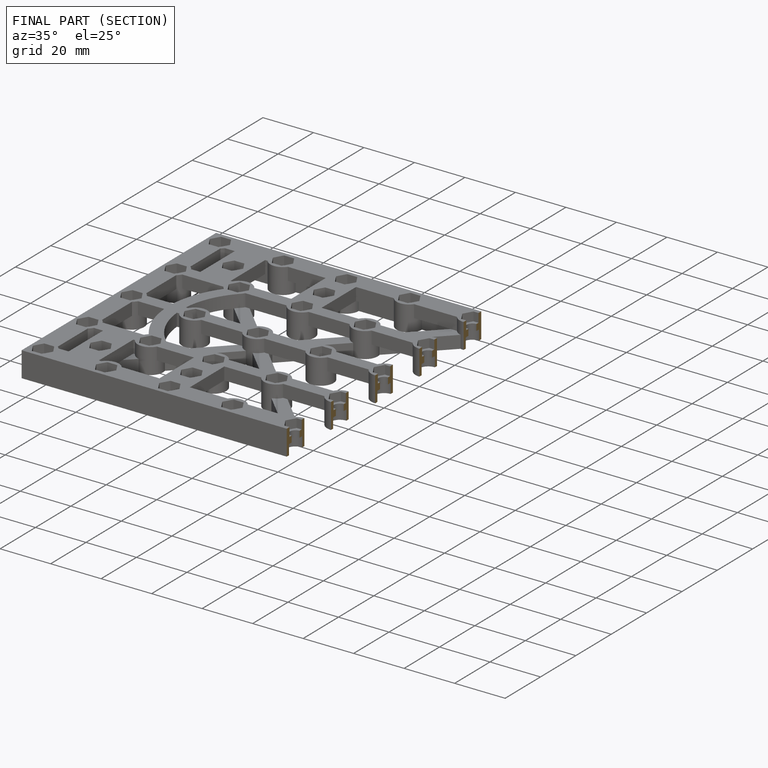
[diagram: finished part — half-section view (interior)]
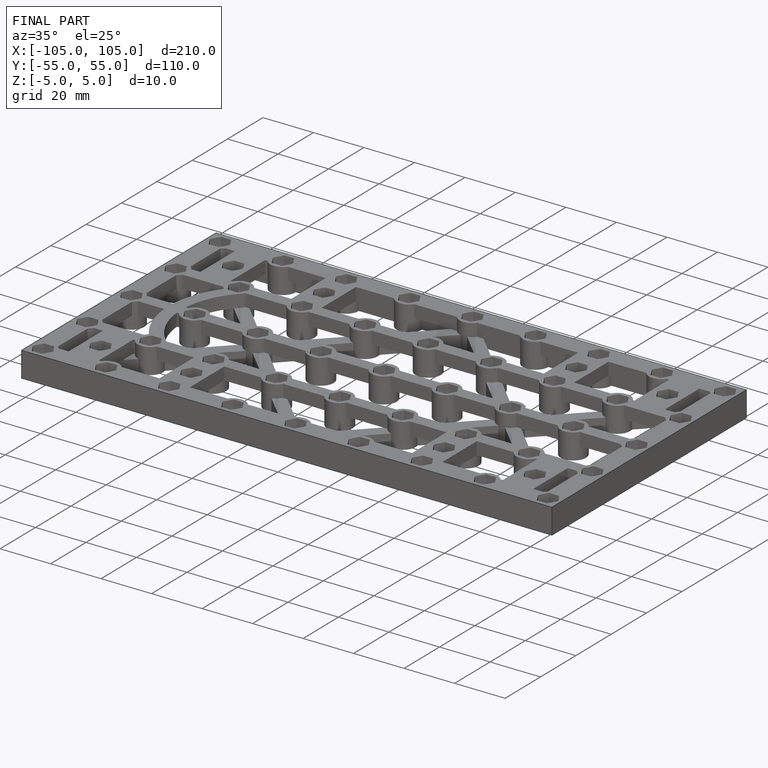
[diagram: finished part — iso view with bounding-box wireframe]
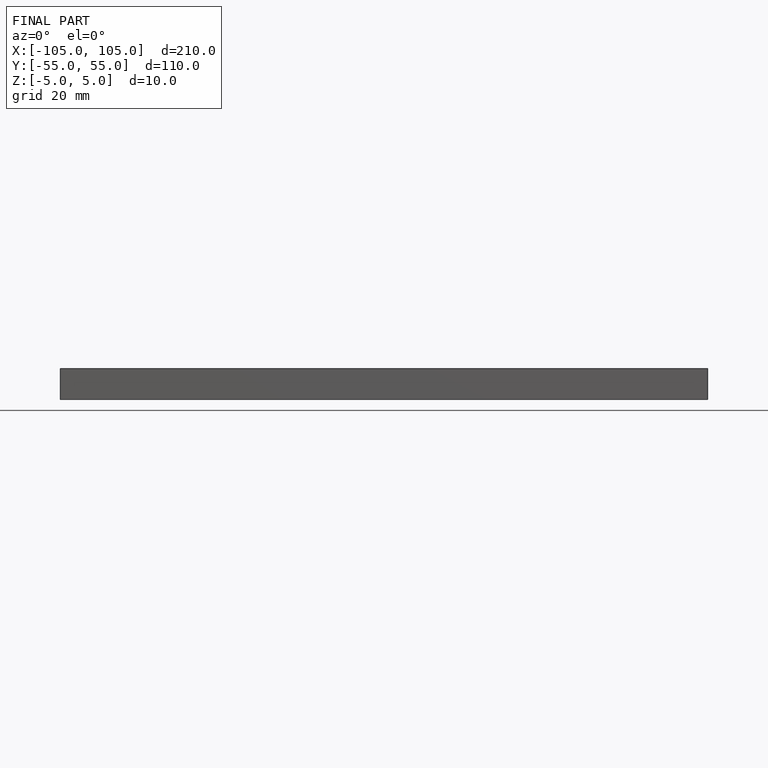
[diagram: finished part — front view with bounding-box wireframe]
